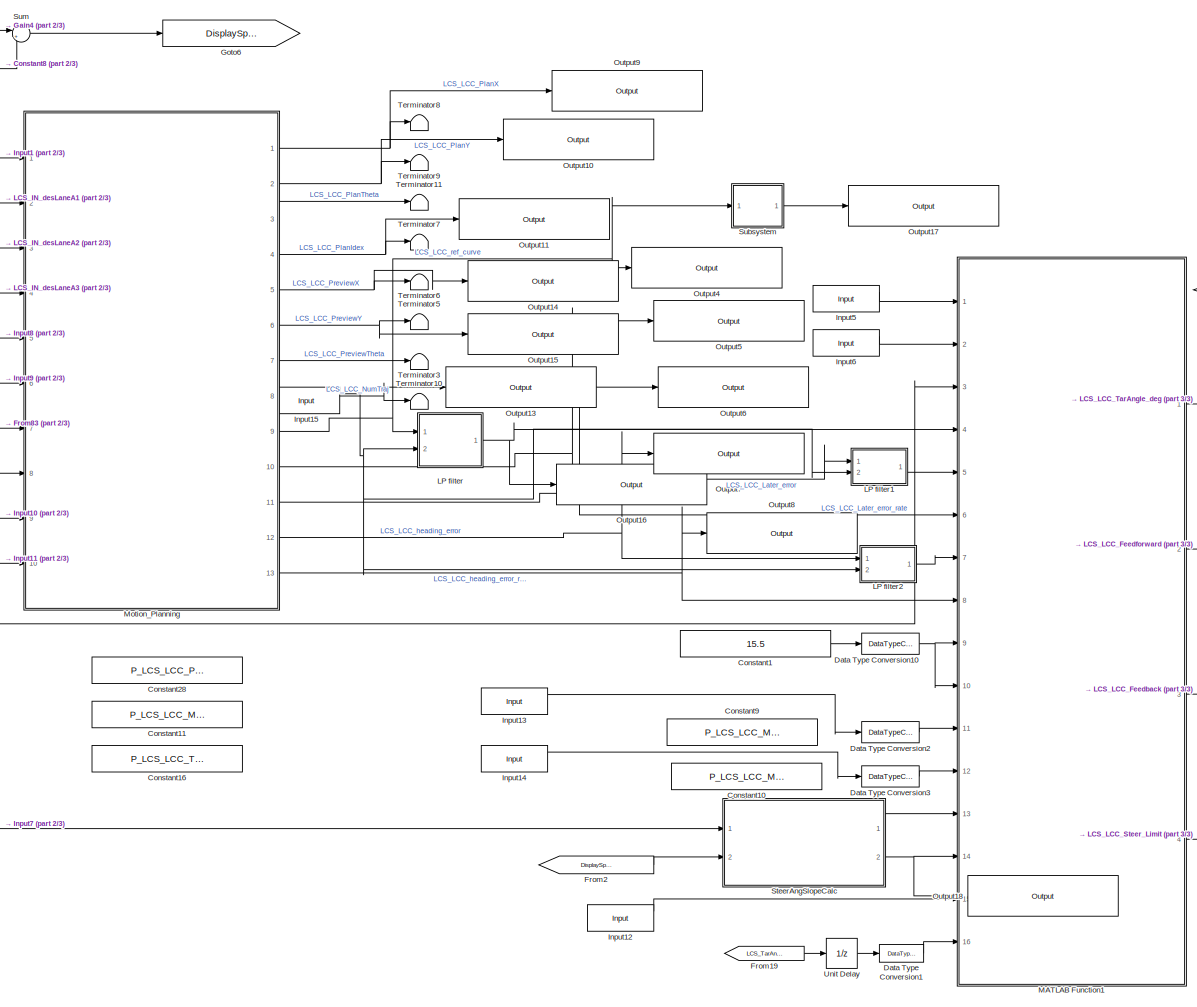
[diagram: root canvas - part 1/3, center side, full height]
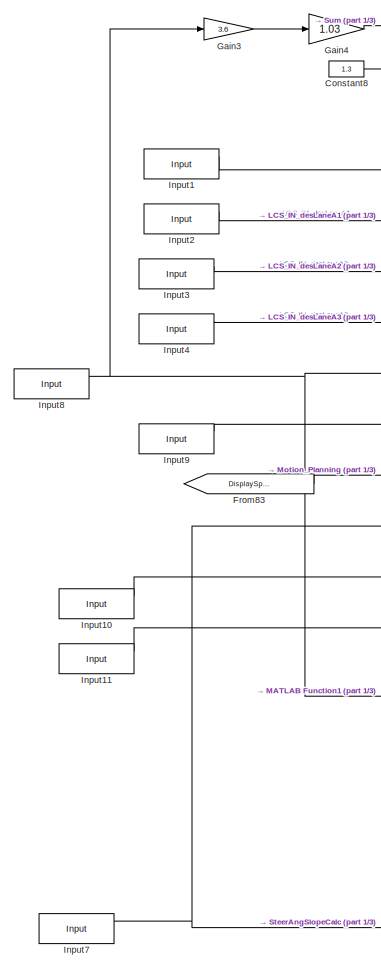
[diagram: root canvas - part 2/3, left side, full height]
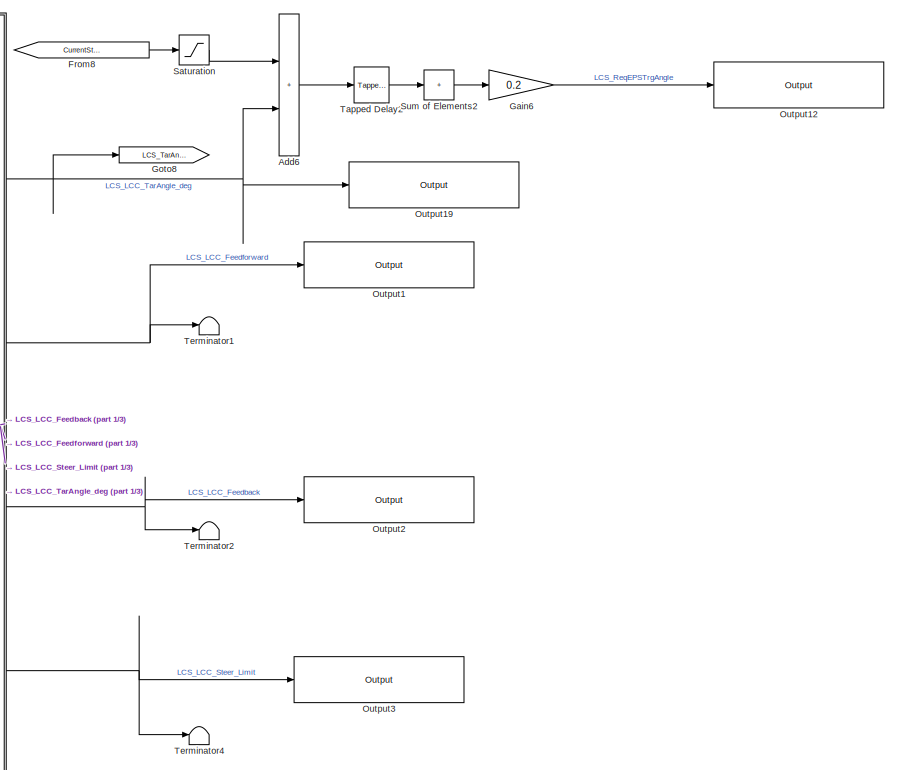
[diagram: root canvas - part 3/3, middle right region]
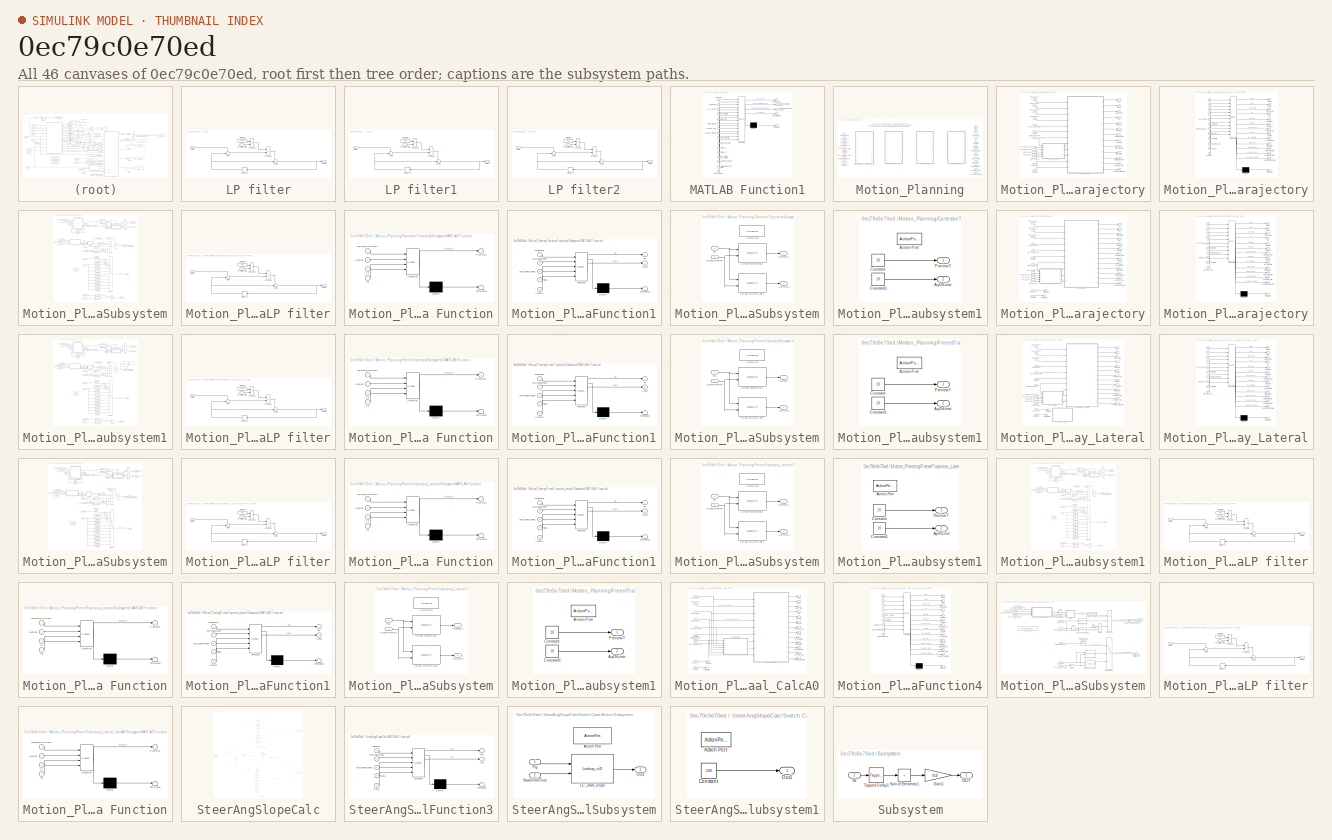
[diagram: thumbnail index - all 46 canvases of the model, root first then tree order]
MODEL slx_0ec79c0e70ed
KIND model
CONFIG AbsTol = auto
CONFIG EnableMultiTasking = off
CONFIG FixedStep = 0.01
CONFIG MaxStep = auto
CONFIG MinStep = auto
CONFIG RelTol = 1e-3
CONFIG SampleTimeConstraint = Unconstrained
CONFIG SolverName = FixedStepDiscrete
CONFIG StartTime = 0.0
CONFIG StopTime = inf
BLOCK [Sum] Add6
  AccumDataTypeStr = single
  IconShape = rectangular
  Ports = [2, 1]
BLOCK [Constant] Constant1
  OutDataTypeStr = single
  Value = 15.5
BLOCK [Constant] Constant10
  Commented = on
  OutDataTypeStr = single
  Value = P_LCS_LCC_Matrix_q2_st
BLOCK [Constant] Constant11
  Commented = on
  OutDataTypeStr = single
  Value = P_LCS_LCC_Max_Lateral_Acc_ms2
BLOCK [Constant] Constant16
  Commented = on
  OutDataTypeStr = single
  Value = P_LCS_LCC_TarSteerAngleSlope
BLOCK [Constant] Constant28
  Commented = on
  OutDataTypeStr = single
  Value = P_LCS_LCC_PreView_s
BLOCK [Constant] Constant8
  OutDataTypeStr = single
  Value = 1.3
BLOCK [Constant] Constant9
  Commented = on
  OutDataTypeStr = single
  Value = P_LCS_LCC_Matrix_q1_st
BLOCK [DataTypeConversion] Data Type Conversion1
  RndMeth = Floor
  SaturateOnIntegerOverflow = off
BLOCK [DataTypeConversion] Data Type Conversion10
  OutDataTypeStr = single
  RndMeth = Floor
  SaturateOnIntegerOverflow = off
BLOCK [DataTypeConversion] Data Type Conversion2
  OutDataTypeStr = single
  RndMeth = Floor
  SaturateOnIntegerOverflow = off
BLOCK [DataTypeConversion] Data Type Conversion3
  OutDataTypeStr = single
  RndMeth = Floor
  SaturateOnIntegerOverflow = off
BLOCK [From] From19
  GotoTag = LCS_TarAngle
BLOCK [From] From2
  GotoTag = DisplaySpd_kph
BLOCK [From] From8
  GotoTag = CurrentSteerAngleOffset
BLOCK [From] From83
  GotoTag = DisplaySpd_kph
BLOCK [Gain] Gain3
  Gain = 3.6
BLOCK [Gain] Gain4
  Gain = 1.03
BLOCK [Gain] Gain6
  Gain = 0.2
BLOCK [Goto] Goto6
  GotoTag = DisplaySpd_kph
BLOCK [Goto] Goto8
  GotoTag = LCS_TarAngle
BLOCK [Reference] Input1  REF=canapelib/CANape I//O/Input
  AttributesFormatString = %<envName>
  Ports = [0, 3]
  SourceBlock = canapelib/CANape I//O/Input
  SourceProductName = Vector CANape/vSignalyzer Target
  SourceType = Input Module
BLOCK [Reference] Input10  REF=canapelib/CANape I//O/Input
  AttributesFormatString = %<envName>
  Ports = [0, 3]
  SourceBlock = canapelib/CANape I//O/Input
  SourceProductName = Vector CANape/vSignalyzer Target
  SourceType = Input Module
BLOCK [Reference] Input11  REF=canapelib/CANape I//O/Input
  AttributesFormatString = %<envName>
  Ports = [0, 3]
  SourceBlock = canapelib/CANape I//O/Input
  SourceProductName = Vector CANape/vSignalyzer Target
  SourceType = Input Module
BLOCK [Reference] Input12  REF=canapelib/CANape I//O/Input
  AttributesFormatString = %<envName>
  Ports = [0, 3]
  SourceBlock = canapelib/CANape I//O/Input
  SourceProductName = Vector CANape/vSignalyzer Target
  SourceType = Input Module
BLOCK [Reference] Input13  REF=canapelib/CANape I//O/Input
  AttributesFormatString = %<envName>
  Ports = [0, 3]
  SourceBlock = canapelib/CANape I//O/Input
  SourceProductName = Vector CANape/vSignalyzer Target
  SourceType = Input Module
BLOCK [Reference] Input14  REF=canapelib/CANape I//O/Input
  AttributesFormatString = %<envName>
  Ports = [0, 3]
  SourceBlock = canapelib/CANape I//O/Input
  SourceProductName = Vector CANape/vSignalyzer Target
  SourceType = Input Module
BLOCK [Reference] Input15  REF=canapelib/CANape I//O/Input
  AttributesFormatString = %<envName>
  Ports = [0, 3]
  SourceBlock = canapelib/CANape I//O/Input
  SourceProductName = Vector CANape/vSignalyzer Target
  SourceType = Input Module
BLOCK [Reference] Input2  REF=canapelib/CANape I//O/Input
  AttributesFormatString = %<envName>
  Ports = [0, 3]
  SourceBlock = canapelib/CANape I//O/Input
  SourceProductName = Vector CANape/vSignalyzer Target
  SourceType = Input Module
BLOCK [Reference] Input3  REF=canapelib/CANape I//O/Input
  AttributesFormatString = %<envName>
  Ports = [0, 3]
  SourceBlock = canapelib/CANape I//O/Input
  SourceProductName = Vector CANape/vSignalyzer Target
  SourceType = Input Module
BLOCK [Reference] Input4  REF=canapelib/CANape I//O/Input
  AttributesFormatString = %<envName>
  Ports = [0, 3]
  SourceBlock = canapelib/CANape I//O/Input
  SourceProductName = Vector CANape/vSignalyzer Target
  SourceType = Input Module
BLOCK [Reference] Input5  REF=canapelib/CANape I//O/Input
  AttributesFormatString = %<envName>
  Ports = [0, 3]
  SourceBlock = canapelib/CANape I//O/Input
  SourceProductName = Vector CANape/vSignalyzer Target
  SourceType = Input Module
BLOCK [Reference] Input6  REF=canapelib/CANape I//O/Input
  AttributesFormatString = %<envName>
  Ports = [0, 3]
  SourceBlock = canapelib/CANape I//O/Input
  SourceProductName = Vector CANape/vSignalyzer Target
  SourceType = Input Module
BLOCK [Reference] Input7  REF=canapelib/CANape I//O/Input
  AttributesFormatString = %<envName>
  Ports = [0, 3]
  SourceBlock = canapelib/CANape I//O/Input
  SourceProductName = Vector CANape/vSignalyzer Target
  SourceType = Input Module
BLOCK [Reference] Input8  REF=canapelib/CANape I//O/Input
  AttributesFormatString = %<envName>
  Ports = [0, 3]
  SourceBlock = canapelib/CANape I//O/Input
  SourceProductName = Vector CANape/vSignalyzer Target
  SourceType = Input Module
BLOCK [Reference] Input9  REF=canapelib/CANape I//O/Input
  AttributesFormatString = %<envName>
  Ports = [0, 3]
  SourceBlock = canapelib/CANape I//O/Input
  SourceProductName = Vector CANape/vSignalyzer Target
  SourceType = Input Module
BLOCK [SubSystem] LP filter
  Ports = [2, 1]
  RequestExecContextInheritance = off
BLOCK [Memory] LP filter/Memory2
  InheritSampleTime = on
  NameLocation = top
BLOCK [Product] LP filter/Product1
  Ports = [2, 1]
  RndMeth = Zero
BLOCK [Product] LP filter/Product4
  Inputs = */
  Ports = [2, 1]
  RndMeth = Zero
BLOCK [Inport] LP filter/Raw
BLOCK [Sum] LP filter/Sum4
  Inputs = +-|
  Ports = [2, 1]
BLOCK [Sum] LP filter/Sum5
  Inputs = ++|
  Ports = [2, 1]
BLOCK [Inport] LP filter/TorqFilterTime
  Port = 2
BLOCK [Constant] LP filter/Weight//N3
  OutDataTypeStr = single
  Value = 0.02
BLOCK [Outport] LP filter/output
BLOCK [SubSystem] LP filter1
  Ports = [2, 1]
  RequestExecContextInheritance = off
BLOCK [Memory] LP filter1/Memory2
  InheritSampleTime = on
  NameLocation = top
BLOCK [Product] LP filter1/Product1
  Ports = [2, 1]
  RndMeth = Zero
BLOCK [Product] LP filter1/Product4
  Inputs = */
  Ports = [2, 1]
  RndMeth = Zero
BLOCK [Inport] LP filter1/Raw
BLOCK [Sum] LP filter1/Sum4
  Inputs = +-|
  Ports = [2, 1]
BLOCK [Sum] LP filter1/Sum5
  Inputs = ++|
  Ports = [2, 1]
BLOCK [Inport] LP filter1/TorqFilterTime
  Port = 2
BLOCK [Constant] LP filter1/Weight//N3
  OutDataTypeStr = single
  Value = 0.02
BLOCK [Outport] LP filter1/output
BLOCK [SubSystem] LP filter2
  Ports = [2, 1]
  RequestExecContextInheritance = off
BLOCK [Memory] LP filter2/Memory2
  InheritSampleTime = on
  NameLocation = top
BLOCK [Product] LP filter2/Product1
  Ports = [2, 1]
  RndMeth = Zero
BLOCK [Product] LP filter2/Product4
  Inputs = */
  Ports = [2, 1]
  RndMeth = Zero
BLOCK [Inport] LP filter2/Raw
BLOCK [Sum] LP filter2/Sum4
  Inputs = +-|
  Ports = [2, 1]
BLOCK [Sum] LP filter2/Sum5
  Inputs = ++|
  Ports = [2, 1]
BLOCK [Inport] LP filter2/TorqFilterTime
  Port = 2
BLOCK [Constant] LP filter2/Weight//N3
  OutDataTypeStr = single
  Value = 0.02
BLOCK [Outport] LP filter2/output
BLOCK [SubSystem] MATLAB Function1
  ErrorFcn = Stateflow.Translate.translate
  PermitHierarchicalResolution = ExplicitOnly
  Ports = [16, 4]
  RequestExecContextInheritance = off
  SFBlockType = MATLAB Function
  TreatAsAtomicUnit = on
BLOCK [Demux] MATLAB Function1/ Demux 
  Outputs = 1
  Ports = [1, 1]
BLOCK [S-Function] MATLAB Function1/ SFunction 
  EnableBusSupport = on
  FunctionName = sf_sfun
  PortCounts = [16 5]
  Ports = [16, 5]
  SFcnIsStateOwnerBlock = off
  SFunctionDeploymentMode = off
  Tag = Stateflow S-Function 10
BLOCK [Terminator] MATLAB Function1/ Terminator 
BLOCK [Inport] MATLAB Function1/CurrentSteerAngleOffset
  Port = 15
BLOCK [Inport] MATLAB Function1/Left_steer_ratio
  Port = 9
BLOCK [Inport] MATLAB Function1/LineValid
BLOCK [Inport] MATLAB Function1/Matrix_q1
  Port = 11
BLOCK [Inport] MATLAB Function1/Matrix_q3
  Port = 12
BLOCK [Inport] MATLAB Function1/Max_lateral_acceleration
  Port = 13
BLOCK [Inport] MATLAB Function1/Right_steer_ratio
  Port = 10
BLOCK [Inport] MATLAB Function1/SteerAngle
  Port = 2
BLOCK [Inport] MATLAB Function1/TarSteerAngleSlope
  Port = 14
BLOCK [Inport] MATLAB Function1/Veh_Speed
  Port = 3
BLOCK [Inport] MATLAB Function1/heading_error
  Port = 7
BLOCK [Inport] MATLAB Function1/heading_error_rate
  Port = 8
BLOCK [Inport] MATLAB Function1/lateral_error
  Port = 5
BLOCK [Inport] MATLAB Function1/lateral_error_rate
  Port = 6
BLOCK [Inport] MATLAB Function1/ref_curvature
  Port = 4
BLOCK [Outport] MATLAB Function1/steer_angle
BLOCK [Inport] MATLAB Function1/steer_angleK1
  Port = 16
BLOCK [Outport] MATLAB Function1/steer_feedbackward_temp
  Port = 3
BLOCK [Outport] MATLAB Function1/steer_feedforward_temp
  Port = 2
BLOCK [Outport] MATLAB Function1/steer_limit_temp
  Port = 4
BLOCK [SubSystem] Motion_Planning
  LabelModeActiveChoice = Choice_3
  Ports = [10, 13]
  RequestExecContextInheritance = off
  Variant = on
  VariantControlMode = label
BLOCK [SubSystem] Motion_Planning/CartesianTrajectory
  Ports = [10, 13]
  RequestExecContextInheritance = off
  VariantControl = Choice_4
BLOCK [SubSystem] Motion_Planning/CartesianTrajectory/FrenetTrajectory
  ErrorFcn = Stateflow.Translate.translate
  PermitHierarchicalResolution = ExplicitOnly
  Ports = [12, 13]
  RequestExecContextInheritance = off
  SFBlockType = MATLAB Function
  TreatAsAtomicUnit = on
BLOCK [Demux] Motion_Planning/CartesianTrajectory/FrenetTrajectory/ Demux 
  Outputs = 1
  Ports = [1, 1]
BLOCK [S-Function] Motion_Planning/CartesianTrajectory/FrenetTrajectory/ SFunction 
  EnableBusSupport = on
  FunctionName = sf_sfun
  PortCounts = [12 14]
  Ports = [12, 14]
  SFcnIsStateOwnerBlock = off
  SFunctionDeploymentMode = off
  Tag = Stateflow S-Function 13
BLOCK [Terminator] Motion_Planning/CartesianTrajectory/FrenetTrajectory/ Terminator 
BLOCK [Inport] Motion_Planning/CartesianTrajectory/FrenetTrajectory/A0
BLOCK [Inport] Motion_Planning/CartesianTrajectory/FrenetTrajectory/A1
  Port = 2
BLOCK [Inport] Motion_Planning/CartesianTrajectory/FrenetTrajectory/A2
  Port = 3
BLOCK [Inport] Motion_Planning/CartesianTrajectory/FrenetTrajectory/A3
  Port = 4
BLOCK [Inport] Motion_Planning/CartesianTrajectory/FrenetTrajectory/AyDtLimit
  Port = 9
BLOCK [Inport] Motion_Planning/CartesianTrajectory/FrenetTrajectory/Min_Plan_Dis
  Port = 10
BLOCK [Outport] Motion_Planning/CartesianTrajectory/FrenetTrajectory/PlanTheta
  Port = 3
BLOCK [Outport] Motion_Planning/CartesianTrajectory/FrenetTrajectory/PlanX
BLOCK [Outport] Motion_Planning/CartesianTrajectory/FrenetTrajectory/PlanY
  Port = 2
BLOCK [Inport] Motion_Planning/CartesianTrajectory/FrenetTrajectory/PreView_T
  Port = 8
BLOCK [Outport] Motion_Planning/CartesianTrajectory/FrenetTrajectory/PreviewTheta
  Port = 7
BLOCK [Outport] Motion_Planning/CartesianTrajectory/FrenetTrajectory/PreviewX
  Port = 5
BLOCK [Outport] Motion_Planning/CartesianTrajectory/FrenetTrajectory/PreviewY
  Port = 6
BLOCK [Inport] Motion_Planning/CartesianTrajectory/FrenetTrajectory/TarDangerlLevel
  Port = 7
BLOCK [Inport] Motion_Planning/CartesianTrajectory/FrenetTrajectory/Veh_Speed
  Port = 5
BLOCK [Inport] Motion_Planning/CartesianTrajectory/FrenetTrajectory/YawRate
  Port = 6
BLOCK [Inport] Motion_Planning/CartesianTrajectory/FrenetTrajectory/axEgo
  Port = 11
BLOCK [Outport] Motion_Planning/CartesianTrajectory/FrenetTrajectory/heading_error
  Port = 12
BLOCK [Outport] Motion_Planning/CartesianTrajectory/FrenetTrajectory/heading_error_rate
  Port = 13
BLOCK [Outport] Motion_Planning/CartesianTrajectory/FrenetTrajectory/idx
  Port = 4
BLOCK [Inport] Motion_Planning/CartesianTrajectory/FrenetTrajectory/kapEgo
  Port = 12
BLOCK [Outport] Motion_Planning/CartesianTrajectory/FrenetTrajectory/lateral_error
  Port = 10
BLOCK [Outport] Motion_Planning/CartesianTrajectory/FrenetTrajectory/lateral_error_rate
  Port = 11
BLOCK [Outport] Motion_Planning/CartesianTrajectory/FrenetTrajectory/numTraj
  Port = 8
BLOCK [Outport] Motion_Planning/CartesianTrajectory/FrenetTrajectory/ref_curvature
  Port = 9
BLOCK [Inport] Motion_Planning/CartesianTrajectory/Long_Acc
  Port = 9
BLOCK [Outport] Motion_Planning/CartesianTrajectory/PlanTheta
  Port = 3
BLOCK [Outport] Motion_Planning/CartesianTrajectory/PlanX
BLOCK [Outport] Motion_Planning/CartesianTrajectory/PlanY
  Port = 2
BLOCK [Outport] Motion_Planning/CartesianTrajectory/PreviewTheta
  Port = 7
BLOCK [Outport] Motion_Planning/CartesianTrajectory/PreviewX
  Port = 5
BLOCK [Outport] Motion_Planning/CartesianTrajectory/PreviewY
  Port = 6
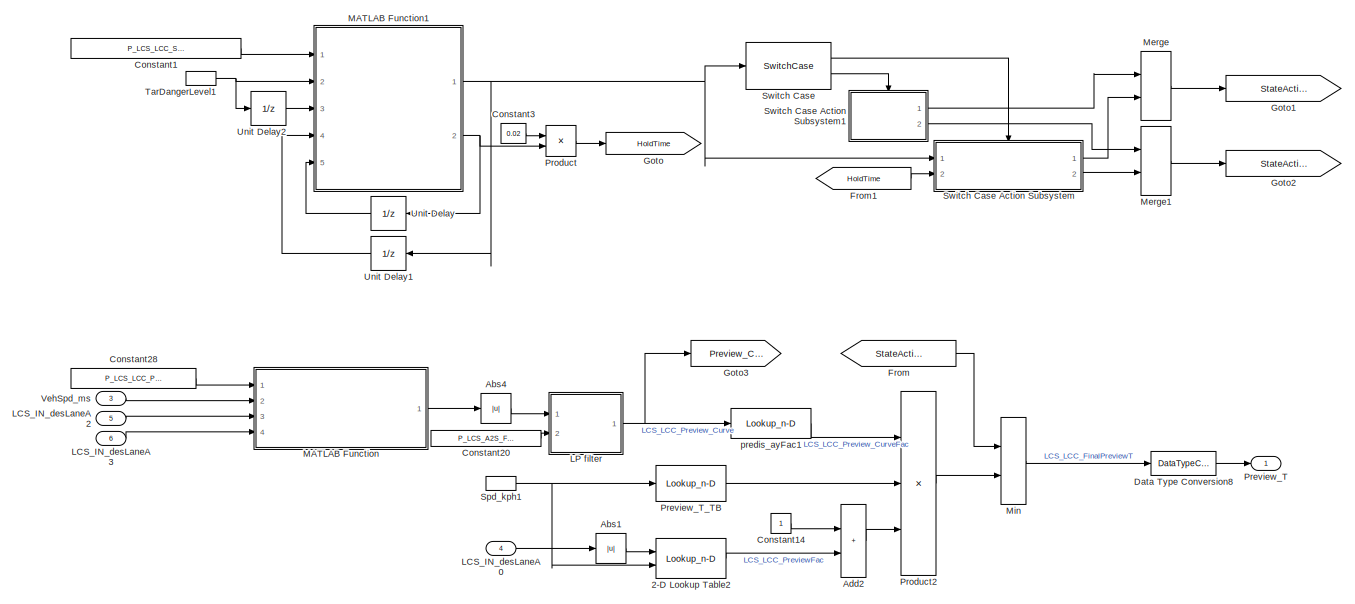
[diagram: Motion_Planning/CartesianTrajectory/Subsystem - part 1/2, full width, top band]
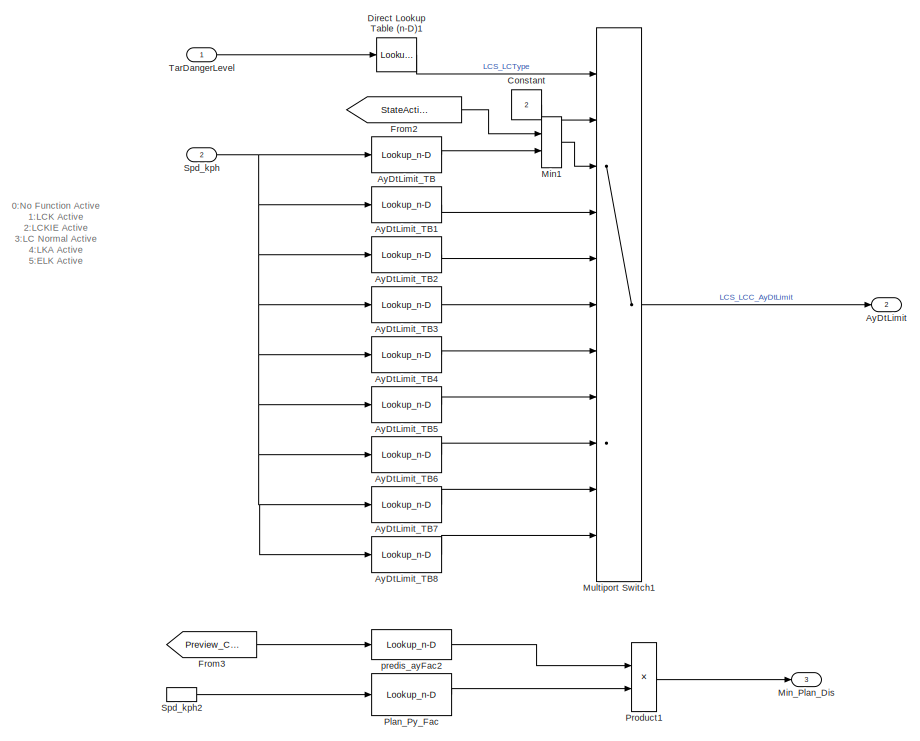
[diagram: Motion_Planning/CartesianTrajectory/Subsystem - part 2/2, bottom center region]
BLOCK [SubSystem] Motion_Planning/CartesianTrajectory/Subsystem
  Ports = [6, 3]
  RequestExecContextInheritance = off
BLOCK [Lookup_n-D] Motion_Planning/CartesianTrajectory/Subsystem/2-D Lookup Table2
  BreakpointsForDimension1 = P_LCS_A0_Dis_BP
  BreakpointsForDimension2 = P_LCS_preDis_spd
  ExtrapMethod = Clip
  InputPortMap = u0,u1
  InternalRulePriority = Speed
  Ports = [2, 1]
  RndMeth = Simplest
  Table = P_LCS_LCC_PreView_Fac
  UseLastTableValue = on
BLOCK [Abs] Motion_Planning/CartesianTrajectory/Subsystem/Abs1
  SaturateOnIntegerOverflow = off
BLOCK [Abs] Motion_Planning/CartesianTrajectory/Subsystem/Abs4
  SaturateOnIntegerOverflow = off
BLOCK [Sum] Motion_Planning/CartesianTrajectory/Subsystem/Add2
  IconShape = rectangular
  Ports = [2, 1]
BLOCK [Outport] Motion_Planning/CartesianTrajectory/Subsystem/AyDtLimit
  OutDataTypeStr = single
  Port = 2
BLOCK [Lookup_n-D] Motion_Planning/CartesianTrajectory/Subsystem/AyDtLimit_TB
  BreakpointsForDimension1 = P_LCS_preDis_spd
  ExtrapMethod = Clip
  InputPortMap = u0
  InternalRulePriority = Speed
  NumberOfTableDimensions = 1
  Ports = [1, 1]
  RndMeth = Simplest
  Table = P_LCS_LCC_LCK_AyDtLimit_TBL
  UseLastTableValue = on
BLOCK [Lookup_n-D] Motion_Planning/CartesianTrajectory/Subsystem/AyDtLimit_TB1
  BreakpointsForDimension1 = P_LCS_preDis_spd
  ExtrapMethod = Clip
  InputPortMap = u0
  InternalRulePriority = Speed
  NumberOfTableDimensions = 1
  Ports = [1, 1]
  RndMeth = Simplest
  Table = P_LCS_LCC_LCK_AyDtLimit_TBL
  UseLastTableValue = on
BLOCK [Lookup_n-D] Motion_Planning/CartesianTrajectory/Subsystem/AyDtLimit_TB2
  BreakpointsForDimension1 = P_LCS_preDis_spd
  ExtrapMethod = Clip
  InputPortMap = u0
  InternalRulePriority = Speed
  NumberOfTableDimensions = 1
  Ports = [1, 1]
  RndMeth = Simplest
  Table = P_LCS_LCC_LC_Normal_AyDtLimit_TBL
  UseLastTableValue = on
BLOCK [Lookup_n-D] Motion_Planning/CartesianTrajectory/Subsystem/AyDtLimit_TB3
  BreakpointsForDimension1 = P_LCS_preDis_spd
  ExtrapMethod = Clip
  InputPortMap = u0
  InternalRulePriority = Speed
  NumberOfTableDimensions = 1
  Ports = [1, 1]
  RndMeth = Simplest
  Table = P_LCS_LCC_LKA_AyDtLimit_TBL
  UseLastTableValue = on
BLOCK [Lookup_n-D] Motion_Planning/CartesianTrajectory/Subsystem/AyDtLimit_TB4
  BreakpointsForDimension1 = P_LCS_preDis_spd
  ExtrapMethod = Clip
  InputPortMap = u0
  InternalRulePriority = Speed
  NumberOfTableDimensions = 1
  Ports = [1, 1]
  RndMeth = Simplest
  Table = P_LCS_LCC_ELK_AyDtLimit_TBL
  UseLastTableValue = on
BLOCK [Lookup_n-D] Motion_Planning/CartesianTrajectory/Subsystem/AyDtLimit_TB5
  BreakpointsForDimension1 = P_LCS_preDis_spd
  ExtrapMethod = Clip
  InputPortMap = u0
  InternalRulePriority = Speed
  NumberOfTableDimensions = 1
  Ports = [1, 1]
  RndMeth = Simplest
  Table = P_LCS_LCC_ESS_AyDtLimit_TBL
  UseLastTableValue = on
BLOCK [Lookup_n-D] Motion_Planning/CartesianTrajectory/Subsystem/AyDtLimit_TB6
  BreakpointsForDimension1 = P_LCS_preDis_spd
  ExtrapMethod = Clip
  InputPortMap = u0
  InternalRulePriority = Speed
  NumberOfTableDimensions = 1
  Ports = [1, 1]
  RndMeth = Simplest
  Table = P_LCS_LCC_Eco_AyDtLimit_TBL
  UseLastTableValue = on
BLOCK [Lookup_n-D] Motion_Planning/CartesianTrajectory/Subsystem/AyDtLimit_TB7
  BreakpointsForDimension1 = P_LCS_preDis_spd
  ExtrapMethod = Clip
  InputPortMap = u0
  InternalRulePriority = Speed
  NumberOfTableDimensions = 1
  Ports = [1, 1]
  RndMeth = Simplest
  Table = P_LCS_LCC_Sport_AyDtLimit_TBL
  UseLastTableValue = on
BLOCK [Lookup_n-D] Motion_Planning/CartesianTrajectory/Subsystem/AyDtLimit_TB8
  BreakpointsForDimension1 = P_LCS_preDis_spd
  ExtrapMethod = Clip
  InputPortMap = u0
  InternalRulePriority = Speed
  NumberOfTableDimensions = 1
  Ports = [1, 1]
  RndMeth = Simplest
  Table = P_LCS_LCC_LC_AyDtLimit_TBL
  UseLastTableValue = on
BLOCK [Constant] Motion_Planning/CartesianTrajectory/Subsystem/Constant
  OutDataTypeStr = single
  Value = 2
BLOCK [Constant] Motion_Planning/CartesianTrajectory/Subsystem/Constant1
  OutDataTypeStr = uint16
  Value = P_LCS_LCC_StateActiveDelaytime
BLOCK [Constant] Motion_Planning/CartesianTrajectory/Subsystem/Constant14
  OutDataTypeStr = single
BLOCK [Constant] Motion_Planning/CartesianTrajectory/Subsystem/Constant20
  Value = P_LCS_A2S_FliterTime
BLOCK [Constant] Motion_Planning/CartesianTrajectory/Subsystem/Constant28
  OutDataTypeStr = single
  Value = P_LCS_LCC_PreView_s
BLOCK [Constant] Motion_Planning/CartesianTrajectory/Subsystem/Constant3
  Value = 0.02
BLOCK [DataTypeConversion] Motion_Planning/CartesianTrajectory/Subsystem/Data Type Conversion8
  OutDataTypeStr = single
  RndMeth = Floor
  SaturateOnIntegerOverflow = off
BLOCK [LookupNDDirect] Motion_Planning/CartesianTrajectory/Subsystem/Direct Lookup Table (n-D)1
  NumberOfTableDimensions = 1
  Ports = [1, 1]
  Table = [0 1 2 3 4 5 6 7 8 9]
  TableDataTypeStr = uint8
BLOCK [From] Motion_Planning/CartesianTrajectory/Subsystem/From
  GotoTag = StateActive_PreviewT
BLOCK [From] Motion_Planning/CartesianTrajectory/Subsystem/From1
  GotoTag = HoldTime
BLOCK [From] Motion_Planning/CartesianTrajectory/Subsystem/From2
  GotoTag = StateActive_AyDtLimit
BLOCK [From] Motion_Planning/CartesianTrajectory/Subsystem/From3
  GotoTag = Preview_Curve
BLOCK [Goto] Motion_Planning/CartesianTrajectory/Subsystem/Goto
  GotoTag = HoldTime
BLOCK [Goto] Motion_Planning/CartesianTrajectory/Subsystem/Goto1
  GotoTag = StateActive_PreviewT
BLOCK [Goto] Motion_Planning/CartesianTrajectory/Subsystem/Goto2
  GotoTag = StateActive_AyDtLimit
BLOCK [Goto] Motion_Planning/CartesianTrajectory/Subsystem/Goto3
  GotoTag = Preview_Curve
BLOCK [Inport] Motion_Planning/CartesianTrajectory/Subsystem/LCS_IN_desLaneA0
  Port = 4
BLOCK [Inport] Motion_Planning/CartesianTrajectory/Subsystem/LCS_IN_desLaneA2
  Port = 5
BLOCK [Inport] Motion_Planning/CartesianTrajectory/Subsystem/LCS_IN_desLaneA3
  Port = 6
BLOCK [SubSystem] Motion_Planning/CartesianTrajectory/Subsystem/LP filter
  Ports = [2, 1]
  RequestExecContextInheritance = off
BLOCK [Memory] Motion_Planning/CartesianTrajectory/Subsystem/LP filter/Memory2
  InheritSampleTime = on
  NameLocation = top
BLOCK [Product] Motion_Planning/CartesianTrajectory/Subsystem/LP filter/Product1
  Ports = [2, 1]
  RndMeth = Zero
BLOCK [Product] Motion_Planning/CartesianTrajectory/Subsystem/LP filter/Product4
  Inputs = */
  Ports = [2, 1]
  RndMeth = Zero
BLOCK [Inport] Motion_Planning/CartesianTrajectory/Subsystem/LP filter/Raw
BLOCK [Sum] Motion_Planning/CartesianTrajectory/Subsystem/LP filter/Sum4
  Inputs = +-|
  Ports = [2, 1]
BLOCK [Sum] Motion_Planning/CartesianTrajectory/Subsystem/LP filter/Sum5
  Inputs = ++|
  Ports = [2, 1]
BLOCK [Inport] Motion_Planning/CartesianTrajectory/Subsystem/LP filter/TorqFilterTime
  Port = 2
BLOCK [Constant] Motion_Planning/CartesianTrajectory/Subsystem/LP filter/Weight//N3
  OutDataTypeStr = single
  Value = 0.02
BLOCK [Outport] Motion_Planning/CartesianTrajectory/Subsystem/LP filter/output
BLOCK [SubSystem] Motion_Planning/CartesianTrajectory/Subsystem/MATLAB Function
  ErrorFcn = Stateflow.Translate.translate
  PermitHierarchicalResolution = ExplicitOnly
  Ports = [4, 1]
  RequestExecContextInheritance = off
  SFBlockType = MATLAB Function
  TreatAsAtomicUnit = on
BLOCK [Demux] Motion_Planning/CartesianTrajectory/Subsystem/MATLAB Function/ Demux 
  Outputs = 1
  Ports = [1, 1]
BLOCK [S-Function] Motion_Planning/CartesianTrajectory/Subsystem/MATLAB Function/ SFunction 
  EnableBusSupport = on
  FunctionName = sf_sfun
  PortCounts = [4 2]
  Ports = [4, 2]
  SFcnIsStateOwnerBlock = off
  SFunctionDeploymentMode = off
  Tag = Stateflow S-Function 15
BLOCK [Terminator] Motion_Planning/CartesianTrajectory/Subsystem/MATLAB Function/ Terminator 
BLOCK [Inport] Motion_Planning/CartesianTrajectory/Subsystem/MATLAB Function/C2
  Port = 3
BLOCK [Inport] Motion_Planning/CartesianTrajectory/Subsystem/MATLAB Function/C3
  Port = 4
BLOCK [Inport] Motion_Planning/CartesianTrajectory/Subsystem/MATLAB Function/Forward_PreViewT
BLOCK [Outport] Motion_Planning/CartesianTrajectory/Subsystem/MATLAB Function/PreCurve
BLOCK [Inport] Motion_Planning/CartesianTrajectory/Subsystem/MATLAB Function/VehSpd
  Port = 2
BLOCK [SubSystem] Motion_Planning/CartesianTrajectory/Subsystem/MATLAB Function1
  ErrorFcn = Stateflow.Translate.translate
  PermitHierarchicalResolution = ExplicitOnly
  Ports = [5, 2]
  RequestExecContextInheritance = off
  SFBlockType = MATLAB Function
  TreatAsAtomicUnit = on
BLOCK [Demux] Motion_Planning/CartesianTrajectory/Subsystem/MATLAB Function1/ Demux 
  Outputs = 1
  Ports = [1, 1]
BLOCK [S-Function] Motion_Planning/CartesianTrajectory/Subsystem/MATLAB Function1/ SFunction 
  EnableBusSupport = on
  FunctionName = sf_sfun
  PortCounts = [5 3]
  Ports = [5, 3]
  SFcnIsStateOwnerBlock = off
  SFunctionDeploymentMode = off
  Tag = Stateflow S-Function 16
BLOCK [Terminator] Motion_Planning/CartesianTrajectory/Subsystem/MATLAB Function1/ Terminator 
BLOCK [Outport] Motion_Planning/CartesianTrajectory/Subsystem/MATLAB Function1/Count
  Port = 2
BLOCK [Inport] Motion_Planning/CartesianTrajectory/Subsystem/MATLAB Function1/CountK1
  Port = 5
BLOCK [Inport] Motion_Planning/CartesianTrajectory/Subsystem/MATLAB Function1/Delaytime
BLOCK [Outport] Motion_Planning/CartesianTrajectory/Subsystem/MATLAB Function1/Flg
BLOCK [Inport] Motion_Planning/CartesianTrajectory/Subsystem/MATLAB Function1/FlgK1
  Port = 4
BLOCK [Inport] Motion_Planning/CartesianTrajectory/Subsystem/MATLAB Function1/TarDangerLevel
  Port = 2
BLOCK [Inport] Motion_Planning/CartesianTrajectory/Subsystem/MATLAB Function1/TarDangerLevelK1
  Port = 3
BLOCK [Merge] Motion_Planning/CartesianTrajectory/Subsystem/Merge
  Ports = [2, 1]
BLOCK [Merge] Motion_Planning/CartesianTrajectory/Subsystem/Merge1
  Ports = [2, 1]
BLOCK [MinMax] Motion_Planning/CartesianTrajectory/Subsystem/Min
  Inputs = 2
  Ports = [2, 1]
BLOCK [MinMax] Motion_Planning/CartesianTrajectory/Subsystem/Min1
  Inputs = 2
  Ports = [2, 1]
BLOCK [Outport] Motion_Planning/CartesianTrajectory/Subsystem/Min_Plan_Dis
  OutDataTypeStr = single
  Port = 3
BLOCK [MultiPortSwitch] Motion_Planning/CartesianTrajectory/Subsystem/Multiport Switch1
  DataPortOrder = Zero-based contiguous
  InputSameDT = off
  Inputs = 10
  Ports = [11, 1]
  SaturateOnIntegerOverflow = off
  zeroidx = on
BLOCK [Lookup_n-D] Motion_Planning/CartesianTrajectory/Subsystem/Plan_Py_Fac
  BreakpointsForDimension1 = P_LCS_DeltaEps_SpdBp
  ExtrapMethod = Clip
  InputPortMap = u0
  InternalRulePriority = Speed
  NumberOfTableDimensions = 1
  Ports = [1, 1]
  RndMeth = Simplest
  Table = P_LCS_LCC_Min_Plan_Dis
  UseLastTableValue = on
BLOCK [Outport] Motion_Planning/CartesianTrajectory/Subsystem/Preview_T
  OutDataTypeStr = single
BLOCK [Lookup_n-D] Motion_Planning/CartesianTrajectory/Subsystem/Preview_T_TB
  BreakpointsForDimension1 = P_LCS_preDis_spd
  ExtrapMethod = Clip
  InputPortMap = u0
  InternalRulePriority = Speed
  NumberOfTableDimensions = 1
  Ports = [1, 1]
  RndMeth = Simplest
  Table = P_LCS_LCC_PreViewT
  UseLastTableValue = on
BLOCK [Product] Motion_Planning/CartesianTrajectory/Subsystem/Product
  Ports = [2, 1]
BLOCK [Product] Motion_Planning/CartesianTrajectory/Subsystem/Product1
  Ports = [2, 1]
BLOCK [Product] Motion_Planning/CartesianTrajectory/Subsystem/Product2
  Inputs = 3
  Ports = [3, 1]
BLOCK [Inport] Motion_Planning/CartesianTrajectory/Subsystem/Spd_kph
  Port = 2
BLOCK [InportShadow] Motion_Planning/CartesianTrajectory/Subsystem/Spd_kph1
  Port = 2
BLOCK [InportShadow] Motion_Planning/CartesianTrajectory/Subsystem/Spd_kph2
  Port = 2
BLOCK [SwitchCase] Motion_Planning/CartesianTrajectory/Subsystem/Switch Case
  CaseConditions = {[1]}
  Ports = [1, 2]
BLOCK [SubSystem] Motion_Planning/CartesianTrajectory/Subsystem/Switch Case Action Subsystem
  Ports = [2, 2, 0, 0, 0, 0, 0, 1]
  RequestExecContextInheritance = off
  TreatAsAtomicUnit = on
BLOCK [ActionPort] Motion_Planning/CartesianTrajectory/Subsystem/Switch Case Action Subsystem/Action Port
  ActionPortLabel = case [ 1 ]:
BLOCK [Lookup_n-D] Motion_Planning/CartesianTrajectory/Subsystem/Switch Case Action Subsystem/ActiveAyDtLimit_TBL
  BreakpointsForDimension1 = P_LCS_StateActiveFlg_BP
  BreakpointsForDimension2 = P_LCS_StateActive_HoldTime_BP
  ExtrapMethod = Clip
  InputPortMap = u0,u1
  InputSameDT = off
  InternalRulePriority = Speed
  OutDataTypeStr = single
  Ports = [2, 1]
  RndMeth = Simplest
  Table = P_LCS_LCC_StateActiv_AyDtLimit
  UseLastTableValue = on
BLOCK [Lookup_n-D] Motion_Planning/CartesianTrajectory/Subsystem/Switch Case Action Subsystem/ActivePreviewT_TBL
  BreakpointsForDimension1 = P_LCS_StateActiveFlg_BP
  BreakpointsForDimension2 = P_LCS_StateActive_HoldTime_BP
  ExtrapMethod = Clip
  InputPortMap = u0,u1
  InputSameDT = off
  InternalRulePriority = Speed
  OutDataTypeStr = single
  Ports = [2, 1]
  RndMeth = Simplest
  Table = P_LCS_LCC_StateActiv_PreviewT
  UseLastTableValue = on
BLOCK [Outport] Motion_Planning/CartesianTrajectory/Subsystem/Switch Case Action Subsystem/AyDtLimit
  Port = 2
BLOCK [Inport] Motion_Planning/CartesianTrajectory/Subsystem/Switch Case Action Subsystem/Flg
BLOCK [Outport] Motion_Planning/CartesianTrajectory/Subsystem/Switch Case Action Subsystem/PreviewT
BLOCK [Inport] Motion_Planning/CartesianTrajectory/Subsystem/Switch Case Action Subsystem/StateHoldTime
  Port = 2
BLOCK [SubSystem] Motion_Planning/CartesianTrajectory/Subsystem/Switch Case Action Subsystem1
  Ports = [0, 2, 0, 0, 0, 0, 0, 1]
  RequestExecContextInheritance = off
  TreatAsAtomicUnit = on
BLOCK [ActionPort] Motion_Planning/CartesianTrajectory/Subsystem/Switch Case Action Subsystem1/Action Port
  ActionPortLabel = default:
BLOCK [Outport] Motion_Planning/CartesianTrajectory/Subsystem/Switch Case Action Subsystem1/AyDtLimit
  Port = 2
BLOCK [Constant] Motion_Planning/CartesianTrajectory/Subsystem/Switch Case Action Subsystem1/Constant
  OutDataTypeStr = single
  Value = 10
BLOCK [Constant] Motion_Planning/CartesianTrajectory/Subsystem/Switch Case Action Subsystem1/Constant1
  OutDataTypeStr = single
  Value = 10
BLOCK [Outport] Motion_Planning/CartesianTrajectory/Subsystem/Switch Case Action Subsystem1/PreviewT
BLOCK [Inport] Motion_Planning/CartesianTrajectory/Subsystem/TarDangerLevel
BLOCK [InportShadow] Motion_Planning/CartesianTrajectory/Subsystem/TarDangerLevel1
BLOCK [UnitDelay] Motion_Planning/CartesianTrajectory/Subsystem/Unit Delay
  HasFrameUpgradeWarning = on
  NameLocation = top
  SampleTime = -1
BLOCK [UnitDelay] Motion_Planning/CartesianTrajectory/Subsystem/Unit Delay1
  HasFrameUpgradeWarning = on
  NameLocation = top
  SampleTime = -1
BLOCK [UnitDelay] Motion_Planning/CartesianTrajectory/Subsystem/Unit Delay2
  HasFrameUpgradeWarning = on
  SampleTime = -1
BLOCK [Inport] Motion_Planning/CartesianTrajectory/Subsystem/VehSpd_ms
  Port = 3
BLOCK [Lookup_n-D] Motion_Planning/CartesianTrajectory/Subsystem/predis_ayFac1
  BreakpointsForDimension1 = P_LCS_A2_Curve_BP
  ExtrapMethod = Clip
  InputPortMap = u0
  InternalRulePriority = Speed
  NumberOfTableDimensions = 1
  Ports = [1, 1]
  RndMeth = Simplest
  Table = P_LCS_LCC_PreViewCurve_Fac
  UseLastTableValue = on
BLOCK [Lookup_n-D] Motion_Planning/CartesianTrajectory/Subsystem/predis_ayFac2
  BreakpointsForDimension1 = P_LCS_A2_Curve_BP
  ExtrapMethod = Clip
  InputPortMap = u0
  InternalRulePriority = Speed
  NumberOfTableDimensions = 1
  Ports = [1, 1]
  RndMeth = Simplest
  Table = P_LCS_LCC_PreCur_Min_Plan_Dis_Fac
  UseLastTableValue = on
BLOCK [Inport] Motion_Planning/CartesianTrajectory/TarDangerLevel
  Port = 8
BLOCK [Inport] Motion_Planning/CartesianTrajectory/Veh_Speed_kph
  Port = 7
BLOCK [Inport] Motion_Planning/CartesianTrajectory/Veh_Speed_ms
  Port = 5
BLOCK [InportShadow] Motion_Planning/CartesianTrajectory/Veh_Speed_ms1
  Port = 5
BLOCK [Inport] Motion_Planning/CartesianTrajectory/YawRate
  Port = 6
BLOCK [Inport] Motion_Planning/CartesianTrajectory/desLaneA0
BLOCK [Inport] Motion_Planning/CartesianTrajectory/desLaneA1
  Port = 2
BLOCK [Inport] Motion_Planning/CartesianTrajectory/desLaneA2
  Port = 3
BLOCK [Inport] Motion_Planning/CartesianTrajectory/desLaneA3
  Port = 4
BLOCK [InportShadow] Motion_Planning/CartesianTrajectory/desLaneA4
BLOCK [InportShadow] Motion_Planning/CartesianTrajectory/desLaneA5
  Port = 3
BLOCK [InportShadow] Motion_Planning/CartesianTrajectory/desLaneA6
  Port = 4
BLOCK [Outport] Motion_Planning/CartesianTrajectory/heading_error
  Port = 12
BLOCK [Outport] Motion_Planning/CartesianTrajectory/heading_error_rate
  Port = 13
BLOCK [Outport] Motion_Planning/CartesianTrajectory/idx
  Port = 4
BLOCK [Inport] Motion_Planning/CartesianTrajectory/kapEgo
  Port = 10
BLOCK [Outport] Motion_Planning/CartesianTrajectory/lateral_error
  Port = 10
BLOCK [Outport] Motion_Planning/CartesianTrajectory/lateral_error_rate
  Port = 11
BLOCK [Outport] Motion_Planning/CartesianTrajectory/numTraj
  Port = 8
BLOCK [Outport] Motion_Planning/CartesianTrajectory/ref_curvature
  Port = 9
BLOCK [SubSystem] Motion_Planning/FrenetTrajectory
  Ports = [10, 13]
  RequestExecContextInheritance = off
  VariantControl = Choice_3
BLOCK [SubSystem] Motion_Planning/FrenetTrajectory/FrenetTrajectory
  ErrorFcn = Stateflow.Translate.translate
  PermitHierarchicalResolution = ExplicitOnly
  Ports = [10, 13]
  RequestExecContextInheritance = off
  SFBlockType = MATLAB Function
  TreatAsAtomicUnit = on
BLOCK [Demux] Motion_Planning/FrenetTrajectory/FrenetTrajectory/ Demux 
  Outputs = 1
  Ports = [1, 1]
BLOCK [S-Function] Motion_Planning/FrenetTrajectory/FrenetTrajectory/ SFunction 
  EnableBusSupport = on
  FunctionName = sf_sfun
  PortCounts = [10 14]
  Ports = [10, 14]
  SFcnIsStateOwnerBlock = off
  SFunctionDeploymentMode = off
  Tag = Stateflow S-Function 3
BLOCK [Terminator] Motion_Planning/FrenetTrajectory/FrenetTrajectory/ Terminator 
BLOCK [Inport] Motion_Planning/FrenetTrajectory/FrenetTrajectory/A0
BLOCK [Inport] Motion_Planning/FrenetTrajectory/FrenetTrajectory/A1
  Port = 2
BLOCK [Inport] Motion_Planning/FrenetTrajectory/FrenetTrajectory/A2
  Port = 3
BLOCK [Inport] Motion_Planning/FrenetTrajectory/FrenetTrajectory/A3
  Port = 4
BLOCK [Inport] Motion_Planning/FrenetTrajectory/FrenetTrajectory/AyDtLimit
  Port = 9
BLOCK [Inport] Motion_Planning/FrenetTrajectory/FrenetTrajectory/Min_Plan_Dis
  Port = 10
BLOCK [Outport] Motion_Planning/FrenetTrajectory/FrenetTrajectory/PlanTheta
  Port = 3
BLOCK [Outport] Motion_Planning/FrenetTrajectory/FrenetTrajectory/PlanX
BLOCK [Outport] Motion_Planning/FrenetTrajectory/FrenetTrajectory/PlanY
  Port = 2
BLOCK [Inport] Motion_Planning/FrenetTrajectory/FrenetTrajectory/PreView_T
  Port = 8
BLOCK [Outport] Motion_Planning/FrenetTrajectory/FrenetTrajectory/PreviewTheta
  Port = 7
BLOCK [Outport] Motion_Planning/FrenetTrajectory/FrenetTrajectory/PreviewX
  Port = 5
BLOCK [Outport] Motion_Planning/FrenetTrajectory/FrenetTrajectory/PreviewY
  Port = 6
BLOCK [Inport] Motion_Planning/FrenetTrajectory/FrenetTrajectory/TarDangerlLevel
  Port = 7
BLOCK [Inport] Motion_Planning/FrenetTrajectory/FrenetTrajectory/Veh_Speed
  Port = 5
BLOCK [Inport] Motion_Planning/FrenetTrajectory/FrenetTrajectory/YawRate
  Port = 6
BLOCK [Outport] Motion_Planning/FrenetTrajectory/FrenetTrajectory/heading_error
  Port = 12
BLOCK [Outport] Motion_Planning/FrenetTrajectory/FrenetTrajectory/heading_error_rate
  Port = 13
BLOCK [Outport] Motion_Planning/FrenetTrajectory/FrenetTrajectory/idx
  Port = 4
BLOCK [Outport] Motion_Planning/FrenetTrajectory/FrenetTrajectory/lateral_error
  Port = 10
BLOCK [Outport] Motion_Planning/FrenetTrajectory/FrenetTrajectory/lateral_error_rate
  Port = 11
BLOCK [Outport] Motion_Planning/FrenetTrajectory/FrenetTrajectory/numTraj
  Port = 8
BLOCK [Outport] Motion_Planning/FrenetTrajectory/FrenetTrajectory/ref_curvature
  Port = 9
BLOCK [Inport] Motion_Planning/FrenetTrajectory/Long_Acc
  Port = 9
BLOCK [Outport] Motion_Planning/FrenetTrajectory/PlanTheta
  Port = 3
BLOCK [Outport] Motion_Planning/FrenetTrajectory/PlanX
BLOCK [Outport] Motion_Planning/FrenetTrajectory/PlanY
  Port = 2
BLOCK [Outport] Motion_Planning/FrenetTrajectory/PreviewTheta
  Port = 7
BLOCK [Outport] Motion_Planning/FrenetTrajectory/PreviewX
  Port = 5
BLOCK [Outport] Motion_Planning/FrenetTrajectory/PreviewY
  Port = 6
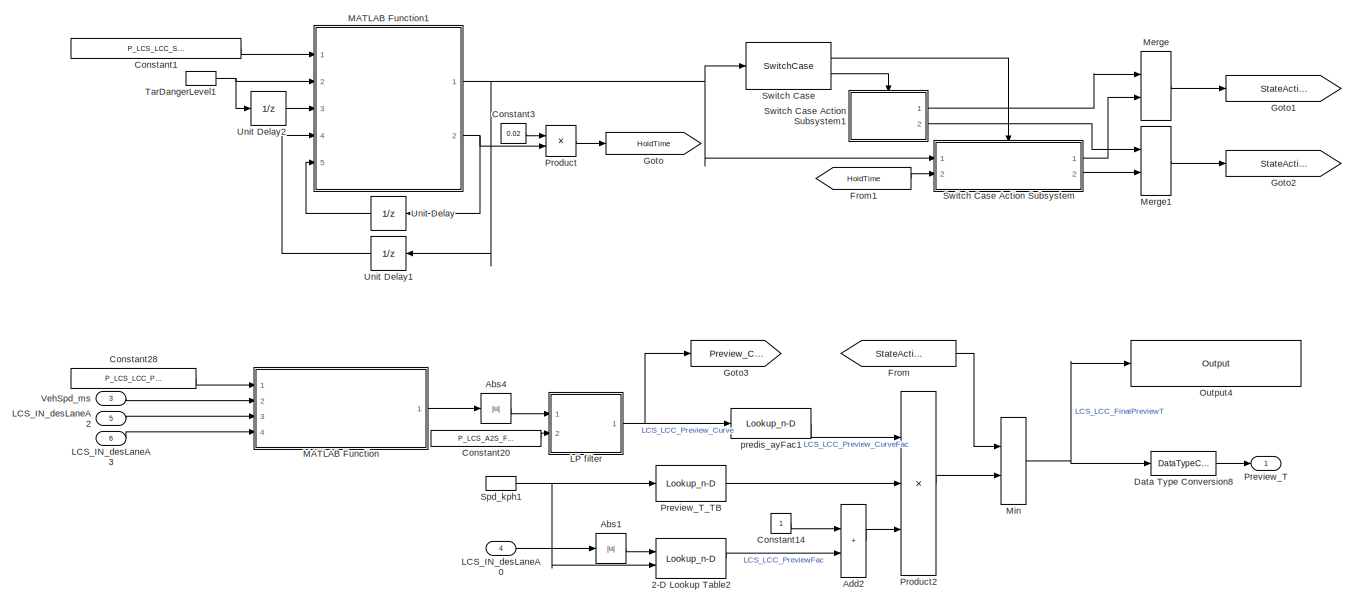
[diagram: Motion_Planning/FrenetTrajectory/Subsystem1 - part 1/2, full width, top band]
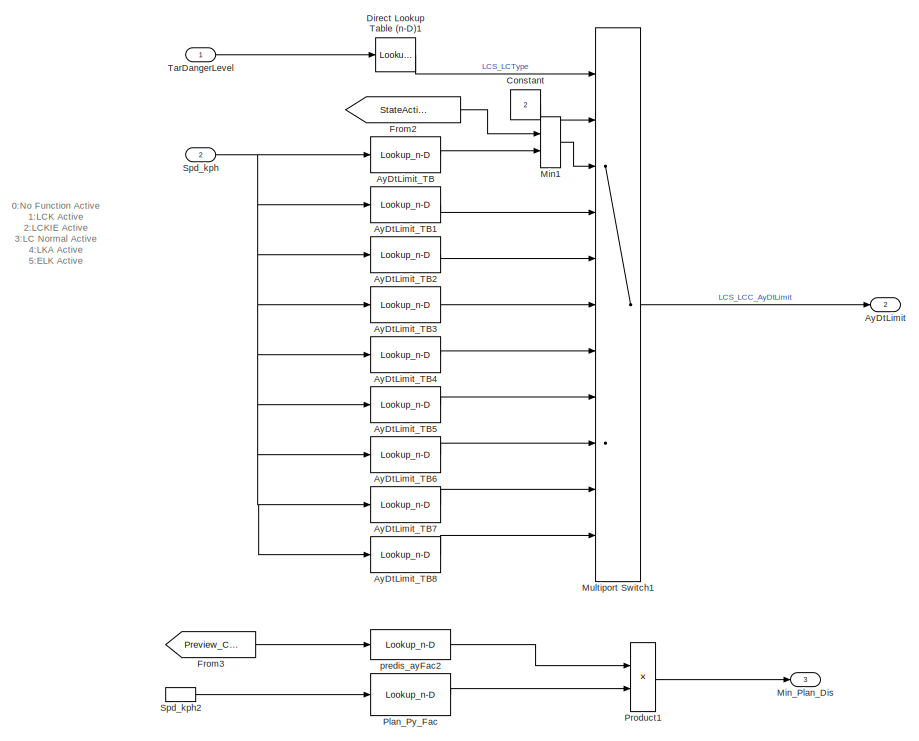
[diagram: Motion_Planning/FrenetTrajectory/Subsystem1 - part 2/2, bottom center region]
BLOCK [SubSystem] Motion_Planning/FrenetTrajectory/Subsystem1
  Ports = [6, 3]
  RequestExecContextInheritance = off
BLOCK [Lookup_n-D] Motion_Planning/FrenetTrajectory/Subsystem1/2-D Lookup Table2
  BreakpointsForDimension1 = P_LCS_A0_Dis_BP
  BreakpointsForDimension2 = P_LCS_preDis_spd
  ExtrapMethod = Clip
  InputPortMap = u0,u1
  InternalRulePriority = Speed
  Ports = [2, 1]
  RndMeth = Simplest
  Table = P_LCS_LCC_PreView_Fac
  UseLastTableValue = on
BLOCK [Abs] Motion_Planning/FrenetTrajectory/Subsystem1/Abs1
  SaturateOnIntegerOverflow = off
BLOCK [Abs] Motion_Planning/FrenetTrajectory/Subsystem1/Abs4
  SaturateOnIntegerOverflow = off
BLOCK [Sum] Motion_Planning/FrenetTrajectory/Subsystem1/Add2
  IconShape = rectangular
  Ports = [2, 1]
BLOCK [Outport] Motion_Planning/FrenetTrajectory/Subsystem1/AyDtLimit
  OutDataTypeStr = single
  Port = 2
BLOCK [Lookup_n-D] Motion_Planning/FrenetTrajectory/Subsystem1/AyDtLimit_TB
  BreakpointsForDimension1 = P_LCS_preDis_spd
  ExtrapMethod = Clip
  InputPortMap = u0
  InternalRulePriority = Speed
  NumberOfTableDimensions = 1
  Ports = [1, 1]
  RndMeth = Simplest
  Table = P_LCS_LCC_LCK_AyDtLimit_TBL
  UseLastTableValue = on
BLOCK [Lookup_n-D] Motion_Planning/FrenetTrajectory/Subsystem1/AyDtLimit_TB1
  BreakpointsForDimension1 = P_LCS_preDis_spd
  ExtrapMethod = Clip
  InputPortMap = u0
  InternalRulePriority = Speed
  NumberOfTableDimensions = 1
  Ports = [1, 1]
  RndMeth = Simplest
  Table = P_LCS_LCC_LCK_AyDtLimit_TBL
  UseLastTableValue = on
BLOCK [Lookup_n-D] Motion_Planning/FrenetTrajectory/Subsystem1/AyDtLimit_TB2
  BreakpointsForDimension1 = P_LCS_preDis_spd
  ExtrapMethod = Clip
  InputPortMap = u0
  InternalRulePriority = Speed
  NumberOfTableDimensions = 1
  Ports = [1, 1]
  RndMeth = Simplest
  Table = P_LCS_LCC_LC_Normal_AyDtLimit_TBL
  UseLastTableValue = on
BLOCK [Lookup_n-D] Motion_Planning/FrenetTrajectory/Subsystem1/AyDtLimit_TB3
  BreakpointsForDimension1 = P_LCS_preDis_spd
  ExtrapMethod = Clip
  InputPortMap = u0
  InternalRulePriority = Speed
  NumberOfTableDimensions = 1
  Ports = [1, 1]
  RndMeth = Simplest
  Table = P_LCS_LCC_LKA_AyDtLimit_TBL
  UseLastTableValue = on
BLOCK [Lookup_n-D] Motion_Planning/FrenetTrajectory/Subsystem1/AyDtLimit_TB4
  BreakpointsForDimension1 = P_LCS_preDis_spd
  ExtrapMethod = Clip
  InputPortMap = u0
  InternalRulePriority = Speed
  NumberOfTableDimensions = 1
  Ports = [1, 1]
  RndMeth = Simplest
  Table = P_LCS_LCC_ELK_AyDtLimit_TBL
  UseLastTableValue = on
BLOCK [Lookup_n-D] Motion_Planning/FrenetTrajectory/Subsystem1/AyDtLimit_TB5
  BreakpointsForDimension1 = P_LCS_preDis_spd
  ExtrapMethod = Clip
  InputPortMap = u0
  InternalRulePriority = Speed
  NumberOfTableDimensions = 1
  Ports = [1, 1]
  RndMeth = Simplest
  Table = P_LCS_LCC_ESS_AyDtLimit_TBL
  UseLastTableValue = on
BLOCK [Lookup_n-D] Motion_Planning/FrenetTrajectory/Subsystem1/AyDtLimit_TB6
  BreakpointsForDimension1 = P_LCS_preDis_spd
  ExtrapMethod = Clip
  InputPortMap = u0
  InternalRulePriority = Speed
  NumberOfTableDimensions = 1
  Ports = [1, 1]
  RndMeth = Simplest
  Table = P_LCS_LCC_Eco_AyDtLimit_TBL
  UseLastTableValue = on
BLOCK [Lookup_n-D] Motion_Planning/FrenetTrajectory/Subsystem1/AyDtLimit_TB7
  BreakpointsForDimension1 = P_LCS_preDis_spd
  ExtrapMethod = Clip
  InputPortMap = u0
  InternalRulePriority = Speed
  NumberOfTableDimensions = 1
  Ports = [1, 1]
  RndMeth = Simplest
  Table = P_LCS_LCC_Sport_AyDtLimit_TBL
  UseLastTableValue = on
BLOCK [Lookup_n-D] Motion_Planning/FrenetTrajectory/Subsystem1/AyDtLimit_TB8
  BreakpointsForDimension1 = P_LCS_preDis_spd
  ExtrapMethod = Clip
  InputPortMap = u0
  InternalRulePriority = Speed
  NumberOfTableDimensions = 1
  Ports = [1, 1]
  RndMeth = Simplest
  Table = P_LCS_LCC_LC_AyDtLimit_TBL
  UseLastTableValue = on
BLOCK [Constant] Motion_Planning/FrenetTrajectory/Subsystem1/Constant
  OutDataTypeStr = single
  Value = 2
BLOCK [Constant] Motion_Planning/FrenetTrajectory/Subsystem1/Constant1
  OutDataTypeStr = uint16
  Value = P_LCS_LCC_StateActiveDelaytime
BLOCK [Constant] Motion_Planning/FrenetTrajectory/Subsystem1/Constant14
  OutDataTypeStr = single
BLOCK [Constant] Motion_Planning/FrenetTrajectory/Subsystem1/Constant20
  Value = P_LCS_A2S_FliterTime
BLOCK [Constant] Motion_Planning/FrenetTrajectory/Subsystem1/Constant28
  OutDataTypeStr = single
  Value = P_LCS_LCC_PreView_s
BLOCK [Constant] Motion_Planning/FrenetTrajectory/Subsystem1/Constant3
  Value = 0.02
BLOCK [DataTypeConversion] Motion_Planning/FrenetTrajectory/Subsystem1/Data Type Conversion8
  OutDataTypeStr = single
  RndMeth = Floor
  SaturateOnIntegerOverflow = off
BLOCK [LookupNDDirect] Motion_Planning/FrenetTrajectory/Subsystem1/Direct Lookup Table (n-D)1
  NumberOfTableDimensions = 1
  Ports = [1, 1]
  Table = [0 1 2 3 4 5 6 7 8 9]
  TableDataTypeStr = uint8
BLOCK [From] Motion_Planning/FrenetTrajectory/Subsystem1/From
  GotoTag = StateActive_PreviewT
BLOCK [From] Motion_Planning/FrenetTrajectory/Subsystem1/From1
  GotoTag = HoldTime
BLOCK [From] Motion_Planning/FrenetTrajectory/Subsystem1/From2
  GotoTag = StateActive_AyDtLimit
BLOCK [From] Motion_Planning/FrenetTrajectory/Subsystem1/From3
  GotoTag = Preview_Curve
BLOCK [Goto] Motion_Planning/FrenetTrajectory/Subsystem1/Goto
  GotoTag = HoldTime
BLOCK [Goto] Motion_Planning/FrenetTrajectory/Subsystem1/Goto1
  GotoTag = StateActive_PreviewT
BLOCK [Goto] Motion_Planning/FrenetTrajectory/Subsystem1/Goto2
  GotoTag = StateActive_AyDtLimit
BLOCK [Goto] Motion_Planning/FrenetTrajectory/Subsystem1/Goto3
  GotoTag = Preview_Curve
BLOCK [Inport] Motion_Planning/FrenetTrajectory/Subsystem1/LCS_IN_desLaneA0
  Port = 4
BLOCK [Inport] Motion_Planning/FrenetTrajectory/Subsystem1/LCS_IN_desLaneA2
  Port = 5
BLOCK [Inport] Motion_Planning/FrenetTrajectory/Subsystem1/LCS_IN_desLaneA3
  Port = 6
BLOCK [SubSystem] Motion_Planning/FrenetTrajectory/Subsystem1/LP filter
  Ports = [2, 1]
  RequestExecContextInheritance = off
BLOCK [Memory] Motion_Planning/FrenetTrajectory/Subsystem1/LP filter/Memory2
  InheritSampleTime = on
  NameLocation = top
BLOCK [Product] Motion_Planning/FrenetTrajectory/Subsystem1/LP filter/Product1
  Ports = [2, 1]
  RndMeth = Zero
BLOCK [Product] Motion_Planning/FrenetTrajectory/Subsystem1/LP filter/Product4
  Inputs = */
  Ports = [2, 1]
  RndMeth = Zero
BLOCK [Inport] Motion_Planning/FrenetTrajectory/Subsystem1/LP filter/Raw
BLOCK [Sum] Motion_Planning/FrenetTrajectory/Subsystem1/LP filter/Sum4
  Inputs = +-|
  Ports = [2, 1]
BLOCK [Sum] Motion_Planning/FrenetTrajectory/Subsystem1/LP filter/Sum5
  Inputs = ++|
  Ports = [2, 1]
BLOCK [Inport] Motion_Planning/FrenetTrajectory/Subsystem1/LP filter/TorqFilterTime
  Port = 2
BLOCK [Constant] Motion_Planning/FrenetTrajectory/Subsystem1/LP filter/Weight//N3
  OutDataTypeStr = single
  Value = 0.02
BLOCK [Outport] Motion_Planning/FrenetTrajectory/Subsystem1/LP filter/output
BLOCK [SubSystem] Motion_Planning/FrenetTrajectory/Subsystem1/MATLAB Function
  ErrorFcn = Stateflow.Translate.translate
  PermitHierarchicalResolution = ExplicitOnly
  Ports = [4, 1]
  RequestExecContextInheritance = off
  SFBlockType = MATLAB Function
  TreatAsAtomicUnit = on
BLOCK [Demux] Motion_Planning/FrenetTrajectory/Subsystem1/MATLAB Function/ Demux 
  Outputs = 1
  Ports = [1, 1]
BLOCK [S-Function] Motion_Planning/FrenetTrajectory/Subsystem1/MATLAB Function/ SFunction 
  EnableBusSupport = on
  FunctionName = sf_sfun
  PortCounts = [4 2]
  Ports = [4, 2]
  SFcnIsStateOwnerBlock = off
  SFunctionDeploymentMode = off
  Tag = Stateflow S-Function 5
BLOCK [Terminator] Motion_Planning/FrenetTrajectory/Subsystem1/MATLAB Function/ Terminator 
BLOCK [Inport] Motion_Planning/FrenetTrajectory/Subsystem1/MATLAB Function/C2
  Port = 3
BLOCK [Inport] Motion_Planning/FrenetTrajectory/Subsystem1/MATLAB Function/C3
  Port = 4
BLOCK [Inport] Motion_Planning/FrenetTrajectory/Subsystem1/MATLAB Function/Forward_PreViewT
BLOCK [Outport] Motion_Planning/FrenetTrajectory/Subsystem1/MATLAB Function/PreCurve
BLOCK [Inport] Motion_Planning/FrenetTrajectory/Subsystem1/MATLAB Function/VehSpd
  Port = 2
BLOCK [SubSystem] Motion_Planning/FrenetTrajectory/Subsystem1/MATLAB Function1
  ErrorFcn = Stateflow.Translate.translate
  PermitHierarchicalResolution = ExplicitOnly
  Ports = [5, 2]
  RequestExecContextInheritance = off
  SFBlockType = MATLAB Function
  TreatAsAtomicUnit = on
BLOCK [Demux] Motion_Planning/FrenetTrajectory/Subsystem1/MATLAB Function1/ Demux 
  Outputs = 1
  Ports = [1, 1]
BLOCK [S-Function] Motion_Planning/FrenetTrajectory/Subsystem1/MATLAB Function1/ SFunction 
  EnableBusSupport = on
  FunctionName = sf_sfun
  PortCounts = [5 3]
  Ports = [5, 3]
  SFcnIsStateOwnerBlock = off
  SFunctionDeploymentMode = off
  Tag = Stateflow S-Function 8
BLOCK [Terminator] Motion_Planning/FrenetTrajectory/Subsystem1/MATLAB Function1/ Terminator 
BLOCK [Outport] Motion_Planning/FrenetTrajectory/Subsystem1/MATLAB Function1/Count
  Port = 2
BLOCK [Inport] Motion_Planning/FrenetTrajectory/Subsystem1/MATLAB Function1/CountK1
  Port = 5
BLOCK [Inport] Motion_Planning/FrenetTrajectory/Subsystem1/MATLAB Function1/Delaytime
BLOCK [Outport] Motion_Planning/FrenetTrajectory/Subsystem1/MATLAB Function1/Flg
BLOCK [Inport] Motion_Planning/FrenetTrajectory/Subsystem1/MATLAB Function1/FlgK1
  Port = 4
BLOCK [Inport] Motion_Planning/FrenetTrajectory/Subsystem1/MATLAB Function1/TarDangerLevel
  Port = 2
BLOCK [Inport] Motion_Planning/FrenetTrajectory/Subsystem1/MATLAB Function1/TarDangerLevelK1
  Port = 3
BLOCK [Merge] Motion_Planning/FrenetTrajectory/Subsystem1/Merge
  Ports = [2, 1]
BLOCK [Merge] Motion_Planning/FrenetTrajectory/Subsystem1/Merge1
  Ports = [2, 1]
BLOCK [MinMax] Motion_Planning/FrenetTrajectory/Subsystem1/Min
  Inputs = 2
  Ports = [2, 1]
BLOCK [MinMax] Motion_Planning/FrenetTrajectory/Subsystem1/Min1
  Inputs = 2
  Ports = [2, 1]
BLOCK [Outport] Motion_Planning/FrenetTrajectory/Subsystem1/Min_Plan_Dis
  OutDataTypeStr = single
  Port = 3
BLOCK [MultiPortSwitch] Motion_Planning/FrenetTrajectory/Subsystem1/Multiport Switch1
  DataPortOrder = Zero-based contiguous
  InputSameDT = off
  Inputs = 10
  Ports = [11, 1]
  SaturateOnIntegerOverflow = off
  zeroidx = on
BLOCK [Reference] Motion_Planning/FrenetTrajectory/Subsystem1/Output4  REF=canapelib/CANape I//O/Output
  AttributesFormatString = %<envName>
  Ports = [1]
  SourceBlock = canapelib/CANape I//O/Output
  SourceProductName = Vector CANape/vSignalyzer Target
  SourceType = Output Module
BLOCK [Lookup_n-D] Motion_Planning/FrenetTrajectory/Subsystem1/Plan_Py_Fac
  BreakpointsForDimension1 = P_LCS_DeltaEps_SpdBp
  ExtrapMethod = Clip
  InputPortMap = u0
  InternalRulePriority = Speed
  NumberOfTableDimensions = 1
  Ports = [1, 1]
  RndMeth = Simplest
  Table = P_LCS_LCC_Min_Plan_Dis
  UseLastTableValue = on
BLOCK [Outport] Motion_Planning/FrenetTrajectory/Subsystem1/Preview_T
  OutDataTypeStr = single
BLOCK [Lookup_n-D] Motion_Planning/FrenetTrajectory/Subsystem1/Preview_T_TB
  BreakpointsForDimension1 = P_LCS_preDis_spd
  ExtrapMethod = Clip
  InputPortMap = u0
  InternalRulePriority = Speed
  NumberOfTableDimensions = 1
  Ports = [1, 1]
  RndMeth = Simplest
  Table = P_LCS_LCC_PreViewT
  UseLastTableValue = on
BLOCK [Product] Motion_Planning/FrenetTrajectory/Subsystem1/Product
  Ports = [2, 1]
BLOCK [Product] Motion_Planning/FrenetTrajectory/Subsystem1/Product1
  Ports = [2, 1]
BLOCK [Product] Motion_Planning/FrenetTrajectory/Subsystem1/Product2
  Inputs = 3
  Ports = [3, 1]
BLOCK [Inport] Motion_Planning/FrenetTrajectory/Subsystem1/Spd_kph
  Port = 2
BLOCK [InportShadow] Motion_Planning/FrenetTrajectory/Subsystem1/Spd_kph1
  Port = 2
BLOCK [InportShadow] Motion_Planning/FrenetTrajectory/Subsystem1/Spd_kph2
  Port = 2
BLOCK [SwitchCase] Motion_Planning/FrenetTrajectory/Subsystem1/Switch Case
  CaseConditions = {[1]}
  Ports = [1, 2]
BLOCK [SubSystem] Motion_Planning/FrenetTrajectory/Subsystem1/Switch Case Action Subsystem
  Ports = [2, 2, 0, 0, 0, 0, 0, 1]
  RequestExecContextInheritance = off
  TreatAsAtomicUnit = on
BLOCK [ActionPort] Motion_Planning/FrenetTrajectory/Subsystem1/Switch Case Action Subsystem/Action Port
  ActionPortLabel = case [ 1 ]:
BLOCK [Lookup_n-D] Motion_Planning/FrenetTrajectory/Subsystem1/Switch Case Action Subsystem/ActiveAyDtLimit_TBL
  BreakpointsForDimension1 = P_LCS_StateActiveFlg_BP
  BreakpointsForDimension2 = P_LCS_StateActive_HoldTime_BP
  ExtrapMethod = Clip
  InputPortMap = u0,u1
  InputSameDT = off
  InternalRulePriority = Speed
  OutDataTypeStr = single
  Ports = [2, 1]
  RndMeth = Simplest
  Table = P_LCS_LCC_StateActiv_AyDtLimit
  UseLastTableValue = on
BLOCK [Lookup_n-D] Motion_Planning/FrenetTrajectory/Subsystem1/Switch Case Action Subsystem/ActivePreviewT_TBL
  BreakpointsForDimension1 = P_LCS_StateActiveFlg_BP
  BreakpointsForDimension2 = P_LCS_StateActive_HoldTime_BP
  ExtrapMethod = Clip
  InputPortMap = u0,u1
  InputSameDT = off
  InternalRulePriority = Speed
  OutDataTypeStr = single
  Ports = [2, 1]
  RndMeth = Simplest
  Table = P_LCS_LCC_StateActiv_PreviewT
  UseLastTableValue = on
BLOCK [Outport] Motion_Planning/FrenetTrajectory/Subsystem1/Switch Case Action Subsystem/AyDtLimit
  Port = 2
BLOCK [Inport] Motion_Planning/FrenetTrajectory/Subsystem1/Switch Case Action Subsystem/Flg
BLOCK [Outport] Motion_Planning/FrenetTrajectory/Subsystem1/Switch Case Action Subsystem/PreviewT
BLOCK [Inport] Motion_Planning/FrenetTrajectory/Subsystem1/Switch Case Action Subsystem/StateHoldTime
  Port = 2
BLOCK [SubSystem] Motion_Planning/FrenetTrajectory/Subsystem1/Switch Case Action Subsystem1
  Ports = [0, 2, 0, 0, 0, 0, 0, 1]
  RequestExecContextInheritance = off
  TreatAsAtomicUnit = on
BLOCK [ActionPort] Motion_Planning/FrenetTrajectory/Subsystem1/Switch Case Action Subsystem1/Action Port
  ActionPortLabel = default:
BLOCK [Outport] Motion_Planning/FrenetTrajectory/Subsystem1/Switch Case Action Subsystem1/AyDtLimit
  Port = 2
BLOCK [Constant] Motion_Planning/FrenetTrajectory/Subsystem1/Switch Case Action Subsystem1/Constant
  OutDataTypeStr = single
  Value = 10
BLOCK [Constant] Motion_Planning/FrenetTrajectory/Subsystem1/Switch Case Action Subsystem1/Constant1
  OutDataTypeStr = single
  Value = 10
BLOCK [Outport] Motion_Planning/FrenetTrajectory/Subsystem1/Switch Case Action Subsystem1/PreviewT
BLOCK [Inport] Motion_Planning/FrenetTrajectory/Subsystem1/TarDangerLevel
BLOCK [InportShadow] Motion_Planning/FrenetTrajectory/Subsystem1/TarDangerLevel1
BLOCK [UnitDelay] Motion_Planning/FrenetTrajectory/Subsystem1/Unit Delay
  HasFrameUpgradeWarning = on
  NameLocation = top
  SampleTime = -1
BLOCK [UnitDelay] Motion_Planning/FrenetTrajectory/Subsystem1/Unit Delay1
  HasFrameUpgradeWarning = on
  NameLocation = top
  SampleTime = -1
BLOCK [UnitDelay] Motion_Planning/FrenetTrajectory/Subsystem1/Unit Delay2
  HasFrameUpgradeWarning = on
  SampleTime = -1
BLOCK [Inport] Motion_Planning/FrenetTrajectory/Subsystem1/VehSpd_ms
  Port = 3
BLOCK [Lookup_n-D] Motion_Planning/FrenetTrajectory/Subsystem1/predis_ayFac1
  BreakpointsForDimension1 = P_LCS_A2_Curve_BP
  ExtrapMethod = Clip
  InputPortMap = u0
  InternalRulePriority = Speed
  NumberOfTableDimensions = 1
  Ports = [1, 1]
  RndMeth = Simplest
  Table = P_LCS_LCC_PreViewCurve_Fac
  UseLastTableValue = on
BLOCK [Lookup_n-D] Motion_Planning/FrenetTrajectory/Subsystem1/predis_ayFac2
  BreakpointsForDimension1 = P_LCS_A2_Curve_BP
  ExtrapMethod = Clip
  InputPortMap = u0
  InternalRulePriority = Speed
  NumberOfTableDimensions = 1
  Ports = [1, 1]
  RndMeth = Simplest
  Table = P_LCS_LCC_PreCur_Min_Plan_Dis_Fac
  UseLastTableValue = on
BLOCK [Inport] Motion_Planning/FrenetTrajectory/TarDangerLevel
  Port = 8
BLOCK [Terminator] Motion_Planning/FrenetTrajectory/Terminator
BLOCK [Terminator] Motion_Planning/FrenetTrajectory/Terminator1
BLOCK [Inport] Motion_Planning/FrenetTrajectory/Veh_Speed_kph
  Port = 7
BLOCK [Inport] Motion_Planning/FrenetTrajectory/Veh_Speed_ms
  Port = 5
BLOCK [InportShadow] Motion_Planning/FrenetTrajectory/Veh_Speed_ms1
  Port = 5
BLOCK [Inport] Motion_Planning/FrenetTrajectory/YawRate
  Port = 6
BLOCK [Inport] Motion_Planning/FrenetTrajectory/desLaneA0
BLOCK [Inport] Motion_Planning/FrenetTrajectory/desLaneA1
  Port = 2
BLOCK [Inport] Motion_Planning/FrenetTrajectory/desLaneA2
  Port = 3
BLOCK [Inport] Motion_Planning/FrenetTrajectory/desLaneA3
  Port = 4
BLOCK [InportShadow] Motion_Planning/FrenetTrajectory/desLaneA4
BLOCK [InportShadow] Motion_Planning/FrenetTrajectory/desLaneA5
  Port = 3
BLOCK [InportShadow] Motion_Planning/FrenetTrajectory/desLaneA6
  Port = 4
BLOCK [Outport] Motion_Planning/FrenetTrajectory/heading_error
  Port = 12
BLOCK [Outport] Motion_Planning/FrenetTrajectory/heading_error_rate
  Port = 13
BLOCK [Outport] Motion_Planning/FrenetTrajectory/idx
  Port = 4
BLOCK [Inport] Motion_Planning/FrenetTrajectory/kapEgo
  Port = 10
BLOCK [Outport] Motion_Planning/FrenetTrajectory/lateral_error
  Port = 10
BLOCK [Outport] Motion_Planning/FrenetTrajectory/lateral_error_rate
  Port = 11
BLOCK [Outport] Motion_Planning/FrenetTrajectory/numTraj
  Port = 8
BLOCK [Outport] Motion_Planning/FrenetTrajectory/ref_curvature
  Port = 9
BLOCK [SubSystem] Motion_Planning/FrenetTrajectory_Lateral
  Ports = [10, 13]
  RequestExecContextInheritance = off
  VariantControl = Choice_2
BLOCK [SubSystem] Motion_Planning/FrenetTrajectory_Lateral/FrenetTrajectory_Lateral
  ErrorFcn = Stateflow.Translate.translate
  PermitHierarchicalResolution = ExplicitOnly
  Ports = [10, 13]
  RequestExecContextInheritance = off
  SFBlockType = MATLAB Function
  TreatAsAtomicUnit = on
BLOCK [Demux] Motion_Planning/FrenetTrajectory_Lateral/FrenetTrajectory_Lateral/ Demux 
  Outputs = 1
  Ports = [1, 1]
BLOCK [S-Function] Motion_Planning/FrenetTrajectory_Lateral/FrenetTrajectory_Lateral/ SFunction 
  EnableBusSupport = on
  FunctionName = sf_sfun
  PortCounts = [10 14]
  Ports = [10, 14]
  SFcnIsStateOwnerBlock = off
  SFunctionDeploymentMode = off
  Tag = Stateflow S-Function 1
BLOCK [Terminator] Motion_Planning/FrenetTrajectory_Lateral/FrenetTrajectory_Lateral/ Terminator 
BLOCK [Inport] Motion_Planning/FrenetTrajectory_Lateral/FrenetTrajectory_Lateral/A0
BLOCK [Inport] Motion_Planning/FrenetTrajectory_Lateral/FrenetTrajectory_Lateral/A1
  Port = 2
BLOCK [Inport] Motion_Planning/FrenetTrajectory_Lateral/FrenetTrajectory_Lateral/A2
  Port = 3
BLOCK [Inport] Motion_Planning/FrenetTrajectory_Lateral/FrenetTrajectory_Lateral/A3
  Port = 4
BLOCK [Inport] Motion_Planning/FrenetTrajectory_Lateral/FrenetTrajectory_Lateral/AyDtLimit
  Port = 9
BLOCK [Inport] Motion_Planning/FrenetTrajectory_Lateral/FrenetTrajectory_Lateral/Min_Plan_Dis
  Port = 10
BLOCK [Outport] Motion_Planning/FrenetTrajectory_Lateral/FrenetTrajectory_Lateral/PlanTheta
  Port = 3
BLOCK [Outport] Motion_Planning/FrenetTrajectory_Lateral/FrenetTrajectory_Lateral/PlanX
BLOCK [Outport] Motion_Planning/FrenetTrajectory_Lateral/FrenetTrajectory_Lateral/PlanY
  Port = 2
BLOCK [Inport] Motion_Planning/FrenetTrajectory_Lateral/FrenetTrajectory_Lateral/PreView_T
  Port = 8
BLOCK [Outport] Motion_Planning/FrenetTrajectory_Lateral/FrenetTrajectory_Lateral/PreviewTheta
  Port = 7
BLOCK [Outport] Motion_Planning/FrenetTrajectory_Lateral/FrenetTrajectory_Lateral/PreviewX
  Port = 5
BLOCK [Outport] Motion_Planning/FrenetTrajectory_Lateral/FrenetTrajectory_Lateral/PreviewY
  Port = 6
BLOCK [Inport] Motion_Planning/FrenetTrajectory_Lateral/FrenetTrajectory_Lateral/TarDangerlLevel
  Port = 7
BLOCK [Inport] Motion_Planning/FrenetTrajectory_Lateral/FrenetTrajectory_Lateral/Veh_Speed
  Port = 5
BLOCK [Inport] Motion_Planning/FrenetTrajectory_Lateral/FrenetTrajectory_Lateral/YawRate
  Port = 6
BLOCK [Outport] Motion_Planning/FrenetTrajectory_Lateral/FrenetTrajectory_Lateral/heading_error
  Port = 12
BLOCK [Outport] Motion_Planning/FrenetTrajectory_Lateral/FrenetTrajectory_Lateral/heading_error_rate
  Port = 13
BLOCK [Outport] Motion_Planning/FrenetTrajectory_Lateral/FrenetTrajectory_Lateral/idx
  Port = 4
BLOCK [Outport] Motion_Planning/FrenetTrajectory_Lateral/FrenetTrajectory_Lateral/lateral_error
  Port = 10
BLOCK [Outport] Motion_Planning/FrenetTrajectory_Lateral/FrenetTrajectory_Lateral/lateral_error_rate
  Port = 11
BLOCK [Outport] Motion_Planning/FrenetTrajectory_Lateral/FrenetTrajectory_Lateral/numTraj
  Port = 8
BLOCK [Outport] Motion_Planning/FrenetTrajectory_Lateral/FrenetTrajectory_Lateral/ref_curvature
  Port = 9
BLOCK [Inport] Motion_Planning/FrenetTrajectory_Lateral/Long_Acc
  Port = 9
BLOCK [Outport] Motion_Planning/FrenetTrajectory_Lateral/PlanTheta
  Port = 3
BLOCK [Outport] Motion_Planning/FrenetTrajectory_Lateral/PlanX
BLOCK [Outport] Motion_Planning/FrenetTrajectory_Lateral/PlanY
  Port = 2
BLOCK [Outport] Motion_Planning/FrenetTrajectory_Lateral/PreviewTheta
  Port = 7
BLOCK [Outport] Motion_Planning/FrenetTrajectory_Lateral/PreviewX
  Port = 5
BLOCK [Outport] Motion_Planning/FrenetTrajectory_Lateral/PreviewY
  Port = 6
BLOCK [SubSystem] Motion_Planning/FrenetTrajectory_Lateral/Subsystem
  Commented = on
  Ports = [6, 2]
  RequestExecContextInheritance = off
BLOCK [Lookup_n-D] Motion_Planning/FrenetTrajectory_Lateral/Subsystem/2-D Lookup Table2
  BreakpointsForDimension1 = P_LCS_A0_Dis_BP
  BreakpointsForDimension2 = P_LCS_preDis_spd
  ExtrapMethod = Clip
  InputPortMap = u0,u1
  InternalRulePriority = Speed
  Ports = [2, 1]
  RndMeth = Simplest
  Table = P_LCS_LCC_PreView_Fac
  UseLastTableValue = on
BLOCK [Abs] Motion_Planning/FrenetTrajectory_Lateral/Subsystem/Abs1
  SaturateOnIntegerOverflow = off
BLOCK [Abs] Motion_Planning/FrenetTrajectory_Lateral/Subsystem/Abs4
  SaturateOnIntegerOverflow = off
BLOCK [Sum] Motion_Planning/FrenetTrajectory_Lateral/Subsystem/Add2
  IconShape = rectangular
  Ports = [2, 1]
BLOCK [Outport] Motion_Planning/FrenetTrajectory_Lateral/Subsystem/AyDtLimit
  OutDataTypeStr = single
  Port = 2
BLOCK [Lookup_n-D] Motion_Planning/FrenetTrajectory_Lateral/Subsystem/AyDtLimit_TB
  BreakpointsForDimension1 = P_LCS_preDis_spd
  ExtrapMethod = Clip
  InputPortMap = u0
  InternalRulePriority = Speed
  NumberOfTableDimensions = 1
  Ports = [1, 1]
  RndMeth = Simplest
  Table = P_LCS_LCC_LCK_AyDtLimit_TBL
  UseLastTableValue = on
BLOCK [Lookup_n-D] Motion_Planning/FrenetTrajectory_Lateral/Subsystem/AyDtLimit_TB1
  BreakpointsForDimension1 = P_LCS_preDis_spd
  ExtrapMethod = Clip
  InputPortMap = u0
  InternalRulePriority = Speed
  NumberOfTableDimensions = 1
  Ports = [1, 1]
  RndMeth = Simplest
  Table = P_LCS_LCC_LCK_AyDtLimit_TBL
  UseLastTableValue = on
BLOCK [Lookup_n-D] Motion_Planning/FrenetTrajectory_Lateral/Subsystem/AyDtLimit_TB2
  BreakpointsForDimension1 = P_LCS_preDis_spd
  ExtrapMethod = Clip
  InputPortMap = u0
  InternalRulePriority = Speed
  NumberOfTableDimensions = 1
  Ports = [1, 1]
  RndMeth = Simplest
  Table = P_LCS_LCC_LC_Normal_AyDtLimit_TBL
  UseLastTableValue = on
BLOCK [Lookup_n-D] Motion_Planning/FrenetTrajectory_Lateral/Subsystem/AyDtLimit_TB3
  BreakpointsForDimension1 = P_LCS_preDis_spd
  ExtrapMethod = Clip
  InputPortMap = u0
  InternalRulePriority = Speed
  NumberOfTableDimensions = 1
  Ports = [1, 1]
  RndMeth = Simplest
  Table = P_LCS_LCC_LKA_AyDtLimit_TBL
  UseLastTableValue = on
BLOCK [Lookup_n-D] Motion_Planning/FrenetTrajectory_Lateral/Subsystem/AyDtLimit_TB4
  BreakpointsForDimension1 = P_LCS_preDis_spd
  ExtrapMethod = Clip
  InputPortMap = u0
  InternalRulePriority = Speed
  NumberOfTableDimensions = 1
  Ports = [1, 1]
  RndMeth = Simplest
  Table = P_LCS_LCC_ELK_AyDtLimit_TBL
  UseLastTableValue = on
BLOCK [Lookup_n-D] Motion_Planning/FrenetTrajectory_Lateral/Subsystem/AyDtLimit_TB5
  BreakpointsForDimension1 = P_LCS_preDis_spd
  ExtrapMethod = Clip
  InputPortMap = u0
  InternalRulePriority = Speed
  NumberOfTableDimensions = 1
  Ports = [1, 1]
  RndMeth = Simplest
  Table = P_LCS_LCC_ESS_AyDtLimit_TBL
  UseLastTableValue = on
BLOCK [Lookup_n-D] Motion_Planning/FrenetTrajectory_Lateral/Subsystem/AyDtLimit_TB6
  BreakpointsForDimension1 = P_LCS_preDis_spd
  ExtrapMethod = Clip
  InputPortMap = u0
  InternalRulePriority = Speed
  NumberOfTableDimensions = 1
  Ports = [1, 1]
  RndMeth = Simplest
  Table = P_LCS_LCC_Eco_AyDtLimit_TBL
  UseLastTableValue = on
BLOCK [Lookup_n-D] Motion_Planning/FrenetTrajectory_Lateral/Subsystem/AyDtLimit_TB7
  BreakpointsForDimension1 = P_LCS_preDis_spd
  ExtrapMethod = Clip
  InputPortMap = u0
  InternalRulePriority = Speed
  NumberOfTableDimensions = 1
  Ports = [1, 1]
  RndMeth = Simplest
  Table = P_LCS_LCC_Sport_AyDtLimit_TBL
  UseLastTableValue = on
BLOCK [Lookup_n-D] Motion_Planning/FrenetTrajectory_Lateral/Subsystem/AyDtLimit_TB8
  BreakpointsForDimension1 = P_LCS_preDis_spd
  ExtrapMethod = Clip
  InputPortMap = u0
  InternalRulePriority = Speed
  NumberOfTableDimensions = 1
  Ports = [1, 1]
  RndMeth = Simplest
  Table = P_LCS_LCC_LC_AyDtLimit_TBL
  UseLastTableValue = on
BLOCK [Constant] Motion_Planning/FrenetTrajectory_Lateral/Subsystem/Constant
  OutDataTypeStr = single
  Value = 2
BLOCK [Constant] Motion_Planning/FrenetTrajectory_Lateral/Subsystem/Constant1
  OutDataTypeStr = uint16
  Value = P_LCS_LCC_StateActiveDelaytime
BLOCK [Constant] Motion_Planning/FrenetTrajectory_Lateral/Subsystem/Constant14
  OutDataTypeStr = single
BLOCK [Constant] Motion_Planning/FrenetTrajectory_Lateral/Subsystem/Constant20
  Value = P_LCS_A2S_FliterTime
BLOCK [Constant] Motion_Planning/FrenetTrajectory_Lateral/Subsystem/Constant28
  OutDataTypeStr = single
  Value = P_LCS_LCC_PreView_s
BLOCK [Constant] Motion_Planning/FrenetTrajectory_Lateral/Subsystem/Constant3
  Value = 0.02
BLOCK [DataTypeConversion] Motion_Planning/FrenetTrajectory_Lateral/Subsystem/Data Type Conversion8
  OutDataTypeStr = single
  RndMeth = Floor
  SaturateOnIntegerOverflow = off
BLOCK [LookupNDDirect] Motion_Planning/FrenetTrajectory_Lateral/Subsystem/Direct Lookup Table (n-D)1
  NumberOfTableDimensions = 1
  Ports = [1, 1]
  Table = [0 1 2 3 4 5 6 7 8 9]
  TableDataTypeStr = uint8
BLOCK [From] Motion_Planning/FrenetTrajectory_Lateral/Subsystem/From
  GotoTag = StateActive_PreviewT
BLOCK [From] Motion_Planning/FrenetTrajectory_Lateral/Subsystem/From1
  GotoTag = HoldTime
BLOCK [From] Motion_Planning/FrenetTrajectory_Lateral/Subsystem/From2
  GotoTag = StateActive_AyDtLimit
BLOCK [Goto] Motion_Planning/FrenetTrajectory_Lateral/Subsystem/Goto
  GotoTag = HoldTime
BLOCK [Goto] Motion_Planning/FrenetTrajectory_Lateral/Subsystem/Goto1
  GotoTag = StateActive_PreviewT
BLOCK [Goto] Motion_Planning/FrenetTrajectory_Lateral/Subsystem/Goto2
  GotoTag = StateActive_AyDtLimit
BLOCK [Inport] Motion_Planning/FrenetTrajectory_Lateral/Subsystem/LCS_IN_desLaneA0
  Port = 4
BLOCK [Inport] Motion_Planning/FrenetTrajectory_Lateral/Subsystem/LCS_IN_desLaneA2
  Port = 5
BLOCK [Inport] Motion_Planning/FrenetTrajectory_Lateral/Subsystem/LCS_IN_desLaneA3
  Port = 6
BLOCK [SubSystem] Motion_Planning/FrenetTrajectory_Lateral/Subsystem/LP filter
  Ports = [2, 1]
  RequestExecContextInheritance = off
BLOCK [Memory] Motion_Planning/FrenetTrajectory_Lateral/Subsystem/LP filter/Memory2
  InheritSampleTime = on
  NameLocation = top
BLOCK [Product] Motion_Planning/FrenetTrajectory_Lateral/Subsystem/LP filter/Product1
  Ports = [2, 1]
  RndMeth = Zero
BLOCK [Product] Motion_Planning/FrenetTrajectory_Lateral/Subsystem/LP filter/Product4
  Inputs = */
  Ports = [2, 1]
  RndMeth = Zero
BLOCK [Inport] Motion_Planning/FrenetTrajectory_Lateral/Subsystem/LP filter/Raw
BLOCK [Sum] Motion_Planning/FrenetTrajectory_Lateral/Subsystem/LP filter/Sum4
  Inputs = +-|
  Ports = [2, 1]
BLOCK [Sum] Motion_Planning/FrenetTrajectory_Lateral/Subsystem/LP filter/Sum5
  Inputs = ++|
  Ports = [2, 1]
BLOCK [Inport] Motion_Planning/FrenetTrajectory_Lateral/Subsystem/LP filter/TorqFilterTime
  Port = 2
BLOCK [Constant] Motion_Planning/FrenetTrajectory_Lateral/Subsystem/LP filter/Weight//N3
  OutDataTypeStr = single
  Value = 0.02
BLOCK [Outport] Motion_Planning/FrenetTrajectory_Lateral/Subsystem/LP filter/output
BLOCK [SubSystem] Motion_Planning/FrenetTrajectory_Lateral/Subsystem/MATLAB Function
  ErrorFcn = Stateflow.Translate.translate
  PermitHierarchicalResolution = ExplicitOnly
  Ports = [4, 1]
  RequestExecContextInheritance = off
  SFBlockType = MATLAB Function
  TreatAsAtomicUnit = on
BLOCK [Demux] Motion_Planning/FrenetTrajectory_Lateral/Subsystem/MATLAB Function/ Demux 
  Outputs = 1
  Ports = [1, 1]
BLOCK [S-Function] Motion_Planning/FrenetTrajectory_Lateral/Subsystem/MATLAB Function/ SFunction 
  EnableBusSupport = on
  FunctionName = sf_sfun
  PortCounts = [4 2]
  Ports = [4, 2]
  SFcnIsStateOwnerBlock = off
  SFunctionDeploymentMode = off
  Tag = Stateflow S-Function 11
BLOCK [Terminator] Motion_Planning/FrenetTrajectory_Lateral/Subsystem/MATLAB Function/ Terminator 
BLOCK [Inport] Motion_Planning/FrenetTrajectory_Lateral/Subsystem/MATLAB Function/C2
  Port = 3
BLOCK [Inport] Motion_Planning/FrenetTrajectory_Lateral/Subsystem/MATLAB Function/C3
  Port = 4
BLOCK [Inport] Motion_Planning/FrenetTrajectory_Lateral/Subsystem/MATLAB Function/Forward_PreViewT
BLOCK [Outport] Motion_Planning/FrenetTrajectory_Lateral/Subsystem/MATLAB Function/PreCurve
BLOCK [Inport] Motion_Planning/FrenetTrajectory_Lateral/Subsystem/MATLAB Function/VehSpd
  Port = 2
BLOCK [SubSystem] Motion_Planning/FrenetTrajectory_Lateral/Subsystem/MATLAB Function1
  ErrorFcn = Stateflow.Translate.translate
  PermitHierarchicalResolution = ExplicitOnly
  Ports = [5, 2]
  RequestExecContextInheritance = off
  SFBlockType = MATLAB Function
  TreatAsAtomicUnit = on
BLOCK [Demux] Motion_Planning/FrenetTrajectory_Lateral/Subsystem/MATLAB Function1/ Demux 
  Outputs = 1
  Ports = [1, 1]
BLOCK [S-Function] Motion_Planning/FrenetTrajectory_Lateral/Subsystem/MATLAB Function1/ SFunction 
  EnableBusSupport = on
  FunctionName = sf_sfun
  PortCounts = [5 3]
  Ports = [5, 3]
  SFcnIsStateOwnerBlock = off
  SFunctionDeploymentMode = off
  Tag = Stateflow S-Function 12
BLOCK [Terminator] Motion_Planning/FrenetTrajectory_Lateral/Subsystem/MATLAB Function1/ Terminator 
BLOCK [Outport] Motion_Planning/FrenetTrajectory_Lateral/Subsystem/MATLAB Function1/Count
  Port = 2
BLOCK [Inport] Motion_Planning/FrenetTrajectory_Lateral/Subsystem/MATLAB Function1/CountK1
  Port = 5
BLOCK [Inport] Motion_Planning/FrenetTrajectory_Lateral/Subsystem/MATLAB Function1/Delaytime
BLOCK [Outport] Motion_Planning/FrenetTrajectory_Lateral/Subsystem/MATLAB Function1/Flg
BLOCK [Inport] Motion_Planning/FrenetTrajectory_Lateral/Subsystem/MATLAB Function1/FlgK1
  Port = 4
BLOCK [Inport] Motion_Planning/FrenetTrajectory_Lateral/Subsystem/MATLAB Function1/TarDangerLevel
  Port = 2
BLOCK [Inport] Motion_Planning/FrenetTrajectory_Lateral/Subsystem/MATLAB Function1/TarDangerLevelK1
  Port = 3
BLOCK [Merge] Motion_Planning/FrenetTrajectory_Lateral/Subsystem/Merge
  Ports = [2, 1]
BLOCK [Merge] Motion_Planning/FrenetTrajectory_Lateral/Subsystem/Merge1
  Ports = [2, 1]
BLOCK [MinMax] Motion_Planning/FrenetTrajectory_Lateral/Subsystem/Min
  Inputs = 2
  Ports = [2, 1]
BLOCK [MinMax] Motion_Planning/FrenetTrajectory_Lateral/Subsystem/Min1
  Inputs = 2
  Ports = [2, 1]
BLOCK [MultiPortSwitch] Motion_Planning/FrenetTrajectory_Lateral/Subsystem/Multiport Switch1
  DataPortOrder = Zero-based contiguous
  InputSameDT = off
  Inputs = 10
  Ports = [11, 1]
  SaturateOnIntegerOverflow = off
  zeroidx = on
BLOCK [Outport] Motion_Planning/FrenetTrajectory_Lateral/Subsystem/Preview_T
  OutDataTypeStr = single
BLOCK [Lookup_n-D] Motion_Planning/FrenetTrajectory_Lateral/Subsystem/Preview_T_TB
  BreakpointsForDimension1 = P_LCS_preDis_spd
  ExtrapMethod = Clip
  InputPortMap = u0
  InternalRulePriority = Speed
  NumberOfTableDimensions = 1
  Ports = [1, 1]
  RndMeth = Simplest
  Table = P_LCS_LCC_PreViewT
  UseLastTableValue = on
BLOCK [Product] Motion_Planning/FrenetTrajectory_Lateral/Subsystem/Product
  Ports = [2, 1]
BLOCK [Product] Motion_Planning/FrenetTrajectory_Lateral/Subsystem/Product2
  Inputs = 3
  Ports = [3, 1]
BLOCK [Inport] Motion_Planning/FrenetTrajectory_Lateral/Subsystem/Spd_kph
  Port = 2
BLOCK [InportShadow] Motion_Planning/FrenetTrajectory_Lateral/Subsystem/Spd_kph1
  Port = 2
BLOCK [SwitchCase] Motion_Planning/FrenetTrajectory_Lateral/Subsystem/Switch Case
  CaseConditions = {[1]}
  Ports = [1, 2]
BLOCK [SubSystem] Motion_Planning/FrenetTrajectory_Lateral/Subsystem/Switch Case Action Subsystem
  Ports = [2, 2, 0, 0, 0, 0, 0, 1]
  RequestExecContextInheritance = off
  TreatAsAtomicUnit = on
BLOCK [ActionPort] Motion_Planning/FrenetTrajectory_Lateral/Subsystem/Switch Case Action Subsystem/Action Port
BLOCK [Lookup_n-D] Motion_Planning/FrenetTrajectory_Lateral/Subsystem/Switch Case Action Subsystem/ActiveAyDtLimit_TBL
  BreakpointsForDimension1 = P_LCS_StateActiveFlg_BP
  BreakpointsForDimension2 = P_LCS_StateActive_HoldTime_BP
  ExtrapMethod = Clip
  InputPortMap = u0,u1
  InputSameDT = off
  InternalRulePriority = Speed
  OutDataTypeStr = single
  Ports = [2, 1]
  RndMeth = Simplest
  Table = P_LCS_LCC_StateActiv_AyDtLimit
  UseLastTableValue = on
BLOCK [Lookup_n-D] Motion_Planning/FrenetTrajectory_Lateral/Subsystem/Switch Case Action Subsystem/ActivePreviewT_TBL
  BreakpointsForDimension1 = P_LCS_StateActiveFlg_BP
  BreakpointsForDimension2 = P_LCS_StateActive_HoldTime_BP
  ExtrapMethod = Clip
  InputPortMap = u0,u1
  InputSameDT = off
  InternalRulePriority = Speed
  OutDataTypeStr = single
  Ports = [2, 1]
  RndMeth = Simplest
  Table = P_LCS_LCC_StateActiv_PreviewT
  UseLastTableValue = on
BLOCK [Outport] Motion_Planning/FrenetTrajectory_Lateral/Subsystem/Switch Case Action Subsystem/AyDtLimit
  Port = 2
BLOCK [Inport] Motion_Planning/FrenetTrajectory_Lateral/Subsystem/Switch Case Action Subsystem/Flg
BLOCK [Outport] Motion_Planning/FrenetTrajectory_Lateral/Subsystem/Switch Case Action Subsystem/PreviewT
BLOCK [Inport] Motion_Planning/FrenetTrajectory_Lateral/Subsystem/Switch Case Action Subsystem/StateHoldTime
  Port = 2
BLOCK [SubSystem] Motion_Planning/FrenetTrajectory_Lateral/Subsystem/Switch Case Action Subsystem1
  Ports = [0, 2, 0, 0, 0, 0, 0, 1]
  RequestExecContextInheritance = off
  TreatAsAtomicUnit = on
BLOCK [ActionPort] Motion_Planning/FrenetTrajectory_Lateral/Subsystem/Switch Case Action Subsystem1/Action Port
BLOCK [Outport] Motion_Planning/FrenetTrajectory_Lateral/Subsystem/Switch Case Action Subsystem1/AyDtLimit
  Port = 2
BLOCK [Constant] Motion_Planning/FrenetTrajectory_Lateral/Subsystem/Switch Case Action Subsystem1/Constant
  OutDataTypeStr = single
  Value = 10
BLOCK [Constant] Motion_Planning/FrenetTrajectory_Lateral/Subsystem/Switch Case Action Subsystem1/Constant1
  OutDataTypeStr = single
  Value = 10
BLOCK [Outport] Motion_Planning/FrenetTrajectory_Lateral/Subsystem/Switch Case Action Subsystem1/PreviewT
BLOCK [Inport] Motion_Planning/FrenetTrajectory_Lateral/Subsystem/TarDangerLevel
BLOCK [InportShadow] Motion_Planning/FrenetTrajectory_Lateral/Subsystem/TarDangerLevel1
BLOCK [UnitDelay] Motion_Planning/FrenetTrajectory_Lateral/Subsystem/Unit Delay
  HasFrameUpgradeWarning = on
  NameLocation = top
  SampleTime = -1
BLOCK [UnitDelay] Motion_Planning/FrenetTrajectory_Lateral/Subsystem/Unit Delay1
  HasFrameUpgradeWarning = on
  NameLocation = top
  SampleTime = -1
BLOCK [UnitDelay] Motion_Planning/FrenetTrajectory_Lateral/Subsystem/Unit Delay2
  HasFrameUpgradeWarning = on
  SampleTime = -1
BLOCK [Inport] Motion_Planning/FrenetTrajectory_Lateral/Subsystem/VehSpd_ms
  Port = 3
BLOCK [Lookup_n-D] Motion_Planning/FrenetTrajectory_Lateral/Subsystem/predis_ayFac1
  BreakpointsForDimension1 = P_LCS_A2_Curve_BP
  ExtrapMethod = Clip
  InputPortMap = u0
  InternalRulePriority = Speed
  NumberOfTableDimensions = 1
  Ports = [1, 1]
  RndMeth = Simplest
  Table = P_LCS_LCC_PreViewCurve_Fac
  UseLastTableValue = on
BLOCK [SubSystem] Motion_Planning/FrenetTrajectory_Lateral/Subsystem1
  Ports = [6, 3]
  RequestExecContextInheritance = off
BLOCK [Lookup_n-D] Motion_Planning/FrenetTrajectory_Lateral/Subsystem1/2-D Lookup Table2
  BreakpointsForDimension1 = P_LCS_A0_Dis_BP
  BreakpointsForDimension2 = P_LCS_preDis_spd
  ExtrapMethod = Clip
  InputPortMap = u0,u1
  InternalRulePriority = Speed
  Ports = [2, 1]
  RndMeth = Simplest
  Table = P_LCS_LCC_PreView_Fac
  UseLastTableValue = on
BLOCK [Abs] Motion_Planning/FrenetTrajectory_Lateral/Subsystem1/Abs1
  SaturateOnIntegerOverflow = off
BLOCK [Abs] Motion_Planning/FrenetTrajectory_Lateral/Subsystem1/Abs4
  SaturateOnIntegerOverflow = off
BLOCK [Sum] Motion_Planning/FrenetTrajectory_Lateral/Subsystem1/Add2
  IconShape = rectangular
  Ports = [2, 1]
BLOCK [Outport] Motion_Planning/FrenetTrajectory_Lateral/Subsystem1/AyDtLimit
  OutDataTypeStr = single
  Port = 2
BLOCK [Lookup_n-D] Motion_Planning/FrenetTrajectory_Lateral/Subsystem1/AyDtLimit_TB
  BreakpointsForDimension1 = P_LCS_preDis_spd
  ExtrapMethod = Clip
  InputPortMap = u0
  InternalRulePriority = Speed
  NumberOfTableDimensions = 1
  Ports = [1, 1]
  RndMeth = Simplest
  Table = P_LCS_LCC_LCK_AyDtLimit_TBL
  UseLastTableValue = on
BLOCK [Lookup_n-D] Motion_Planning/FrenetTrajectory_Lateral/Subsystem1/AyDtLimit_TB1
  BreakpointsForDimension1 = P_LCS_preDis_spd
  ExtrapMethod = Clip
  InputPortMap = u0
  InternalRulePriority = Speed
  NumberOfTableDimensions = 1
  Ports = [1, 1]
  RndMeth = Simplest
  Table = P_LCS_LCC_LCK_AyDtLimit_TBL
  UseLastTableValue = on
BLOCK [Lookup_n-D] Motion_Planning/FrenetTrajectory_Lateral/Subsystem1/AyDtLimit_TB2
  BreakpointsForDimension1 = P_LCS_preDis_spd
  ExtrapMethod = Clip
  InputPortMap = u0
  InternalRulePriority = Speed
  NumberOfTableDimensions = 1
  Ports = [1, 1]
  RndMeth = Simplest
  Table = P_LCS_LCC_LC_Normal_AyDtLimit_TBL
  UseLastTableValue = on
BLOCK [Lookup_n-D] Motion_Planning/FrenetTrajectory_Lateral/Subsystem1/AyDtLimit_TB3
  BreakpointsForDimension1 = P_LCS_preDis_spd
  ExtrapMethod = Clip
  InputPortMap = u0
  InternalRulePriority = Speed
  NumberOfTableDimensions = 1
  Ports = [1, 1]
  RndMeth = Simplest
  Table = P_LCS_LCC_LKA_AyDtLimit_TBL
  UseLastTableValue = on
BLOCK [Lookup_n-D] Motion_Planning/FrenetTrajectory_Lateral/Subsystem1/AyDtLimit_TB4
  BreakpointsForDimension1 = P_LCS_preDis_spd
  ExtrapMethod = Clip
  InputPortMap = u0
  InternalRulePriority = Speed
  NumberOfTableDimensions = 1
  Ports = [1, 1]
  RndMeth = Simplest
  Table = P_LCS_LCC_ELK_AyDtLimit_TBL
  UseLastTableValue = on
BLOCK [Lookup_n-D] Motion_Planning/FrenetTrajectory_Lateral/Subsystem1/AyDtLimit_TB5
  BreakpointsForDimension1 = P_LCS_preDis_spd
  ExtrapMethod = Clip
  InputPortMap = u0
  InternalRulePriority = Speed
  NumberOfTableDimensions = 1
  Ports = [1, 1]
  RndMeth = Simplest
  Table = P_LCS_LCC_ESS_AyDtLimit_TBL
  UseLastTableValue = on
BLOCK [Lookup_n-D] Motion_Planning/FrenetTrajectory_Lateral/Subsystem1/AyDtLimit_TB6
  BreakpointsForDimension1 = P_LCS_preDis_spd
  ExtrapMethod = Clip
  InputPortMap = u0
  InternalRulePriority = Speed
  NumberOfTableDimensions = 1
  Ports = [1, 1]
  RndMeth = Simplest
  Table = P_LCS_LCC_Eco_AyDtLimit_TBL
  UseLastTableValue = on
BLOCK [Lookup_n-D] Motion_Planning/FrenetTrajectory_Lateral/Subsystem1/AyDtLimit_TB7
  BreakpointsForDimension1 = P_LCS_preDis_spd
  ExtrapMethod = Clip
  InputPortMap = u0
  InternalRulePriority = Speed
  NumberOfTableDimensions = 1
  Ports = [1, 1]
  RndMeth = Simplest
  Table = P_LCS_LCC_Sport_AyDtLimit_TBL
  UseLastTableValue = on
BLOCK [Lookup_n-D] Motion_Planning/FrenetTrajectory_Lateral/Subsystem1/AyDtLimit_TB8
  BreakpointsForDimension1 = P_LCS_preDis_spd
  ExtrapMethod = Clip
  InputPortMap = u0
  InternalRulePriority = Speed
  NumberOfTableDimensions = 1
  Ports = [1, 1]
  RndMeth = Simplest
  Table = P_LCS_LCC_LC_AyDtLimit_TBL
  UseLastTableValue = on
BLOCK [Constant] Motion_Planning/FrenetTrajectory_Lateral/Subsystem1/Constant
  OutDataTypeStr = single
  Value = 2
BLOCK [Constant] Motion_Planning/FrenetTrajectory_Lateral/Subsystem1/Constant1
  OutDataTypeStr = uint16
  Value = P_LCS_LCC_StateActiveDelaytime
BLOCK [Constant] Motion_Planning/FrenetTrajectory_Lateral/Subsystem1/Constant14
  OutDataTypeStr = single
BLOCK [Constant] Motion_Planning/FrenetTrajectory_Lateral/Subsystem1/Constant20
  Value = P_LCS_A2S_FliterTime
BLOCK [Constant] Motion_Planning/FrenetTrajectory_Lateral/Subsystem1/Constant28
  OutDataTypeStr = single
  Value = P_LCS_LCC_PreView_s
BLOCK [Constant] Motion_Planning/FrenetTrajectory_Lateral/Subsystem1/Constant3
  Value = 0.02
BLOCK [DataTypeConversion] Motion_Planning/FrenetTrajectory_Lateral/Subsystem1/Data Type Conversion8
  OutDataTypeStr = single
  RndMeth = Floor
  SaturateOnIntegerOverflow = off
BLOCK [LookupNDDirect] Motion_Planning/FrenetTrajectory_Lateral/Subsystem1/Direct Lookup Table (n-D)1
  NumberOfTableDimensions = 1
  Ports = [1, 1]
  Table = [0 1 2 3 4 5 6 7 8 9]
  TableDataTypeStr = uint8
BLOCK [From] Motion_Planning/FrenetTrajectory_Lateral/Subsystem1/From
  GotoTag = StateActive_PreviewT
BLOCK [From] Motion_Planning/FrenetTrajectory_Lateral/Subsystem1/From1
  GotoTag = HoldTime
BLOCK [From] Motion_Planning/FrenetTrajectory_Lateral/Subsystem1/From2
  GotoTag = StateActive_AyDtLimit
BLOCK [From] Motion_Planning/FrenetTrajectory_Lateral/Subsystem1/From3
  GotoTag = Preview_Curve
BLOCK [Goto] Motion_Planning/FrenetTrajectory_Lateral/Subsystem1/Goto
  GotoTag = HoldTime
BLOCK [Goto] Motion_Planning/FrenetTrajectory_Lateral/Subsystem1/Goto1
  GotoTag = StateActive_PreviewT
BLOCK [Goto] Motion_Planning/FrenetTrajectory_Lateral/Subsystem1/Goto2
  GotoTag = StateActive_AyDtLimit
BLOCK [Goto] Motion_Planning/FrenetTrajectory_Lateral/Subsystem1/Goto3
  GotoTag = Preview_Curve
BLOCK [Inport] Motion_Planning/FrenetTrajectory_Lateral/Subsystem1/LCS_IN_desLaneA0
  Port = 4
BLOCK [Inport] Motion_Planning/FrenetTrajectory_Lateral/Subsystem1/LCS_IN_desLaneA2
  Port = 5
BLOCK [Inport] Motion_Planning/FrenetTrajectory_Lateral/Subsystem1/LCS_IN_desLaneA3
  Port = 6
BLOCK [SubSystem] Motion_Planning/FrenetTrajectory_Lateral/Subsystem1/LP filter
  Ports = [2, 1]
  RequestExecContextInheritance = off
BLOCK [Memory] Motion_Planning/FrenetTrajectory_Lateral/Subsystem1/LP filter/Memory2
  InheritSampleTime = on
  NameLocation = top
BLOCK [Product] Motion_Planning/FrenetTrajectory_Lateral/Subsystem1/LP filter/Product1
  Ports = [2, 1]
  RndMeth = Zero
BLOCK [Product] Motion_Planning/FrenetTrajectory_Lateral/Subsystem1/LP filter/Product4
  Inputs = */
  Ports = [2, 1]
  RndMeth = Zero
BLOCK [Inport] Motion_Planning/FrenetTrajectory_Lateral/Subsystem1/LP filter/Raw
BLOCK [Sum] Motion_Planning/FrenetTrajectory_Lateral/Subsystem1/LP filter/Sum4
  Inputs = +-|
  Ports = [2, 1]
BLOCK [Sum] Motion_Planning/FrenetTrajectory_Lateral/Subsystem1/LP filter/Sum5
  Inputs = ++|
  Ports = [2, 1]
BLOCK [Inport] Motion_Planning/FrenetTrajectory_Lateral/Subsystem1/LP filter/TorqFilterTime
  Port = 2
BLOCK [Constant] Motion_Planning/FrenetTrajectory_Lateral/Subsystem1/LP filter/Weight//N3
  OutDataTypeStr = single
  Value = 0.02
BLOCK [Outport] Motion_Planning/FrenetTrajectory_Lateral/Subsystem1/LP filter/output
BLOCK [SubSystem] Motion_Planning/FrenetTrajectory_Lateral/Subsystem1/MATLAB Function
  ErrorFcn = Stateflow.Translate.translate
  PermitHierarchicalResolution = ExplicitOnly
  Ports = [4, 1]
  RequestExecContextInheritance = off
  SFBlockType = MATLAB Function
  TreatAsAtomicUnit = on
BLOCK [Demux] Motion_Planning/FrenetTrajectory_Lateral/Subsystem1/MATLAB Function/ Demux 
  Outputs = 1
  Ports = [1, 1]
BLOCK [S-Function] Motion_Planning/FrenetTrajectory_Lateral/Subsystem1/MATLAB Function/ SFunction 
  EnableBusSupport = on
  FunctionName = sf_sfun
  PortCounts = [4 2]
  Ports = [4, 2]
  SFcnIsStateOwnerBlock = off
  SFunctionDeploymentMode = off
  Tag = Stateflow S-Function 17
BLOCK [Terminator] Motion_Planning/FrenetTrajectory_Lateral/Subsystem1/MATLAB Function/ Terminator 
BLOCK [Inport] Motion_Planning/FrenetTrajectory_Lateral/Subsystem1/MATLAB Function/C2
  Port = 3
BLOCK [Inport] Motion_Planning/FrenetTrajectory_Lateral/Subsystem1/MATLAB Function/C3
  Port = 4
BLOCK [Inport] Motion_Planning/FrenetTrajectory_Lateral/Subsystem1/MATLAB Function/Forward_PreViewT
BLOCK [Outport] Motion_Planning/FrenetTrajectory_Lateral/Subsystem1/MATLAB Function/PreCurve
BLOCK [Inport] Motion_Planning/FrenetTrajectory_Lateral/Subsystem1/MATLAB Function/VehSpd
  Port = 2
BLOCK [SubSystem] Motion_Planning/FrenetTrajectory_Lateral/Subsystem1/MATLAB Function1
  ErrorFcn = Stateflow.Translate.translate
  PermitHierarchicalResolution = ExplicitOnly
  Ports = [5, 2]
  RequestExecContextInheritance = off
  SFBlockType = MATLAB Function
  TreatAsAtomicUnit = on
BLOCK [Demux] Motion_Planning/FrenetTrajectory_Lateral/Subsystem1/MATLAB Function1/ Demux 
  Outputs = 1
  Ports = [1, 1]
BLOCK [S-Function] Motion_Planning/FrenetTrajectory_Lateral/Subsystem1/MATLAB Function1/ SFunction 
  EnableBusSupport = on
  FunctionName = sf_sfun
  PortCounts = [5 3]
  Ports = [5, 3]
  SFcnIsStateOwnerBlock = off
  SFunctionDeploymentMode = off
  Tag = Stateflow S-Function 18
BLOCK [Terminator] Motion_Planning/FrenetTrajectory_Lateral/Subsystem1/MATLAB Function1/ Terminator 
BLOCK [Outport] Motion_Planning/FrenetTrajectory_Lateral/Subsystem1/MATLAB Function1/Count
  Port = 2
BLOCK [Inport] Motion_Planning/FrenetTrajectory_Lateral/Subsystem1/MATLAB Function1/CountK1
  Port = 5
BLOCK [Inport] Motion_Planning/FrenetTrajectory_Lateral/Subsystem1/MATLAB Function1/Delaytime
BLOCK [Outport] Motion_Planning/FrenetTrajectory_Lateral/Subsystem1/MATLAB Function1/Flg
BLOCK [Inport] Motion_Planning/FrenetTrajectory_Lateral/Subsystem1/MATLAB Function1/FlgK1
  Port = 4
BLOCK [Inport] Motion_Planning/FrenetTrajectory_Lateral/Subsystem1/MATLAB Function1/TarDangerLevel
  Port = 2
BLOCK [Inport] Motion_Planning/FrenetTrajectory_Lateral/Subsystem1/MATLAB Function1/TarDangerLevelK1
  Port = 3
BLOCK [Merge] Motion_Planning/FrenetTrajectory_Lateral/Subsystem1/Merge
  Ports = [2, 1]
BLOCK [Merge] Motion_Planning/FrenetTrajectory_Lateral/Subsystem1/Merge1
  Ports = [2, 1]
BLOCK [MinMax] Motion_Planning/FrenetTrajectory_Lateral/Subsystem1/Min
  Inputs = 2
  Ports = [2, 1]
BLOCK [MinMax] Motion_Planning/FrenetTrajectory_Lateral/Subsystem1/Min1
  Inputs = 2
  Ports = [2, 1]
BLOCK [Outport] Motion_Planning/FrenetTrajectory_Lateral/Subsystem1/Min_Plan_Dis
  OutDataTypeStr = single
  Port = 3
BLOCK [MultiPortSwitch] Motion_Planning/FrenetTrajectory_Lateral/Subsystem1/Multiport Switch1
  DataPortOrder = Zero-based contiguous
  InputSameDT = off
  Inputs = 10
  Ports = [11, 1]
  SaturateOnIntegerOverflow = off
  zeroidx = on
BLOCK [Lookup_n-D] Motion_Planning/FrenetTrajectory_Lateral/Subsystem1/Plan_Py_Fac
  BreakpointsForDimension1 = P_LCS_DeltaEps_SpdBp
  ExtrapMethod = Clip
  InputPortMap = u0
  InternalRulePriority = Speed
  NumberOfTableDimensions = 1
  Ports = [1, 1]
  RndMeth = Simplest
  Table = P_LCS_LCC_Min_Plan_Dis
  UseLastTableValue = on
BLOCK [Outport] Motion_Planning/FrenetTrajectory_Lateral/Subsystem1/Preview_T
  OutDataTypeStr = single
BLOCK [Lookup_n-D] Motion_Planning/FrenetTrajectory_Lateral/Subsystem1/Preview_T_TB
  BreakpointsForDimension1 = P_LCS_preDis_spd
  ExtrapMethod = Clip
  InputPortMap = u0
  InternalRulePriority = Speed
  NumberOfTableDimensions = 1
  Ports = [1, 1]
  RndMeth = Simplest
  Table = P_LCS_LCC_PreViewT
  UseLastTableValue = on
BLOCK [Product] Motion_Planning/FrenetTrajectory_Lateral/Subsystem1/Product
  Ports = [2, 1]
BLOCK [Product] Motion_Planning/FrenetTrajectory_Lateral/Subsystem1/Product1
  Ports = [2, 1]
BLOCK [Product] Motion_Planning/FrenetTrajectory_Lateral/Subsystem1/Product2
  Inputs = 3
  Ports = [3, 1]
BLOCK [Inport] Motion_Planning/FrenetTrajectory_Lateral/Subsystem1/Spd_kph
  Port = 2
BLOCK [InportShadow] Motion_Planning/FrenetTrajectory_Lateral/Subsystem1/Spd_kph1
  Port = 2
BLOCK [InportShadow] Motion_Planning/FrenetTrajectory_Lateral/Subsystem1/Spd_kph2
  Port = 2
BLOCK [SwitchCase] Motion_Planning/FrenetTrajectory_Lateral/Subsystem1/Switch Case
  CaseConditions = {[1]}
  Ports = [1, 2]
BLOCK [SubSystem] Motion_Planning/FrenetTrajectory_Lateral/Subsystem1/Switch Case Action Subsystem
  Ports = [2, 2, 0, 0, 0, 0, 0, 1]
  RequestExecContextInheritance = off
  TreatAsAtomicUnit = on
BLOCK [ActionPort] Motion_Planning/FrenetTrajectory_Lateral/Subsystem1/Switch Case Action Subsystem/Action Port
  ActionPortLabel = case [ 1 ]:
BLOCK [Lookup_n-D] Motion_Planning/FrenetTrajectory_Lateral/Subsystem1/Switch Case Action Subsystem/ActiveAyDtLimit_TBL
  BreakpointsForDimension1 = P_LCS_StateActiveFlg_BP
  BreakpointsForDimension2 = P_LCS_StateActive_HoldTime_BP
  ExtrapMethod = Clip
  InputPortMap = u0,u1
  InputSameDT = off
  InternalRulePriority = Speed
  OutDataTypeStr = single
  Ports = [2, 1]
  RndMeth = Simplest
  Table = P_LCS_LCC_StateActiv_AyDtLimit
  UseLastTableValue = on
BLOCK [Lookup_n-D] Motion_Planning/FrenetTrajectory_Lateral/Subsystem1/Switch Case Action Subsystem/ActivePreviewT_TBL
  BreakpointsForDimension1 = P_LCS_StateActiveFlg_BP
  BreakpointsForDimension2 = P_LCS_StateActive_HoldTime_BP
  ExtrapMethod = Clip
  InputPortMap = u0,u1
  InputSameDT = off
  InternalRulePriority = Speed
  OutDataTypeStr = single
  Ports = [2, 1]
  RndMeth = Simplest
  Table = P_LCS_LCC_StateActiv_PreviewT
  UseLastTableValue = on
BLOCK [Outport] Motion_Planning/FrenetTrajectory_Lateral/Subsystem1/Switch Case Action Subsystem/AyDtLimit
  Port = 2
BLOCK [Inport] Motion_Planning/FrenetTrajectory_Lateral/Subsystem1/Switch Case Action Subsystem/Flg
BLOCK [Outport] Motion_Planning/FrenetTrajectory_Lateral/Subsystem1/Switch Case Action Subsystem/PreviewT
BLOCK [Inport] Motion_Planning/FrenetTrajectory_Lateral/Subsystem1/Switch Case Action Subsystem/StateHoldTime
  Port = 2
BLOCK [SubSystem] Motion_Planning/FrenetTrajectory_Lateral/Subsystem1/Switch Case Action Subsystem1
  Ports = [0, 2, 0, 0, 0, 0, 0, 1]
  RequestExecContextInheritance = off
  TreatAsAtomicUnit = on
BLOCK [ActionPort] Motion_Planning/FrenetTrajectory_Lateral/Subsystem1/Switch Case Action Subsystem1/Action Port
  ActionPortLabel = default:
BLOCK [Outport] Motion_Planning/FrenetTrajectory_Lateral/Subsystem1/Switch Case Action Subsystem1/AyDtLimit
  Port = 2
BLOCK [Constant] Motion_Planning/FrenetTrajectory_Lateral/Subsystem1/Switch Case Action Subsystem1/Constant
  OutDataTypeStr = single
  Value = 10
BLOCK [Constant] Motion_Planning/FrenetTrajectory_Lateral/Subsystem1/Switch Case Action Subsystem1/Constant1
  OutDataTypeStr = single
  Value = 10
BLOCK [Outport] Motion_Planning/FrenetTrajectory_Lateral/Subsystem1/Switch Case Action Subsystem1/PreviewT
BLOCK [Inport] Motion_Planning/FrenetTrajectory_Lateral/Subsystem1/TarDangerLevel
BLOCK [InportShadow] Motion_Planning/FrenetTrajectory_Lateral/Subsystem1/TarDangerLevel1
BLOCK [UnitDelay] Motion_Planning/FrenetTrajectory_Lateral/Subsystem1/Unit Delay
  HasFrameUpgradeWarning = on
  NameLocation = top
  SampleTime = -1
BLOCK [UnitDelay] Motion_Planning/FrenetTrajectory_Lateral/Subsystem1/Unit Delay1
  HasFrameUpgradeWarning = on
  NameLocation = top
  SampleTime = -1
BLOCK [UnitDelay] Motion_Planning/FrenetTrajectory_Lateral/Subsystem1/Unit Delay2
  HasFrameUpgradeWarning = on
  SampleTime = -1
BLOCK [Inport] Motion_Planning/FrenetTrajectory_Lateral/Subsystem1/VehSpd_ms
  Port = 3
BLOCK [Lookup_n-D] Motion_Planning/FrenetTrajectory_Lateral/Subsystem1/predis_ayFac1
  BreakpointsForDimension1 = P_LCS_A2_Curve_BP
  ExtrapMethod = Clip
  InputPortMap = u0
  InternalRulePriority = Speed
  NumberOfTableDimensions = 1
  Ports = [1, 1]
  RndMeth = Simplest
  Table = P_LCS_LCC_PreViewCurve_Fac
  UseLastTableValue = on
BLOCK [Lookup_n-D] Motion_Planning/FrenetTrajectory_Lateral/Subsystem1/predis_ayFac2
  BreakpointsForDimension1 = P_LCS_A2_Curve_BP
  ExtrapMethod = Clip
  InputPortMap = u0
  InternalRulePriority = Speed
  NumberOfTableDimensions = 1
  Ports = [1, 1]
  RndMeth = Simplest
  Table = P_LCS_LCC_PreCur_Min_Plan_Dis_Fac
  UseLastTableValue = on
BLOCK [Inport] Motion_Planning/FrenetTrajectory_Lateral/TarDangerLevel
  Port = 8
BLOCK [Terminator] Motion_Planning/FrenetTrajectory_Lateral/Terminator
BLOCK [Terminator] Motion_Planning/FrenetTrajectory_Lateral/Terminator1
BLOCK [Inport] Motion_Planning/FrenetTrajectory_Lateral/Veh_Speed_kph
  Port = 7
BLOCK [Inport] Motion_Planning/FrenetTrajectory_Lateral/Veh_Speed_ms
  Port = 5
BLOCK [InportShadow] Motion_Planning/FrenetTrajectory_Lateral/Veh_Speed_ms1
  Port = 5
BLOCK [Inport] Motion_Planning/FrenetTrajectory_Lateral/YawRate
  Port = 6
BLOCK [Inport] Motion_Planning/FrenetTrajectory_Lateral/desLaneA0
BLOCK [Inport] Motion_Planning/FrenetTrajectory_Lateral/desLaneA1
  Port = 2
BLOCK [Inport] Motion_Planning/FrenetTrajectory_Lateral/desLaneA2
  Port = 3
BLOCK [Inport] Motion_Planning/FrenetTrajectory_Lateral/desLaneA3
  Port = 4
BLOCK [InportShadow] Motion_Planning/FrenetTrajectory_Lateral/desLaneA4
BLOCK [InportShadow] Motion_Planning/FrenetTrajectory_Lateral/desLaneA5
  Port = 3
BLOCK [InportShadow] Motion_Planning/FrenetTrajectory_Lateral/desLaneA6
  Port = 4
BLOCK [Outport] Motion_Planning/FrenetTrajectory_Lateral/heading_error
  Port = 12
BLOCK [Outport] Motion_Planning/FrenetTrajectory_Lateral/heading_error_rate
  Port = 13
BLOCK [Outport] Motion_Planning/FrenetTrajectory_Lateral/idx
  Port = 4
BLOCK [Inport] Motion_Planning/FrenetTrajectory_Lateral/kapEgo
  Port = 10
BLOCK [Outport] Motion_Planning/FrenetTrajectory_Lateral/lateral_error
  Port = 10
BLOCK [Outport] Motion_Planning/FrenetTrajectory_Lateral/lateral_error_rate
  Port = 11
BLOCK [Outport] Motion_Planning/FrenetTrajectory_Lateral/numTraj
  Port = 8
BLOCK [Outport] Motion_Planning/FrenetTrajectory_Lateral/ref_curvature
  Port = 9
BLOCK [SubSystem] Motion_Planning/FrenetTrajectory_Lateral_CalcA0
  Ports = [10, 13]
  RequestExecContextInheritance = off
  VariantControl = Choice_1
BLOCK [Inport] Motion_Planning/FrenetTrajectory_Lateral_CalcA0/Long_Acc
  Port = 9
BLOCK [SubSystem] Motion_Planning/FrenetTrajectory_Lateral_CalcA0/MATLAB Function4
  ErrorFcn = Stateflow.Translate.translate
  PermitHierarchicalResolution = ExplicitOnly
  Ports = [9, 13]
  RequestExecContextInheritance = off
  SFBlockType = MATLAB Function
  TreatAsAtomicUnit = on
BLOCK [Demux] Motion_Planning/FrenetTrajectory_Lateral_CalcA0/MATLAB Function4/ Demux 
  Outputs = 1
  Ports = [1, 1]
BLOCK [S-Function] Motion_Planning/FrenetTrajectory_Lateral_CalcA0/MATLAB Function4/ SFunction 
  EnableBusSupport = on
  FunctionName = sf_sfun
  PortCounts = [9 14]
  Ports = [9, 14]
  SFcnIsStateOwnerBlock = off
  SFunctionDeploymentMode = off
  Tag = Stateflow S-Function 7
BLOCK [Terminator] Motion_Planning/FrenetTrajectory_Lateral_CalcA0/MATLAB Function4/ Terminator 
BLOCK [Inport] Motion_Planning/FrenetTrajectory_Lateral_CalcA0/MATLAB Function4/A0
BLOCK [Inport] Motion_Planning/FrenetTrajectory_Lateral_CalcA0/MATLAB Function4/A1
  Port = 2
BLOCK [Inport] Motion_Planning/FrenetTrajectory_Lateral_CalcA0/MATLAB Function4/A2
  Port = 3
BLOCK [Inport] Motion_Planning/FrenetTrajectory_Lateral_CalcA0/MATLAB Function4/A3
  Port = 4
BLOCK [Outport] Motion_Planning/FrenetTrajectory_Lateral_CalcA0/MATLAB Function4/PlanTheta
  Port = 3
BLOCK [Outport] Motion_Planning/FrenetTrajectory_Lateral_CalcA0/MATLAB Function4/PlanX
BLOCK [Outport] Motion_Planning/FrenetTrajectory_Lateral_CalcA0/MATLAB Function4/PlanY
  Port = 2
BLOCK [Inport] Motion_Planning/FrenetTrajectory_Lateral_CalcA0/MATLAB Function4/PreView_T
  Port = 7
BLOCK [Outport] Motion_Planning/FrenetTrajectory_Lateral_CalcA0/MATLAB Function4/PreviewTheta
  Port = 7
BLOCK [Outport] Motion_Planning/FrenetTrajectory_Lateral_CalcA0/MATLAB Function4/PreviewX
  Port = 5
BLOCK [Outport] Motion_Planning/FrenetTrajectory_Lateral_CalcA0/MATLAB Function4/PreviewY
  Port = 6
BLOCK [Inport] Motion_Planning/FrenetTrajectory_Lateral_CalcA0/MATLAB Function4/TarDangerlLevel
  Port = 9
BLOCK [Inport] Motion_Planning/FrenetTrajectory_Lateral_CalcA0/MATLAB Function4/Veh_Speed
  Port = 5
BLOCK [Inport] Motion_Planning/FrenetTrajectory_Lateral_CalcA0/MATLAB Function4/YawRate
  Port = 6
BLOCK [Inport] Motion_Planning/FrenetTrajectory_Lateral_CalcA0/MATLAB Function4/arcLenOffsets
  Port = 8
BLOCK [Outport] Motion_Planning/FrenetTrajectory_Lateral_CalcA0/MATLAB Function4/heading_error
  Port = 12
BLOCK [Outport] Motion_Planning/FrenetTrajectory_Lateral_CalcA0/MATLAB Function4/heading_error_rate
  Port = 13
BLOCK [Outport] Motion_Planning/FrenetTrajectory_Lateral_CalcA0/MATLAB Function4/idx
  Port = 4
BLOCK [Outport] Motion_Planning/FrenetTrajectory_Lateral_CalcA0/MATLAB Function4/lateral_error
  Port = 10
BLOCK [Outport] Motion_Planning/FrenetTrajectory_Lateral_CalcA0/MATLAB Function4/lateral_error_rate
  Port = 11
BLOCK [Outport] Motion_Planning/FrenetTrajectory_Lateral_CalcA0/MATLAB Function4/numTraj
  Port = 8
BLOCK [Outport] Motion_Planning/FrenetTrajectory_Lateral_CalcA0/MATLAB Function4/ref_curvature
  Port = 9
BLOCK [Outport] Motion_Planning/FrenetTrajectory_Lateral_CalcA0/PlanTheta
  Port = 3
BLOCK [Outport] Motion_Planning/FrenetTrajectory_Lateral_CalcA0/PlanX
BLOCK [Outport] Motion_Planning/FrenetTrajectory_Lateral_CalcA0/PlanY
  Port = 2
BLOCK [Outport] Motion_Planning/FrenetTrajectory_Lateral_CalcA0/PreviewTheta
  Port = 7
BLOCK [Outport] Motion_Planning/FrenetTrajectory_Lateral_CalcA0/PreviewX
  Port = 5
BLOCK [Outport] Motion_Planning/FrenetTrajectory_Lateral_CalcA0/PreviewY
  Port = 6
BLOCK [SubSystem] Motion_Planning/FrenetTrajectory_Lateral_CalcA0/Subsystem
  Ports = [6, 2]
  RequestExecContextInheritance = off
BLOCK [Lookup_n-D] Motion_Planning/FrenetTrajectory_Lateral_CalcA0/Subsystem/2-D Lookup Table1
  BreakpointsForDimension1 = P_LCS_LCC_Spd_BP2
  BreakpointsForDimension2 = P_LCS_LCC_A0_Dis_BP
  ExtrapMethod = Clip
  InputPortMap = u0,u1
  InternalRulePriority = Speed
  Ports = [2, 1]
  RndMeth = Simplest
  Table = P_LCS_LCC_LCK_Planning_Dist_TBL
  UseLastTableValue = on
BLOCK [Lookup_n-D] Motion_Planning/FrenetTrajectory_Lateral_CalcA0/Subsystem/2-D Lookup Table2
  BreakpointsForDimension1 = P_LCS_A0_Dis_BP
  BreakpointsForDimension2 = P_LCS_preDis_spd
  ExtrapMethod = Clip
  InputPortMap = u0,u1
  InternalRulePriority = Speed
  Ports = [2, 1]
  RndMeth = Simplest
  Table = P_LCS_LCC_PreView_Fac
  UseLastTableValue = on
BLOCK [Lookup_n-D] Motion_Planning/FrenetTrajectory_Lateral_CalcA0/Subsystem/2-D Lookup Table3
  BreakpointsForDimension1 = P_LCS_LCC_Spd_BP
  BreakpointsForDimension2 = P_LCS_LCC_A0_Dis_BP
  ExtrapMethod = Clip
  InputPortMap = u0,u1
  InternalRulePriority = Speed
  Ports = [2, 1]
  RndMeth = Simplest
  Table = P_LCS_LCC_LC_Planning_Dist_TBL
  UseLastTableValue = on
BLOCK [Abs] Motion_Planning/FrenetTrajectory_Lateral_CalcA0/Subsystem/Abs
  SaturateOnIntegerOverflow = off
BLOCK [Abs] Motion_Planning/FrenetTrajectory_Lateral_CalcA0/Subsystem/Abs1
  SaturateOnIntegerOverflow = off
BLOCK [Abs] Motion_Planning/FrenetTrajectory_Lateral_CalcA0/Subsystem/Abs4
  SaturateOnIntegerOverflow = off
BLOCK [Sum] Motion_Planning/FrenetTrajectory_Lateral_CalcA0/Subsystem/Add2
  IconShape = rectangular
  Ports = [2, 1]
BLOCK [Constant] Motion_Planning/FrenetTrajectory_Lateral_CalcA0/Subsystem/Constant14
  OutDataTypeStr = single
BLOCK [Constant] Motion_Planning/FrenetTrajectory_Lateral_CalcA0/Subsystem/Constant20
  Value = P_LCS_A2S_FliterTime
BLOCK [Constant] Motion_Planning/FrenetTrajectory_Lateral_CalcA0/Subsystem/Constant28
  OutDataTypeStr = single
  Value = P_LCS_LCC_PreView_s
BLOCK [Constant] Motion_Planning/FrenetTrajectory_Lateral_CalcA0/Subsystem/Constant5
  Commented = on
  OutDataTypeStr = single
  Value = P_LCS_LCC_PlaningLength_m
BLOCK [DataTypeConversion] Motion_Planning/FrenetTrajectory_Lateral_CalcA0/Subsystem/Data Type Conversion8
  OutDataTypeStr = single
  RndMeth = Floor
  SaturateOnIntegerOverflow = off
BLOCK [LookupNDDirect] Motion_Planning/FrenetTrajectory_Lateral_CalcA0/Subsystem/Direct Lookup Table (n-D)1
  NumberOfTableDimensions = 1
  Ports = [1, 1]
  Table = [1 1 1 2 1 1 1 2 2 1 1]
  TableDataTypeStr = uint8
BLOCK [Inport] Motion_Planning/FrenetTrajectory_Lateral_CalcA0/Subsystem/LCS_IN_desLaneA0
  Port = 4
BLOCK [InportShadow] Motion_Planning/FrenetTrajectory_Lateral_CalcA0/Subsystem/LCS_IN_desLaneA1
  Port = 4
BLOCK [Inport] Motion_Planning/FrenetTrajectory_Lateral_CalcA0/Subsystem/LCS_IN_desLaneA2
  Port = 5
BLOCK [Inport] Motion_Planning/FrenetTrajectory_Lateral_CalcA0/Subsystem/LCS_IN_desLaneA3
  Port = 6
BLOCK [SubSystem] Motion_Planning/FrenetTrajectory_Lateral_CalcA0/Subsystem/LP filter
  Ports = [2, 1]
  RequestExecContextInheritance = off
BLOCK [Memory] Motion_Planning/FrenetTrajectory_Lateral_CalcA0/Subsystem/LP filter/Memory2
  InheritSampleTime = on
  NameLocation = top
BLOCK [Product] Motion_Planning/FrenetTrajectory_Lateral_CalcA0/Subsystem/LP filter/Product1
  Ports = [2, 1]
  RndMeth = Zero
BLOCK [Product] Motion_Planning/FrenetTrajectory_Lateral_CalcA0/Subsystem/LP filter/Product4
  Inputs = */
  Ports = [2, 1]
  RndMeth = Zero
BLOCK [Inport] Motion_Planning/FrenetTrajectory_Lateral_CalcA0/Subsystem/LP filter/Raw
BLOCK [Sum] Motion_Planning/FrenetTrajectory_Lateral_CalcA0/Subsystem/LP filter/Sum4
  Inputs = +-|
  Ports = [2, 1]
BLOCK [Sum] Motion_Planning/FrenetTrajectory_Lateral_CalcA0/Subsystem/LP filter/Sum5
  Inputs = ++|
  Ports = [2, 1]
BLOCK [Inport] Motion_Planning/FrenetTrajectory_Lateral_CalcA0/Subsystem/LP filter/TorqFilterTime
  Port = 2
BLOCK [Constant] Motion_Planning/FrenetTrajectory_Lateral_CalcA0/Subsystem/LP filter/Weight//N3
  OutDataTypeStr = single
  Value = 0.02
BLOCK [Outport] Motion_Planning/FrenetTrajectory_Lateral_CalcA0/Subsystem/LP filter/output
BLOCK [Outport] Motion_Planning/FrenetTrajectory_Lateral_CalcA0/Subsystem/Long_Plan_Distance
  OutDataTypeStr = single
  Port = 2
BLOCK [SubSystem] Motion_Planning/FrenetTrajectory_Lateral_CalcA0/Subsystem/MATLAB Function
  ErrorFcn = Stateflow.Translate.translate
  PermitHierarchicalResolution = ExplicitOnly
  Ports = [4, 1]
  RequestExecContextInheritance = off
  SFBlockType = MATLAB Function
  TreatAsAtomicUnit = on
BLOCK [Demux] Motion_Planning/FrenetTrajectory_Lateral_CalcA0/Subsystem/MATLAB Function/ Demux 
  Outputs = 1
  Ports = [1, 1]
BLOCK [S-Function] Motion_Planning/FrenetTrajectory_Lateral_CalcA0/Subsystem/MATLAB Function/ SFunction 
  EnableBusSupport = on
  FunctionName = sf_sfun
  PortCounts = [4 2]
  Ports = [4, 2]
  SFcnIsStateOwnerBlock = off
  SFunctionDeploymentMode = off
  Tag = Stateflow S-Function 2
BLOCK [Terminator] Motion_Planning/FrenetTrajectory_Lateral_CalcA0/Subsystem/MATLAB Function/ Terminator 
BLOCK [Inport] Motion_Planning/FrenetTrajectory_Lateral_CalcA0/Subsystem/MATLAB Function/C2
  Port = 3
BLOCK [Inport] Motion_Planning/FrenetTrajectory_Lateral_CalcA0/Subsystem/MATLAB Function/C3
  Port = 4
BLOCK [Inport] Motion_Planning/FrenetTrajectory_Lateral_CalcA0/Subsystem/MATLAB Function/Forward_PreViewT
BLOCK [Outport] Motion_Planning/FrenetTrajectory_Lateral_CalcA0/Subsystem/MATLAB Function/PreCurve
BLOCK [Inport] Motion_Planning/FrenetTrajectory_Lateral_CalcA0/Subsystem/MATLAB Function/VehSpd
  Port = 2
BLOCK [MultiPortSwitch] Motion_Planning/FrenetTrajectory_Lateral_CalcA0/Subsystem/Multiport Switch1
  InputSameDT = off
  Inputs = 2
  Ports = [3, 1]
  SaturateOnIntegerOverflow = off
BLOCK [Outport] Motion_Planning/FrenetTrajectory_Lateral_CalcA0/Subsystem/Preview_T
  OutDataTypeStr = single
BLOCK [Lookup_n-D] Motion_Planning/FrenetTrajectory_Lateral_CalcA0/Subsystem/Preview_T_TB
  BreakpointsForDimension1 = P_LCS_preDis_spd
  ExtrapMethod = Clip
  InputPortMap = u0
  InternalRulePriority = Speed
  NumberOfTableDimensions = 1
  Ports = [1, 1]
  RndMeth = Simplest
  Table = P_LCS_LCC_PreViewT
  UseLastTableValue = on
BLOCK [Product] Motion_Planning/FrenetTrajectory_Lateral_CalcA0/Subsystem/Product2
  Inputs = 3
  Ports = [3, 1]
BLOCK [Inport] Motion_Planning/FrenetTrajectory_Lateral_CalcA0/Subsystem/Spd_kph
  Port = 2
BLOCK [InportShadow] Motion_Planning/FrenetTrajectory_Lateral_CalcA0/Subsystem/Spd_kph1
  Port = 2
BLOCK [Inport] Motion_Planning/FrenetTrajectory_Lateral_CalcA0/Subsystem/TarDangerLevel
BLOCK [Inport] Motion_Planning/FrenetTrajectory_Lateral_CalcA0/Subsystem/VehSpd_ms
  Port = 3
BLOCK [Lookup_n-D] Motion_Planning/FrenetTrajectory_Lateral_CalcA0/Subsystem/predis_ayFac1
  BreakpointsForDimension1 = P_LCS_A2_Curve_BP
  ExtrapMethod = Clip
  InputPortMap = u0
  InternalRulePriority = Speed
  NumberOfTableDimensions = 1
  Ports = [1, 1]
  RndMeth = Simplest
  Table = P_LCS_LCC_PreViewCurve_Fac
  UseLastTableValue = on
BLOCK [Inport] Motion_Planning/FrenetTrajectory_Lateral_CalcA0/TarDangerLevel
  Port = 8
BLOCK [Terminator] Motion_Planning/FrenetTrajectory_Lateral_CalcA0/Terminator
BLOCK [Terminator] Motion_Planning/FrenetTrajectory_Lateral_CalcA0/Terminator1
BLOCK [Inport] Motion_Planning/FrenetTrajectory_Lateral_CalcA0/Veh_Speed_kph
  Port = 7
BLOCK [Inport] Motion_Planning/FrenetTrajectory_Lateral_CalcA0/Veh_Speed_ms
  Port = 5
BLOCK [Inport] Motion_Planning/FrenetTrajectory_Lateral_CalcA0/YawRate
  Port = 6
BLOCK [Inport] Motion_Planning/FrenetTrajectory_Lateral_CalcA0/desLaneA0
BLOCK [Inport] Motion_Planning/FrenetTrajectory_Lateral_CalcA0/desLaneA1
  Port = 2
BLOCK [Inport] Motion_Planning/FrenetTrajectory_Lateral_CalcA0/desLaneA2
  Port = 3
BLOCK [Inport] Motion_Planning/FrenetTrajectory_Lateral_CalcA0/desLaneA3
  Port = 4
BLOCK [Outport] Motion_Planning/FrenetTrajectory_Lateral_CalcA0/heading_error
  Port = 12
BLOCK [Outport] Motion_Planning/FrenetTrajectory_Lateral_CalcA0/heading_error_rate
  Port = 13
BLOCK [Outport] Motion_Planning/FrenetTrajectory_Lateral_CalcA0/idx
  Port = 4
BLOCK [Inport] Motion_Planning/FrenetTrajectory_Lateral_CalcA0/kapEgo
  Port = 10
BLOCK [Outport] Motion_Planning/FrenetTrajectory_Lateral_CalcA0/lateral_error
  Port = 10
BLOCK [Outport] Motion_Planning/FrenetTrajectory_Lateral_CalcA0/lateral_error_rate
  Port = 11
BLOCK [Outport] Motion_Planning/FrenetTrajectory_Lateral_CalcA0/numTraj
  Port = 8
BLOCK [Outport] Motion_Planning/FrenetTrajectory_Lateral_CalcA0/ref_curvature
  Port = 9
BLOCK [Inport] Motion_Planning/Long_Acc
  Port = 9
BLOCK [Outport] Motion_Planning/PlanTheta
  Port = 3
BLOCK [Outport] Motion_Planning/PlanX
BLOCK [Outport] Motion_Planning/PlanY
  Port = 2
BLOCK [Outport] Motion_Planning/PreviewTheta
  Port = 7
BLOCK [Outport] Motion_Planning/PreviewX
  Port = 5
BLOCK [Outport] Motion_Planning/PreviewY
  Port = 6
BLOCK [Inport] Motion_Planning/TarDangerLevel
  Port = 8
BLOCK [Inport] Motion_Planning/Veh_Speed_kph
  Port = 7
BLOCK [Inport] Motion_Planning/Veh_Speed_ms
  Port = 5
BLOCK [Inport] Motion_Planning/YawRate
  Port = 6
BLOCK [Inport] Motion_Planning/desLaneA0
BLOCK [Inport] Motion_Planning/desLaneA1
  Port = 2
BLOCK [Inport] Motion_Planning/desLaneA2
  Port = 3
BLOCK [Inport] Motion_Planning/desLaneA3
  Port = 4
BLOCK [Outport] Motion_Planning/heading_error
  Port = 12
BLOCK [Outport] Motion_Planning/heading_error_rate
  Port = 13
BLOCK [Outport] Motion_Planning/idx
  Port = 4
BLOCK [Inport] Motion_Planning/kapEgo
  Port = 10
BLOCK [Outport] Motion_Planning/lateral_error
  Port = 10
BLOCK [Outport] Motion_Planning/lateral_error_rate
  Port = 11
BLOCK [Outport] Motion_Planning/numTraj
  Port = 8
BLOCK [Outport] Motion_Planning/ref_curvature
  Port = 9
BLOCK [Reference] Output1  REF=canapelib/CANape I//O/Output
  AttributesFormatString = %<envName>
  Ports = [1]
  SourceBlock = canapelib/CANape I//O/Output
  SourceProductName = Vector CANape/vSignalyzer Target
  SourceType = Output Module
BLOCK [Reference] Output10  REF=canapelib/CANape I//O/Output
  AttributesFormatString = %<envName>
  Ports = [1]
  SourceBlock = canapelib/CANape I//O/Output
  SourceProductName = Vector CANape/vSignalyzer Target
  SourceType = Output Module
BLOCK [Reference] Output11  REF=canapelib/CANape I//O/Output
  AttributesFormatString = %<envName>
  Ports = [1]
  SourceBlock = canapelib/CANape I//O/Output
  SourceProductName = Vector CANape/vSignalyzer Target
  SourceType = Output Module
BLOCK [Reference] Output12  REF=canapelib/CANape I//O/Output
  AttributesFormatString = %<envName>
  Ports = [1]
  SourceBlock = canapelib/CANape I//O/Output
  SourceProductName = Vector CANape/vSignalyzer Target
  SourceType = Output Module
BLOCK [Reference] Output13  REF=canapelib/CANape I//O/Output
  AttributesFormatString = %<envName>
  Ports = [1]
  SourceBlock = canapelib/CANape I//O/Output
  SourceProductName = Vector CANape/vSignalyzer Target
  SourceType = Output Module
BLOCK [Reference] Output14  REF=canapelib/CANape I//O/Output
  AttributesFormatString = %<envName>
  Ports = [1]
  SourceBlock = canapelib/CANape I//O/Output
  SourceProductName = Vector CANape/vSignalyzer Target
  SourceType = Output Module
BLOCK [Reference] Output15  REF=canapelib/CANape I//O/Output
  AttributesFormatString = %<envName>
  Ports = [1]
  SourceBlock = canapelib/CANape I//O/Output
  SourceProductName = Vector CANape/vSignalyzer Target
  SourceType = Output Module
BLOCK [Reference] Output16  REF=canapelib/CANape I//O/Output
  AttributesFormatString = %<envName>
  Ports = [1]
  SourceBlock = canapelib/CANape I//O/Output
  SourceProductName = Vector CANape/vSignalyzer Target
  SourceType = Output Module
BLOCK [Reference] Output17  REF=canapelib/CANape I//O/Output
  AttributesFormatString = %<envName>
  Ports = [1]
  SourceBlock = canapelib/CANape I//O/Output
  SourceProductName = Vector CANape/vSignalyzer Target
  SourceType = Output Module
BLOCK [Reference] Output18  REF=canapelib/CANape I//O/Output
  AttributesFormatString = %<envName>
  Ports = [1]
  SourceBlock = canapelib/CANape I//O/Output
  SourceProductName = Vector CANape/vSignalyzer Target
  SourceType = Output Module
BLOCK [Reference] Output19  REF=canapelib/CANape I//O/Output
  AttributesFormatString = %<envName>
  Ports = [1]
  SourceBlock = canapelib/CANape I//O/Output
  SourceProductName = Vector CANape/vSignalyzer Target
  SourceType = Output Module
BLOCK [Reference] Output2  REF=canapelib/CANape I//O/Output
  AttributesFormatString = %<envName>
  Ports = [1]
  SourceBlock = canapelib/CANape I//O/Output
  SourceProductName = Vector CANape/vSignalyzer Target
  SourceType = Output Module
BLOCK [Reference] Output3  REF=canapelib/CANape I//O/Output
  AttributesFormatString = %<envName>
  Ports = [1]
  SourceBlock = canapelib/CANape I//O/Output
  SourceProductName = Vector CANape/vSignalyzer Target
  SourceType = Output Module
BLOCK [Reference] Output4  REF=canapelib/CANape I//O/Output
  AttributesFormatString = %<envName>
  Ports = [1]
  SourceBlock = canapelib/CANape I//O/Output
  SourceProductName = Vector CANape/vSignalyzer Target
  SourceType = Output Module
BLOCK [Reference] Output5  REF=canapelib/CANape I//O/Output
  AttributesFormatString = %<envName>
  Ports = [1]
  SourceBlock = canapelib/CANape I//O/Output
  SourceProductName = Vector CANape/vSignalyzer Target
  SourceType = Output Module
BLOCK [Reference] Output6  REF=canapelib/CANape I//O/Output
  AttributesFormatString = %<envName>
  Ports = [1]
  SourceBlock = canapelib/CANape I//O/Output
  SourceProductName = Vector CANape/vSignalyzer Target
  SourceType = Output Module
BLOCK [Reference] Output7  REF=canapelib/CANape I//O/Output
  AttributesFormatString = %<envName>
  Ports = [1]
  SourceBlock = canapelib/CANape I//O/Output
  SourceProductName = Vector CANape/vSignalyzer Target
  SourceType = Output Module
BLOCK [Reference] Output8  REF=canapelib/CANape I//O/Output
  AttributesFormatString = %<envName>
  Ports = [1]
  SourceBlock = canapelib/CANape I//O/Output
  SourceProductName = Vector CANape/vSignalyzer Target
  SourceType = Output Module
BLOCK [Reference] Output9  REF=canapelib/CANape I//O/Output
  AttributesFormatString = %<envName>
  Ports = [1]
  SourceBlock = canapelib/CANape I//O/Output
  SourceProductName = Vector CANape/vSignalyzer Target
  SourceType = Output Module
BLOCK [Saturate] Saturation
  LowerLimit = -10
  OutDataTypeStr = single
  UpperLimit = 10
BLOCK [SubSystem] SteerAngSlopeCalc
  Ports = [2, 2]
  RequestExecContextInheritance = off
BLOCK [Constant] SteerAngSlopeCalc/Constant
  OutDataTypeStr = single
  Value = 0.4
BLOCK [Constant] SteerAngSlopeCalc/Constant1
  OutDataTypeStr = single
  Value = 1.5
BLOCK [Constant] SteerAngSlopeCalc/Constant2
  OutDataTypeStr = uint16
  Value = P_LCS_StateHold_time
BLOCK [Constant] SteerAngSlopeCalc/Constant3
  Value = 0.02
BLOCK [Constant] SteerAngSlopeCalc/Constant4
  OutDataTypeStr = single
  Value = 0.4
BLOCK [Constant] SteerAngSlopeCalc/Constant5
  OutDataTypeStr = single
  Value = 1.5
BLOCK [DataTypeConversion] SteerAngSlopeCalc/Data Type Conversion
  OutDataTypeStr = single
  RndMeth = Floor
  SaturateOnIntegerOverflow = off
BLOCK [DataTypeConversion] SteerAngSlopeCalc/Data Type Conversion1
  OutDataTypeStr = single
  RndMeth = Floor
  SaturateOnIntegerOverflow = off
BLOCK [Lookup_n-D] SteerAngSlopeCalc/ELK Active
  BreakpointsForDimension1 = P_LCS_preDis_spd
  ExtrapMethod = Clip
  InputPortMap = u0
  InternalRulePriority = Speed
  NumberOfTableDimensions = 1
  Ports = [1, 1]
  RndMeth = Simplest
  Table = P_LCS_LCC_AngleSlope_ELK
BLOCK [Lookup_n-D] SteerAngSlopeCalc/ELK Active1
  BreakpointsForDimension1 = P_LCS_preDis_spd
  ExtrapMethod = Clip
  InputPortMap = u0
  InternalRulePriority = Speed
  NumberOfTableDimensions = 1
  Ports = [1, 1]
  RndMeth = Simplest
  Table = P_LCS_LCC_MaxLatAcc_ELK
BLOCK [Lookup_n-D] SteerAngSlopeCalc/ESS AES Active
  BreakpointsForDimension1 = P_LCS_preDis_spd
  ExtrapMethod = Clip
  InputPortMap = u0
  InternalRulePriority = Speed
  NumberOfTableDimensions = 1
  Ports = [1, 1]
  RndMeth = Simplest
  Table = P_LCS_LCC_AngleSlope_ESS
BLOCK [Lookup_n-D] SteerAngSlopeCalc/ESS AES Active1
  BreakpointsForDimension1 = P_LCS_preDis_spd
  ExtrapMethod = Clip
  InputPortMap = u0
  InternalRulePriority = Speed
  NumberOfTableDimensions = 1
  Ports = [1, 1]
  RndMeth = Simplest
  Table = P_LCS_LCC_MaxLatAcc_ESS
BLOCK [From] SteerAngSlopeCalc/From1
  GotoTag = HoldTime
BLOCK [Goto] SteerAngSlopeCalc/Goto
  GotoTag = HoldTime
BLOCK [Lookup_n-D] SteerAngSlopeCalc/LC Cancel
  BreakpointsForDimension1 = P_LCS_preDis_spd
  ExtrapMethod = Clip
  InputPortMap = u0
  InternalRulePriority = Speed
  NumberOfTableDimensions = 1
  Ports = [1, 1]
  RndMeth = Simplest
  Table = P_LCS_LCC_AngleSlope_LCCancle
BLOCK [Lookup_n-D] SteerAngSlopeCalc/LC Cancel1
  BreakpointsForDimension1 = P_LCS_preDis_spd
  ExtrapMethod = Clip
  InputPortMap = u0
  InternalRulePriority = Speed
  NumberOfTableDimensions = 1
  Ports = [1, 1]
  RndMeth = Simplest
  Table = P_LCS_LCC_MaxLatAcc_LCCancel
BLOCK [Lookup_n-D] SteerAngSlopeCalc/LCK//IE TO LC_Eco
  BreakpointsForDimension1 = P_LCS_preDis_spd
  ExtrapMethod = Clip
  InputPortMap = u0
  InternalRulePriority = Speed
  NumberOfTableDimensions = 1
  Ports = [1, 1]
  RndMeth = Simplest
  Table = P_LCS_LCC_AngleSlope_LCEco
BLOCK [Lookup_n-D] SteerAngSlopeCalc/LCK//IE TO LC_Eco1
  BreakpointsForDimension1 = P_LCS_preDis_spd
  ExtrapMethod = Clip
  InputPortMap = u0
  InternalRulePriority = Speed
  NumberOfTableDimensions = 1
  Ports = [1, 1]
  RndMeth = Simplest
  Table = P_LCS_LCC_MaxLatAcc_LCEco
BLOCK [Lookup_n-D] SteerAngSlopeCalc/LCK//IE TO LC_Nomal
  BreakpointsForDimension1 = P_LCS_preDis_spd
  ExtrapMethod = Clip
  InputPortMap = u0
  InternalRulePriority = Speed
  NumberOfTableDimensions = 1
  Ports = [1, 1]
  RndMeth = Simplest
  Table = P_LCS_LCC_AngleSlope_LCNomal
BLOCK [Lookup_n-D] SteerAngSlopeCalc/LCK//IE TO LC_Nomal1
  BreakpointsForDimension1 = P_LCS_preDis_spd
  ExtrapMethod = Clip
  InputPortMap = u0
  InternalRulePriority = Speed
  NumberOfTableDimensions = 1
  Ports = [1, 1]
  RndMeth = Simplest
  Table = P_LCS_LCC_MaxLatAcc_LCNomal
BLOCK [Lookup_n-D] SteerAngSlopeCalc/LCK//IE TO LC_Sport
  BreakpointsForDimension1 = P_LCS_preDis_spd
  ExtrapMethod = Clip
  InputPortMap = u0
  InternalRulePriority = Speed
  NumberOfTableDimensions = 1
  Ports = [1, 1]
  RndMeth = Simplest
  Table = P_LCS_LCC_AngleSlope_LCSport
BLOCK [Lookup_n-D] SteerAngSlopeCalc/LCK//IE TO LC_Sport1
  BreakpointsForDimension1 = P_LCS_preDis_spd
  ExtrapMethod = Clip
  InputPortMap = u0
  InternalRulePriority = Speed
  NumberOfTableDimensions = 1
  Ports = [1, 1]
  RndMeth = Simplest
  Table = P_LCS_LCC_MaxLatAcc_LCSport
BLOCK [Lookup_n-D] SteerAngSlopeCalc/LCKIE_Active
  BreakpointsForDimension1 = P_LCS_preDis_spd
  ExtrapMethod = Clip
  InputPortMap = u0
  InternalRulePriority = Speed
  NumberOfTableDimensions = 1
  Ports = [1, 1]
  RndMeth = Simplest
  Table = P_LCS_LCC_AngleSlope_LCKIE
BLOCK [Lookup_n-D] SteerAngSlopeCalc/LCKIE_Active1
  BreakpointsForDimension1 = P_LCS_preDis_spd
  ExtrapMethod = Clip
  InputPortMap = u0
  InternalRulePriority = Speed
  NumberOfTableDimensions = 1
  Ports = [1, 1]
  RndMeth = Simplest
  Table = P_LCS_LCC_MaxLatAcc_LCKIE
BLOCK [Lookup_n-D] SteerAngSlopeCalc/LKA Active
  BreakpointsForDimension1 = P_LCS_preDis_spd
  ExtrapMethod = Clip
  InputPortMap = u0
  InternalRulePriority = Speed
  NumberOfTableDimensions = 1
  Ports = [1, 1]
  RndMeth = Simplest
  Table = P_LCS_LCC_AngleSlope_LKA
BLOCK [Lookup_n-D] SteerAngSlopeCalc/LKA Active1
  BreakpointsForDimension1 = P_LCS_preDis_spd
  ExtrapMethod = Clip
  InputPortMap = u0
  InternalRulePriority = Speed
  NumberOfTableDimensions = 1
  Ports = [1, 1]
  RndMeth = Simplest
  Table = P_LCS_LCC_MaxLatAcc_LKA
BLOCK [SubSystem] SteerAngSlopeCalc/MATLAB Function3
  ErrorFcn = Stateflow.Translate.translate
  PermitHierarchicalResolution = ExplicitOnly
  Ports = [5, 2]
  RequestExecContextInheritance = off
  SFBlockType = MATLAB Function
  TreatAsAtomicUnit = on
BLOCK [Demux] SteerAngSlopeCalc/MATLAB Function3/ Demux 
  Outputs = 1
  Ports = [1, 1]
BLOCK [S-Function] SteerAngSlopeCalc/MATLAB Function3/ SFunction 
  EnableBusSupport = on
  FunctionName = sf_sfun
  PortCounts = [5 3]
  Ports = [5, 3]
  SFcnIsStateOwnerBlock = off
  SFunctionDeploymentMode = off
  Tag = Stateflow S-Function 50
BLOCK [Terminator] SteerAngSlopeCalc/MATLAB Function3/ Terminator 
BLOCK [Outport] SteerAngSlopeCalc/MATLAB Function3/Cnt
  Port = 2
BLOCK [Inport] SteerAngSlopeCalc/MATLAB Function3/CntK1
  Port = 5
BLOCK [Outport] SteerAngSlopeCalc/MATLAB Function3/FLg
BLOCK [Inport] SteerAngSlopeCalc/MATLAB Function3/FLgK1
  Port = 4
BLOCK [Inport] SteerAngSlopeCalc/MATLAB Function3/TarDangerLevel
  Port = 2
BLOCK [Inport] SteerAngSlopeCalc/MATLAB Function3/TarDangerLevelK1
  Port = 3
BLOCK [Inport] SteerAngSlopeCalc/MATLAB Function3/delytime
BLOCK [Outport] SteerAngSlopeCalc/Max_Lateral_Acc
  OutDataTypeStr = single
BLOCK [Merge] SteerAngSlopeCalc/Merge
  Ports = [2, 1]
BLOCK [MinMax] SteerAngSlopeCalc/Min
  Inputs = 2
  Ports = [2, 1]
BLOCK [MultiPortSwitch] SteerAngSlopeCalc/Multiport Switch1
  DataPortOrder = Zero-based contiguous
  InputSameDT = off
  Inputs = 11
  Ports = [12, 1]
  SaturateOnIntegerOverflow = off
  zeroidx = on
BLOCK [MultiPortSwitch] SteerAngSlopeCalc/Multiport Switch2
  DataPortOrder = Zero-based contiguous
  InputSameDT = off
  Inputs = 11
  Ports = [12, 1]
  SaturateOnIntegerOverflow = off
  zeroidx = on
BLOCK [Lookup_n-D] SteerAngSlopeCalc/No Function 2 LCK
  BreakpointsForDimension1 = P_LCS_preDis_spd
  ExtrapMethod = Clip
  InputPortMap = u0
  InternalRulePriority = Speed
  NumberOfTableDimensions = 1
  Ports = [1, 1]
  RndMeth = Simplest
  Table = P_LCS_LCC_AngleSlope_LCK
BLOCK [Lookup_n-D] SteerAngSlopeCalc/No Function 2 LCK1
  BreakpointsForDimension1 = P_LCS_preDis_spd
  ExtrapMethod = Clip
  InputPortMap = u0
  InternalRulePriority = Speed
  NumberOfTableDimensions = 1
  Ports = [1, 1]
  RndMeth = Simplest
  Table = P_LCS_LCC_MaxLatAcc_LCK
BLOCK [Product] SteerAngSlopeCalc/Product
  Ports = [2, 1]
BLOCK [Outport] SteerAngSlopeCalc/SteerAngSlope
  OutDataTypeStr = single
  Port = 2
BLOCK [SwitchCase] SteerAngSlopeCalc/Switch Case
  CaseConditions = {[1,2,3,4,5]}
  Ports = [1, 2]
BLOCK [SubSystem] SteerAngSlopeCalc/Switch Case Action Subsystem
  Ports = [2, 1, 0, 0, 0, 0, 0, 1]
  RequestExecContextInheritance = off
  TreatAsAtomicUnit = on
BLOCK [ActionPort] SteerAngSlopeCalc/Switch Case Action Subsystem/Action Port
  ActionPortLabel = case [ 1 2 3 4 5 ]:
BLOCK [Inport] SteerAngSlopeCalc/Switch Case Action Subsystem/Flg
BLOCK [Lookup_n-D] SteerAngSlopeCalc/Switch Case Action Subsystem/LC_start_slope
  BreakpointsForDimension1 = P_LCS_StateActiveFlg_BP
  BreakpointsForDimension2 = P_LCS_StateActive_HoldTime_BP
  ExtrapMethod = Clip
  InputPortMap = u0,u1
  InputSameDT = off
  InternalRulePriority = Speed
  OutDataTypeStr = single
  Ports = [2, 1]
  RndMeth = Simplest
  Table = P_LCS_StateActiv_AngleSlope
  UseLastTableValue = on
BLOCK [Outport] SteerAngSlopeCalc/Switch Case Action Subsystem/Out1
BLOCK [Inport] SteerAngSlopeCalc/Switch Case Action Subsystem/StateHoldTime
  Port = 2
BLOCK [SubSystem] SteerAngSlopeCalc/Switch Case Action Subsystem1
  Ports = [0, 1, 0, 0, 0, 0, 0, 1]
  RequestExecContextInheritance = off
  TreatAsAtomicUnit = on
BLOCK [ActionPort] SteerAngSlopeCalc/Switch Case Action Subsystem1/Action Port
  ActionPortLabel = default:
BLOCK [Constant] SteerAngSlopeCalc/Switch Case Action Subsystem1/Constant
  OutDataTypeStr = single
  Value = 100
BLOCK [Outport] SteerAngSlopeCalc/Switch Case Action Subsystem1/Out1
BLOCK [Inport] SteerAngSlopeCalc/TarDangerlLevel
BLOCK [UnitDelay] SteerAngSlopeCalc/Unit Delay3
  HasFrameUpgradeWarning = on
  NameLocation = top
  SampleTime = -1
BLOCK [UnitDelay] SteerAngSlopeCalc/Unit Delay4
  HasFrameUpgradeWarning = on
  NameLocation = top
  SampleTime = -1
BLOCK [UnitDelay] SteerAngSlopeCalc/Unit Delay5
  HasFrameUpgradeWarning = on
  SampleTime = -1
BLOCK [Inport] SteerAngSlopeCalc/VehSpd_kph
  Port = 2
BLOCK [InportShadow] SteerAngSlopeCalc/VehSpd_kph1
  Port = 2
BLOCK [SubSystem] Subsystem
  Ports = [1, 1]
  RequestExecContextInheritance = off
BLOCK [Gain] Subsystem/Gain1
  Gain = 0.2
BLOCK [Inport] Subsystem/IN
BLOCK [Outport] Subsystem/OUT
BLOCK [Sum] Subsystem/Sum of Elements1
  IconShape = rectangular
  Inputs = +
  Ports = [1, 1]
BLOCK [Reference] Subsystem/Tapped Delay1  REF=simulink/Discrete/Tapped Delay
  NameLocation = top
  Ports = [1, 1]
  SourceBlock = simulink/Discrete/Tapped Delay
  SourceProductBaseCode = SL
  SourceType = Tapped Delay Line
BLOCK [Sum] Sum
  Inputs = |++
  Ports = [2, 1]
BLOCK [Sum] Sum of Elements2
  IconShape = rectangular
  Inputs = +
  Ports = [1, 1]
BLOCK [Reference] Tapped Delay2  REF=simulink/Discrete/Tapped Delay
  NameLocation = top
  Ports = [1, 1]
  SourceBlock = simulink/Discrete/Tapped Delay
  SourceProductBaseCode = SL
  SourceType = Tapped Delay Line
BLOCK [Terminator] Terminator1
BLOCK [Terminator] Terminator10
BLOCK [Terminator] Terminator11
BLOCK [Terminator] Terminator2
BLOCK [Terminator] Terminator3
BLOCK [Terminator] Terminator4
BLOCK [Terminator] Terminator5
BLOCK [Terminator] Terminator6
BLOCK [Terminator] Terminator7
BLOCK [Terminator] Terminator8
BLOCK [Terminator] Terminator9
BLOCK [UnitDelay] Unit Delay
  HasFrameUpgradeWarning = on
  SampleTime = -1
ANNOTATION Motion_Planning: 1) Add Subsystem or Model blocks as valid variant choices. 2) You cannot connect blocks at this level. At simulation, connectivity is automatically determined, based on the active variant and port name matching.
ANNOTATION Motion_Planning/CartesianTrajectory/Subsystem: 0:No Function Active 1:LCK Active 2:LCKIE Active 3:LC Normal Active 4:LKA Active 5:ELK Active 6:ESS AES Active 7:LC Eco Active 8:LC Sport Active 9:LC cancel
ANNOTATION Motion_Planning/FrenetTrajectory/Subsystem1: 0:No Function Active 1:LCK Active 2:LCKIE Active 3:LC Normal Active 4:LKA Active 5:ELK Active 6:ESS AES Active 7:LC Eco Active 8:LC Sport Active 9:LC cancel
ANNOTATION Motion_Planning/FrenetTrajectory_Lateral/Subsystem: 0:No Function Active 1:LCK Active 2:LCKIE Active 3:LC Normal Active 4:LKA Active 5:ELK Active 6:ESS AES Active 7:LC Eco Active 8:LC Sport Active 9:LC cancel
ANNOTATION Motion_Planning/FrenetTrajectory_Lateral/Subsystem1: 0:No Function Active 1:LCK Active 2:LCKIE Active 3:LC Normal Active 4:LKA Active 5:ELK Active 6:ESS AES Active 7:LC Eco Active 8:LC Sport Active 9:LC cancel
ANNOTATION SteerAngSlopeCalc: 0:No Function Active 1:LCK Active 2:LCKIE Active 3:LC Normal Active 4:LKA Active 5:ELK Active 6:ESS AES Active 7:LC Eco Active 8:LC Sport Active 9:LC cancel
ANNOTATION SteerAngSlopeCalc: 换道状态切换检测
LINE Add6:1 -> Tapped Delay2:1
LINE Constant1:1 -> Data Type Conversion10:1
LINE Constant8:1 -> Sum:2
NET Data Type Conversion10:1 -> MATLAB Function1:10, MATLAB Function1:9
LINE Data Type Conversion1:1 -> MATLAB Function1:16
LINE Data Type Conversion2:1 -> MATLAB Function1:11
LINE Data Type Conversion3:1 -> MATLAB Function1:12
LINE From19:1 -> Unit Delay:1
LINE From2:1 -> SteerAngSlopeCalc:2
LINE From83:1 -> Motion_Planning:7
LINE From8:1 -> Saturation:1
LINE Gain3:1 -> Gain4:1
LINE Gain4:1 -> Sum:1
LINE Gain6:1 -> Output12:1
LINE Input10:1 -> Motion_Planning:9
LINE Input11:1 -> Motion_Planning:10
LINE Input12:1 -> MATLAB Function1:15
LINE Input13:1 -> Data Type Conversion2:1
LINE Input14:1 -> Data Type Conversion3:1
NET Input15:1 -> LP filter1:2, LP filter2:2, LP filter:2
LINE Input1:1 -> Motion_Planning:1
LINE Input2:1 -> Motion_Planning:2
LINE Input3:1 -> Motion_Planning:3
LINE Input4:1 -> Motion_Planning:4
LINE Input5:1 -> MATLAB Function1:1
LINE Input6:1 -> MATLAB Function1:2
NET Input7:1 -> Motion_Planning:8, SteerAngSlopeCalc:1
NET Input8:1 -> Gain3:1, MATLAB Function1:3, Motion_Planning:5
LINE Input9:1 -> Motion_Planning:6
NET LP filter/Memory2:1 -> LP filter/Sum4:2, LP filter/Sum5:2
LINE LP filter/Product1:1 -> LP filter/Sum5:1
LINE LP filter/Product4:1 -> LP filter/Product1:1
LINE LP filter/Raw:1 -> LP filter/Sum4:1
LINE LP filter/Sum4:1 -> LP filter/Product1:2
NET LP filter/Sum5:1 -> LP filter/Memory2:1, LP filter/output:1
LINE LP filter/TorqFilterTime:1 -> LP filter/Product4:2
LINE LP filter/Weight//N3:1 -> LP filter/Product4:1
NET LP filter1/Memory2:1 -> LP filter1/Sum4:2, LP filter1/Sum5:2
LINE LP filter1/Product1:1 -> LP filter1/Sum5:1
LINE LP filter1/Product4:1 -> LP filter1/Product1:1
LINE LP filter1/Raw:1 -> LP filter1/Sum4:1
LINE LP filter1/Sum4:1 -> LP filter1/Product1:2
NET LP filter1/Sum5:1 -> LP filter1/Memory2:1, LP filter1/output:1
LINE LP filter1/TorqFilterTime:1 -> LP filter1/Product4:2
LINE LP filter1/Weight//N3:1 -> LP filter1/Product4:1
LINE LP filter1:1 -> MATLAB Function1:5
NET LP filter2/Memory2:1 -> LP filter2/Sum4:2, LP filter2/Sum5:2
LINE LP filter2/Product1:1 -> LP filter2/Sum5:1
LINE LP filter2/Product4:1 -> LP filter2/Product1:1
LINE LP filter2/Raw:1 -> LP filter2/Sum4:1
LINE LP filter2/Sum4:1 -> LP filter2/Product1:2
NET LP filter2/Sum5:1 -> LP filter2/Memory2:1, LP filter2/output:1
LINE LP filter2/TorqFilterTime:1 -> LP filter2/Product4:2
LINE LP filter2/Weight//N3:1 -> LP filter2/Product4:1
LINE LP filter2:1 -> MATLAB Function1:7
NET LP filter:1 -> MATLAB Function1:4, Output16:1
NET MATLAB Function1:1 -> Add6:2, Goto8:1, Output19:1
NET MATLAB Function1:2 -> Output1:1, Terminator1:1
NET MATLAB Function1:3 -> Output2:1, Terminator2:1
NET MATLAB Function1:4 -> Output3:1, Terminator4:1
LINE Motion_Planning/CartesianTrajectory/FrenetTrajectory:1 -> Motion_Planning/CartesianTrajectory/PlanX:1
LINE Motion_Planning/CartesianTrajectory/FrenetTrajectory:10 -> Motion_Planning/CartesianTrajectory/lateral_error:1
LINE Motion_Planning/CartesianTrajectory/FrenetTrajectory:11 -> Motion_Planning/CartesianTrajectory/lateral_error_rate:1
LINE Motion_Planning/CartesianTrajectory/FrenetTrajectory:12 -> Motion_Planning/CartesianTrajectory/heading_error:1
LINE Motion_Planning/CartesianTrajectory/FrenetTrajectory:13 -> Motion_Planning/CartesianTrajectory/heading_error_rate:1
LINE Motion_Planning/CartesianTrajectory/FrenetTrajectory:2 -> Motion_Planning/CartesianTrajectory/PlanY:1
LINE Motion_Planning/CartesianTrajectory/FrenetTrajectory:3 -> Motion_Planning/CartesianTrajectory/PlanTheta:1
LINE Motion_Planning/CartesianTrajectory/FrenetTrajectory:4 -> Motion_Planning/CartesianTrajectory/idx:1
LINE Motion_Planning/CartesianTrajectory/FrenetTrajectory:5 -> Motion_Planning/CartesianTrajectory/PreviewX:1
LINE Motion_Planning/CartesianTrajectory/FrenetTrajectory:6 -> Motion_Planning/CartesianTrajectory/PreviewY:1
LINE Motion_Planning/CartesianTrajectory/FrenetTrajectory:7 -> Motion_Planning/CartesianTrajectory/PreviewTheta:1
LINE Motion_Planning/CartesianTrajectory/FrenetTrajectory:8 -> Motion_Planning/CartesianTrajectory/numTraj:1
LINE Motion_Planning/CartesianTrajectory/FrenetTrajectory:9 -> Motion_Planning/CartesianTrajectory/ref_curvature:1
LINE Motion_Planning/CartesianTrajectory/Long_Acc:1 -> Motion_Planning/CartesianTrajectory/FrenetTrajectory:11
LINE Motion_Planning/CartesianTrajectory/Subsystem/2-D Lookup Table2:1 -> Motion_Planning/CartesianTrajectory/Subsystem/Add2:2
LINE Motion_Planning/CartesianTrajectory/Subsystem/Abs1:1 -> Motion_Planning/CartesianTrajectory/Subsystem/2-D Lookup Table2:1
LINE Motion_Planning/CartesianTrajectory/Subsystem/Abs4:1 -> Motion_Planning/CartesianTrajectory/Subsystem/LP filter:1
LINE Motion_Planning/CartesianTrajectory/Subsystem/Add2:1 -> Motion_Planning/CartesianTrajectory/Subsystem/Product2:3
LINE Motion_Planning/CartesianTrajectory/Subsystem/AyDtLimit_TB1:1 -> Motion_Planning/CartesianTrajectory/Subsystem/Multiport Switch1:4
LINE Motion_Planning/CartesianTrajectory/Subsystem/AyDtLimit_TB2:1 -> Motion_Planning/CartesianTrajectory/Subsystem/Multiport Switch1:5
LINE Motion_Planning/CartesianTrajectory/Subsystem/AyDtLimit_TB3:1 -> Motion_Planning/CartesianTrajectory/Subsystem/Multiport Switch1:6
LINE Motion_Planning/CartesianTrajectory/Subsystem/AyDtLimit_TB4:1 -> Motion_Planning/CartesianTrajectory/Subsystem/Multiport Switch1:7
LINE Motion_Planning/CartesianTrajectory/Subsystem/AyDtLimit_TB5:1 -> Motion_Planning/CartesianTrajectory/Subsystem/Multiport Switch1:8
LINE Motion_Planning/CartesianTrajectory/Subsystem/AyDtLimit_TB6:1 -> Motion_Planning/CartesianTrajectory/Subsystem/Multiport Switch1:9
LINE Motion_Planning/CartesianTrajectory/Subsystem/AyDtLimit_TB7:1 -> Motion_Planning/CartesianTrajectory/Subsystem/Multiport Switch1:10
LINE Motion_Planning/CartesianTrajectory/Subsystem/AyDtLimit_TB8:1 -> Motion_Planning/CartesianTrajectory/Subsystem/Multiport Switch1:11
LINE Motion_Planning/CartesianTrajectory/Subsystem/AyDtLimit_TB:1 -> Motion_Planning/CartesianTrajectory/Subsystem/Min1:2
LINE Motion_Planning/CartesianTrajectory/Subsystem/Constant14:1 -> Motion_Planning/CartesianTrajectory/Subsystem/Add2:1
LINE Motion_Planning/CartesianTrajectory/Subsystem/Constant1:1 -> Motion_Planning/CartesianTrajectory/Subsystem/MATLAB Function1:1
LINE Motion_Planning/CartesianTrajectory/Subsystem/Constant20:1 -> Motion_Planning/CartesianTrajectory/Subsystem/LP filter:2
LINE Motion_Planning/CartesianTrajectory/Subsystem/Constant28:1 -> Motion_Planning/CartesianTrajectory/Subsystem/MATLAB Function:1
LINE Motion_Planning/CartesianTrajectory/Subsystem/Constant3:1 -> Motion_Planning/CartesianTrajectory/Subsystem/Product:1
LINE Motion_Planning/CartesianTrajectory/Subsystem/Constant:1 -> Motion_Planning/CartesianTrajectory/Subsystem/Multiport Switch1:2
LINE Motion_Planning/CartesianTrajectory/Subsystem/Data Type Conversion8:1 -> Motion_Planning/CartesianTrajectory/Subsystem/Preview_T:1
LINE Motion_Planning/CartesianTrajectory/Subsystem/Direct Lookup Table (n-D)1:1 -> Motion_Planning/CartesianTrajectory/Subsystem/Multiport Switch1:1
LINE Motion_Planning/CartesianTrajectory/Subsystem/From1:1 -> Motion_Planning/CartesianTrajectory/Subsystem/Switch Case Action Subsystem:2
LINE Motion_Planning/CartesianTrajectory/Subsystem/From2:1 -> Motion_Planning/CartesianTrajectory/Subsystem/Min1:1
LINE Motion_Planning/CartesianTrajectory/Subsystem/From3:1 -> Motion_Planning/CartesianTrajectory/Subsystem/predis_ayFac2:1
LINE Motion_Planning/CartesianTrajectory/Subsystem/From:1 -> Motion_Planning/CartesianTrajectory/Subsystem/Min:1
LINE Motion_Planning/CartesianTrajectory/Subsystem/LCS_IN_desLaneA0:1 -> Motion_Planning/CartesianTrajectory/Subsystem/Abs1:1
LINE Motion_Planning/CartesianTrajectory/Subsystem/LCS_IN_desLaneA2:1 -> Motion_Planning/CartesianTrajectory/Subsystem/MATLAB Function:3
LINE Motion_Planning/CartesianTrajectory/Subsystem/LCS_IN_desLaneA3:1 -> Motion_Planning/CartesianTrajectory/Subsystem/MATLAB Function:4
NET Motion_Planning/CartesianTrajectory/Subsystem/LP filter/Memory2:1 -> Motion_Planning/CartesianTrajectory/Subsystem/LP filter/Sum4:2, Motion_Planning/CartesianTrajectory/Subsystem/LP filter/Sum5:2
LINE Motion_Planning/CartesianTrajectory/Subsystem/LP filter/Product1:1 -> Motion_Planning/CartesianTrajectory/Subsystem/LP filter/Sum5:1
LINE Motion_Planning/CartesianTrajectory/Subsystem/LP filter/Product4:1 -> Motion_Planning/CartesianTrajectory/Subsystem/LP filter/Product1:1
LINE Motion_Planning/CartesianTrajectory/Subsystem/LP filter/Raw:1 -> Motion_Planning/CartesianTrajectory/Subsystem/LP filter/Sum4:1
LINE Motion_Planning/CartesianTrajectory/Subsystem/LP filter/Sum4:1 -> Motion_Planning/CartesianTrajectory/Subsystem/LP filter/Product1:2
NET Motion_Planning/CartesianTrajectory/Subsystem/LP filter/Sum5:1 -> Motion_Planning/CartesianTrajectory/Subsystem/LP filter/Memory2:1, Motion_Planning/CartesianTrajectory/Subsystem/LP filter/output:1
LINE Motion_Planning/CartesianTrajectory/Subsystem/LP filter/TorqFilterTime:1 -> Motion_Planning/CartesianTrajectory/Subsystem/LP filter/Product4:2
LINE Motion_Planning/CartesianTrajectory/Subsystem/LP filter/Weight//N3:1 -> Motion_Planning/CartesianTrajectory/Subsystem/LP filter/Product4:1
NET Motion_Planning/CartesianTrajectory/Subsystem/LP filter:1 -> Motion_Planning/CartesianTrajectory/Subsystem/Goto3:1, Motion_Planning/CartesianTrajectory/Subsystem/predis_ayFac1:1
NET Motion_Planning/CartesianTrajectory/Subsystem/MATLAB Function1:1 -> Motion_Planning/CartesianTrajectory/Subsystem/Switch Case Action Subsystem:1, Motion_Planning/CartesianTrajectory/Subsystem/Switch Case:1, Motion_Planning/CartesianTrajectory/Subsystem/Unit Delay1:1
NET Motion_Planning/CartesianTrajectory/Subsystem/MATLAB Function1:2 -> Motion_Planning/CartesianTrajectory/Subsystem/Product:2, Motion_Planning/CartesianTrajectory/Subsystem/Unit Delay:1
LINE Motion_Planning/CartesianTrajectory/Subsystem/MATLAB Function:1 -> Motion_Planning/CartesianTrajectory/Subsystem/Abs4:1
LINE Motion_Planning/CartesianTrajectory/Subsystem/Merge1:1 -> Motion_Planning/CartesianTrajectory/Subsystem/Goto2:1
LINE Motion_Planning/CartesianTrajectory/Subsystem/Merge:1 -> Motion_Planning/CartesianTrajectory/Subsystem/Goto1:1
LINE Motion_Planning/CartesianTrajectory/Subsystem/Min1:1 -> Motion_Planning/CartesianTrajectory/Subsystem/Multiport Switch1:3
LINE Motion_Planning/CartesianTrajectory/Subsystem/Min:1 -> Motion_Planning/CartesianTrajectory/Subsystem/Data Type Conversion8:1
LINE Motion_Planning/CartesianTrajectory/Subsystem/Multiport Switch1:1 -> Motion_Planning/CartesianTrajectory/Subsystem/AyDtLimit:1
LINE Motion_Planning/CartesianTrajectory/Subsystem/Plan_Py_Fac:1 -> Motion_Planning/CartesianTrajectory/Subsystem/Product1:2
LINE Motion_Planning/CartesianTrajectory/Subsystem/Preview_T_TB:1 -> Motion_Planning/CartesianTrajectory/Subsystem/Product2:2
LINE Motion_Planning/CartesianTrajectory/Subsystem/Product1:1 -> Motion_Planning/CartesianTrajectory/Subsystem/Min_Plan_Dis:1
LINE Motion_Planning/CartesianTrajectory/Subsystem/Product2:1 -> Motion_Planning/CartesianTrajectory/Subsystem/Min:2
LINE Motion_Planning/CartesianTrajectory/Subsystem/Product:1 -> Motion_Planning/CartesianTrajectory/Subsystem/Goto:1
NET Motion_Planning/CartesianTrajectory/Subsystem/Spd_kph1:1 -> Motion_Planning/CartesianTrajectory/Subsystem/2-D Lookup Table2:2, Motion_Planning/CartesianTrajectory/Subsystem/Preview_T_TB:1
LINE Motion_Planning/CartesianTrajectory/Subsystem/Spd_kph2:1 -> Motion_Planning/CartesianTrajectory/Subsystem/Plan_Py_Fac:1
NET Motion_Planning/CartesianTrajectory/Subsystem/Spd_kph:1 -> Motion_Planning/CartesianTrajectory/Subsystem/AyDtLimit_TB1:1, Motion_Planning/CartesianTrajectory/Subsystem/AyDtLimit_TB2:1, Motion_Planning/CartesianTrajectory/Subsystem/AyDtLimit_TB3:1, Motion_Planning/CartesianTrajectory/Subsystem/AyDtLimit_TB4:1, Motion_Planning/CartesianTrajectory/Subsystem/AyDtLimit_TB5:1, Motion_Planning/CartesianTrajectory/Subsystem/AyDtLimit_TB6:1, Motion_Planning/CartesianTrajectory/Subsystem/AyDtLimit_TB7:1, Motion_Planning/CartesianTrajectory/Subsystem/AyDtLimit_TB8:1, Motion_Planning/CartesianTrajectory/Subsystem/AyDtLimit_TB:1
LINE Motion_Planning/CartesianTrajectory/Subsystem/Switch Case Action Subsystem/ActiveAyDtLimit_TBL:1 -> Motion_Planning/CartesianTrajectory/Subsystem/Switch Case Action Subsystem/AyDtLimit:1
LINE Motion_Planning/CartesianTrajectory/Subsystem/Switch Case Action Subsystem/ActivePreviewT_TBL:1 -> Motion_Planning/CartesianTrajectory/Subsystem/Switch Case Action Subsystem/PreviewT:1
NET Motion_Planning/CartesianTrajectory/Subsystem/Switch Case Action Subsystem/Flg:1 -> Motion_Planning/CartesianTrajectory/Subsystem/Switch Case Action Subsystem/ActiveAyDtLimit_TBL:1, Motion_Planning/CartesianTrajectory/Subsystem/Switch Case Action Subsystem/ActivePreviewT_TBL:1
NET Motion_Planning/CartesianTrajectory/Subsystem/Switch Case Action Subsystem/StateHoldTime:1 -> Motion_Planning/CartesianTrajectory/Subsystem/Switch Case Action Subsystem/ActiveAyDtLimit_TBL:2, Motion_Planning/CartesianTrajectory/Subsystem/Switch Case Action Subsystem/ActivePreviewT_TBL:2
LINE Motion_Planning/CartesianTrajectory/Subsystem/Switch Case Action Subsystem1/Constant1:1 -> Motion_Planning/CartesianTrajectory/Subsystem/Switch Case Action Subsystem1/AyDtLimit:1
LINE Motion_Planning/CartesianTrajectory/Subsystem/Switch Case Action Subsystem1/Constant:1 -> Motion_Planning/CartesianTrajectory/Subsystem/Switch Case Action Subsystem1/PreviewT:1
LINE Motion_Planning/CartesianTrajectory/Subsystem/Switch Case Action Subsystem1:1 -> Motion_Planning/CartesianTrajectory/Subsystem/Merge:1
LINE Motion_Planning/CartesianTrajectory/Subsystem/Switch Case Action Subsystem1:2 -> Motion_Planning/CartesianTrajectory/Subsystem/Merge1:1
LINE Motion_Planning/CartesianTrajectory/Subsystem/Switch Case Action Subsystem:1 -> Motion_Planning/CartesianTrajectory/Subsystem/Merge:2
LINE Motion_Planning/CartesianTrajectory/Subsystem/Switch Case Action Subsystem:2 -> Motion_Planning/CartesianTrajectory/Subsystem/Merge1:2
LINE Motion_Planning/CartesianTrajectory/Subsystem/Switch Case:1 -> Motion_Planning/CartesianTrajectory/Subsystem/Switch Case Action Subsystem:ifaction
LINE Motion_Planning/CartesianTrajectory/Subsystem/Switch Case:2 -> Motion_Planning/CartesianTrajectory/Subsystem/Switch Case Action Subsystem1:ifaction
NET Motion_Planning/CartesianTrajectory/Subsystem/TarDangerLevel1:1 -> Motion_Planning/CartesianTrajectory/Subsystem/MATLAB Function1:2, Motion_Planning/CartesianTrajectory/Subsystem/Unit Delay2:1
LINE Motion_Planning/CartesianTrajectory/Subsystem/TarDangerLevel:1 -> Motion_Planning/CartesianTrajectory/Subsystem/Direct Lookup Table (n-D)1:1
LINE Motion_Planning/CartesianTrajectory/Subsystem/Unit Delay1:1 -> Motion_Planning/CartesianTrajectory/Subsystem/MATLAB Function1:4
LINE Motion_Planning/CartesianTrajectory/Subsystem/Unit Delay2:1 -> Motion_Planning/CartesianTrajectory/Subsystem/MATLAB Function1:3
LINE Motion_Planning/CartesianTrajectory/Subsystem/Unit Delay:1 -> Motion_Planning/CartesianTrajectory/Subsystem/MATLAB Function1:5
LINE Motion_Planning/CartesianTrajectory/Subsystem/VehSpd_ms:1 -> Motion_Planning/CartesianTrajectory/Subsystem/MATLAB Function:2
LINE Motion_Planning/CartesianTrajectory/Subsystem/predis_ayFac1:1 -> Motion_Planning/CartesianTrajectory/Subsystem/Product2:1
LINE Motion_Planning/CartesianTrajectory/Subsystem/predis_ayFac2:1 -> Motion_Planning/CartesianTrajectory/Subsystem/Product1:1
LINE Motion_Planning/CartesianTrajectory/Subsystem:1 -> Motion_Planning/CartesianTrajectory/FrenetTrajectory:8
LINE Motion_Planning/CartesianTrajectory/Subsystem:2 -> Motion_Planning/CartesianTrajectory/FrenetTrajectory:9
LINE Motion_Planning/CartesianTrajectory/Subsystem:3 -> Motion_Planning/CartesianTrajectory/FrenetTrajectory:10
NET Motion_Planning/CartesianTrajectory/TarDangerLevel:1 -> Motion_Planning/CartesianTrajectory/FrenetTrajectory:7, Motion_Planning/CartesianTrajectory/Subsystem:1
LINE Motion_Planning/CartesianTrajectory/Veh_Speed_kph:1 -> Motion_Planning/CartesianTrajectory/Subsystem:2
LINE Motion_Planning/CartesianTrajectory/Veh_Speed_ms1:1 -> Motion_Planning/CartesianTrajectory/Subsystem:3
LINE Motion_Planning/CartesianTrajectory/Veh_Speed_ms:1 -> Motion_Planning/CartesianTrajectory/FrenetTrajectory:5
LINE Motion_Planning/CartesianTrajectory/YawRate:1 -> Motion_Planning/CartesianTrajectory/FrenetTrajectory:6
LINE Motion_Planning/CartesianTrajectory/desLaneA0:1 -> Motion_Planning/CartesianTrajectory/FrenetTrajectory:1
LINE Motion_Planning/CartesianTrajectory/desLaneA1:1 -> Motion_Planning/CartesianTrajectory/FrenetTrajectory:2
LINE Motion_Planning/CartesianTrajectory/desLaneA2:1 -> Motion_Planning/CartesianTrajectory/FrenetTrajectory:3
LINE Motion_Planning/CartesianTrajectory/desLaneA3:1 -> Motion_Planning/CartesianTrajectory/FrenetTrajectory:4
LINE Motion_Planning/CartesianTrajectory/desLaneA4:1 -> Motion_Planning/CartesianTrajectory/Subsystem:4
LINE Motion_Planning/CartesianTrajectory/desLaneA5:1 -> Motion_Planning/CartesianTrajectory/Subsystem:5
LINE Motion_Planning/CartesianTrajectory/desLaneA6:1 -> Motion_Planning/CartesianTrajectory/Subsystem:6
LINE Motion_Planning/CartesianTrajectory/kapEgo:1 -> Motion_Planning/CartesianTrajectory/FrenetTrajectory:12
LINE Motion_Planning/FrenetTrajectory/FrenetTrajectory:1 -> Motion_Planning/FrenetTrajectory/PlanX:1
LINE Motion_Planning/FrenetTrajectory/FrenetTrajectory:10 -> Motion_Planning/FrenetTrajectory/lateral_error:1
LINE Motion_Planning/FrenetTrajectory/FrenetTrajectory:11 -> Motion_Planning/FrenetTrajectory/lateral_error_rate:1
LINE Motion_Planning/FrenetTrajectory/FrenetTrajectory:12 -> Motion_Planning/FrenetTrajectory/heading_error:1
LINE Motion_Planning/FrenetTrajectory/FrenetTrajectory:13 -> Motion_Planning/FrenetTrajectory/heading_error_rate:1
LINE Motion_Planning/FrenetTrajectory/FrenetTrajectory:2 -> Motion_Planning/FrenetTrajectory/PlanY:1
LINE Motion_Planning/FrenetTrajectory/FrenetTrajectory:3 -> Motion_Planning/FrenetTrajectory/PlanTheta:1
LINE Motion_Planning/FrenetTrajectory/FrenetTrajectory:4 -> Motion_Planning/FrenetTrajectory/idx:1
LINE Motion_Planning/FrenetTrajectory/FrenetTrajectory:5 -> Motion_Planning/FrenetTrajectory/PreviewX:1
LINE Motion_Planning/FrenetTrajectory/FrenetTrajectory:6 -> Motion_Planning/FrenetTrajectory/PreviewY:1
LINE Motion_Planning/FrenetTrajectory/FrenetTrajectory:7 -> Motion_Planning/FrenetTrajectory/PreviewTheta:1
LINE Motion_Planning/FrenetTrajectory/FrenetTrajectory:8 -> Motion_Planning/FrenetTrajectory/numTraj:1
LINE Motion_Planning/FrenetTrajectory/FrenetTrajectory:9 -> Motion_Planning/FrenetTrajectory/ref_curvature:1
LINE Motion_Planning/FrenetTrajectory/Long_Acc:1 -> Motion_Planning/FrenetTrajectory/Terminator:1
LINE Motion_Planning/FrenetTrajectory/Subsystem1/2-D Lookup Table2:1 -> Motion_Planning/FrenetTrajectory/Subsystem1/Add2:2
LINE Motion_Planning/FrenetTrajectory/Subsystem1/Abs1:1 -> Motion_Planning/FrenetTrajectory/Subsystem1/2-D Lookup Table2:1
LINE Motion_Planning/FrenetTrajectory/Subsystem1/Abs4:1 -> Motion_Planning/FrenetTrajectory/Subsystem1/LP filter:1
LINE Motion_Planning/FrenetTrajectory/Subsystem1/Add2:1 -> Motion_Planning/FrenetTrajectory/Subsystem1/Product2:3
LINE Motion_Planning/FrenetTrajectory/Subsystem1/AyDtLimit_TB1:1 -> Motion_Planning/FrenetTrajectory/Subsystem1/Multiport Switch1:4
LINE Motion_Planning/FrenetTrajectory/Subsystem1/AyDtLimit_TB2:1 -> Motion_Planning/FrenetTrajectory/Subsystem1/Multiport Switch1:5
LINE Motion_Planning/FrenetTrajectory/Subsystem1/AyDtLimit_TB3:1 -> Motion_Planning/FrenetTrajectory/Subsystem1/Multiport Switch1:6
LINE Motion_Planning/FrenetTrajectory/Subsystem1/AyDtLimit_TB4:1 -> Motion_Planning/FrenetTrajectory/Subsystem1/Multiport Switch1:7
LINE Motion_Planning/FrenetTrajectory/Subsystem1/AyDtLimit_TB5:1 -> Motion_Planning/FrenetTrajectory/Subsystem1/Multiport Switch1:8
LINE Motion_Planning/FrenetTrajectory/Subsystem1/AyDtLimit_TB6:1 -> Motion_Planning/FrenetTrajectory/Subsystem1/Multiport Switch1:9
LINE Motion_Planning/FrenetTrajectory/Subsystem1/AyDtLimit_TB7:1 -> Motion_Planning/FrenetTrajectory/Subsystem1/Multiport Switch1:10
LINE Motion_Planning/FrenetTrajectory/Subsystem1/AyDtLimit_TB8:1 -> Motion_Planning/FrenetTrajectory/Subsystem1/Multiport Switch1:11
LINE Motion_Planning/FrenetTrajectory/Subsystem1/AyDtLimit_TB:1 -> Motion_Planning/FrenetTrajectory/Subsystem1/Min1:2
LINE Motion_Planning/FrenetTrajectory/Subsystem1/Constant14:1 -> Motion_Planning/FrenetTrajectory/Subsystem1/Add2:1
LINE Motion_Planning/FrenetTrajectory/Subsystem1/Constant1:1 -> Motion_Planning/FrenetTrajectory/Subsystem1/MATLAB Function1:1
LINE Motion_Planning/FrenetTrajectory/Subsystem1/Constant20:1 -> Motion_Planning/FrenetTrajectory/Subsystem1/LP filter:2
LINE Motion_Planning/FrenetTrajectory/Subsystem1/Constant28:1 -> Motion_Planning/FrenetTrajectory/Subsystem1/MATLAB Function:1
LINE Motion_Planning/FrenetTrajectory/Subsystem1/Constant3:1 -> Motion_Planning/FrenetTrajectory/Subsystem1/Product:1
LINE Motion_Planning/FrenetTrajectory/Subsystem1/Constant:1 -> Motion_Planning/FrenetTrajectory/Subsystem1/Multiport Switch1:2
LINE Motion_Planning/FrenetTrajectory/Subsystem1/Data Type Conversion8:1 -> Motion_Planning/FrenetTrajectory/Subsystem1/Preview_T:1
LINE Motion_Planning/FrenetTrajectory/Subsystem1/Direct Lookup Table (n-D)1:1 -> Motion_Planning/FrenetTrajectory/Subsystem1/Multiport Switch1:1
LINE Motion_Planning/FrenetTrajectory/Subsystem1/From1:1 -> Motion_Planning/FrenetTrajectory/Subsystem1/Switch Case Action Subsystem:2
LINE Motion_Planning/FrenetTrajectory/Subsystem1/From2:1 -> Motion_Planning/FrenetTrajectory/Subsystem1/Min1:1
LINE Motion_Planning/FrenetTrajectory/Subsystem1/From3:1 -> Motion_Planning/FrenetTrajectory/Subsystem1/predis_ayFac2:1
LINE Motion_Planning/FrenetTrajectory/Subsystem1/From:1 -> Motion_Planning/FrenetTrajectory/Subsystem1/Min:1
LINE Motion_Planning/FrenetTrajectory/Subsystem1/LCS_IN_desLaneA0:1 -> Motion_Planning/FrenetTrajectory/Subsystem1/Abs1:1
LINE Motion_Planning/FrenetTrajectory/Subsystem1/LCS_IN_desLaneA2:1 -> Motion_Planning/FrenetTrajectory/Subsystem1/MATLAB Function:3
LINE Motion_Planning/FrenetTrajectory/Subsystem1/LCS_IN_desLaneA3:1 -> Motion_Planning/FrenetTrajectory/Subsystem1/MATLAB Function:4
NET Motion_Planning/FrenetTrajectory/Subsystem1/LP filter/Memory2:1 -> Motion_Planning/FrenetTrajectory/Subsystem1/LP filter/Sum4:2, Motion_Planning/FrenetTrajectory/Subsystem1/LP filter/Sum5:2
LINE Motion_Planning/FrenetTrajectory/Subsystem1/LP filter/Product1:1 -> Motion_Planning/FrenetTrajectory/Subsystem1/LP filter/Sum5:1
LINE Motion_Planning/FrenetTrajectory/Subsystem1/LP filter/Product4:1 -> Motion_Planning/FrenetTrajectory/Subsystem1/LP filter/Product1:1
LINE Motion_Planning/FrenetTrajectory/Subsystem1/LP filter/Raw:1 -> Motion_Planning/FrenetTrajectory/Subsystem1/LP filter/Sum4:1
LINE Motion_Planning/FrenetTrajectory/Subsystem1/LP filter/Sum4:1 -> Motion_Planning/FrenetTrajectory/Subsystem1/LP filter/Product1:2
NET Motion_Planning/FrenetTrajectory/Subsystem1/LP filter/Sum5:1 -> Motion_Planning/FrenetTrajectory/Subsystem1/LP filter/Memory2:1, Motion_Planning/FrenetTrajectory/Subsystem1/LP filter/output:1
LINE Motion_Planning/FrenetTrajectory/Subsystem1/LP filter/TorqFilterTime:1 -> Motion_Planning/FrenetTrajectory/Subsystem1/LP filter/Product4:2
LINE Motion_Planning/FrenetTrajectory/Subsystem1/LP filter/Weight//N3:1 -> Motion_Planning/FrenetTrajectory/Subsystem1/LP filter/Product4:1
NET Motion_Planning/FrenetTrajectory/Subsystem1/LP filter:1 -> Motion_Planning/FrenetTrajectory/Subsystem1/Goto3:1, Motion_Planning/FrenetTrajectory/Subsystem1/predis_ayFac1:1
NET Motion_Planning/FrenetTrajectory/Subsystem1/MATLAB Function1:1 -> Motion_Planning/FrenetTrajectory/Subsystem1/Switch Case Action Subsystem:1, Motion_Planning/FrenetTrajectory/Subsystem1/Switch Case:1, Motion_Planning/FrenetTrajectory/Subsystem1/Unit Delay1:1
NET Motion_Planning/FrenetTrajectory/Subsystem1/MATLAB Function1:2 -> Motion_Planning/FrenetTrajectory/Subsystem1/Product:2, Motion_Planning/FrenetTrajectory/Subsystem1/Unit Delay:1
LINE Motion_Planning/FrenetTrajectory/Subsystem1/MATLAB Function:1 -> Motion_Planning/FrenetTrajectory/Subsystem1/Abs4:1
LINE Motion_Planning/FrenetTrajectory/Subsystem1/Merge1:1 -> Motion_Planning/FrenetTrajectory/Subsystem1/Goto2:1
LINE Motion_Planning/FrenetTrajectory/Subsystem1/Merge:1 -> Motion_Planning/FrenetTrajectory/Subsystem1/Goto1:1
LINE Motion_Planning/FrenetTrajectory/Subsystem1/Min1:1 -> Motion_Planning/FrenetTrajectory/Subsystem1/Multiport Switch1:3
NET Motion_Planning/FrenetTrajectory/Subsystem1/Min:1 -> Motion_Planning/FrenetTrajectory/Subsystem1/Data Type Conversion8:1, Motion_Planning/FrenetTrajectory/Subsystem1/Output4:1
LINE Motion_Planning/FrenetTrajectory/Subsystem1/Multiport Switch1:1 -> Motion_Planning/FrenetTrajectory/Subsystem1/AyDtLimit:1
LINE Motion_Planning/FrenetTrajectory/Subsystem1/Plan_Py_Fac:1 -> Motion_Planning/FrenetTrajectory/Subsystem1/Product1:2
LINE Motion_Planning/FrenetTrajectory/Subsystem1/Preview_T_TB:1 -> Motion_Planning/FrenetTrajectory/Subsystem1/Product2:2
LINE Motion_Planning/FrenetTrajectory/Subsystem1/Product1:1 -> Motion_Planning/FrenetTrajectory/Subsystem1/Min_Plan_Dis:1
LINE Motion_Planning/FrenetTrajectory/Subsystem1/Product2:1 -> Motion_Planning/FrenetTrajectory/Subsystem1/Min:2
LINE Motion_Planning/FrenetTrajectory/Subsystem1/Product:1 -> Motion_Planning/FrenetTrajectory/Subsystem1/Goto:1
NET Motion_Planning/FrenetTrajectory/Subsystem1/Spd_kph1:1 -> Motion_Planning/FrenetTrajectory/Subsystem1/2-D Lookup Table2:2, Motion_Planning/FrenetTrajectory/Subsystem1/Preview_T_TB:1
LINE Motion_Planning/FrenetTrajectory/Subsystem1/Spd_kph2:1 -> Motion_Planning/FrenetTrajectory/Subsystem1/Plan_Py_Fac:1
NET Motion_Planning/FrenetTrajectory/Subsystem1/Spd_kph:1 -> Motion_Planning/FrenetTrajectory/Subsystem1/AyDtLimit_TB1:1, Motion_Planning/FrenetTrajectory/Subsystem1/AyDtLimit_TB2:1, Motion_Planning/FrenetTrajectory/Subsystem1/AyDtLimit_TB3:1, Motion_Planning/FrenetTrajectory/Subsystem1/AyDtLimit_TB4:1, Motion_Planning/FrenetTrajectory/Subsystem1/AyDtLimit_TB5:1, Motion_Planning/FrenetTrajectory/Subsystem1/AyDtLimit_TB6:1, Motion_Planning/FrenetTrajectory/Subsystem1/AyDtLimit_TB7:1, Motion_Planning/FrenetTrajectory/Subsystem1/AyDtLimit_TB8:1, Motion_Planning/FrenetTrajectory/Subsystem1/AyDtLimit_TB:1
LINE Motion_Planning/FrenetTrajectory/Subsystem1/Switch Case Action Subsystem/ActiveAyDtLimit_TBL:1 -> Motion_Planning/FrenetTrajectory/Subsystem1/Switch Case Action Subsystem/AyDtLimit:1
LINE Motion_Planning/FrenetTrajectory/Subsystem1/Switch Case Action Subsystem/ActivePreviewT_TBL:1 -> Motion_Planning/FrenetTrajectory/Subsystem1/Switch Case Action Subsystem/PreviewT:1
NET Motion_Planning/FrenetTrajectory/Subsystem1/Switch Case Action Subsystem/Flg:1 -> Motion_Planning/FrenetTrajectory/Subsystem1/Switch Case Action Subsystem/ActiveAyDtLimit_TBL:1, Motion_Planning/FrenetTrajectory/Subsystem1/Switch Case Action Subsystem/ActivePreviewT_TBL:1
NET Motion_Planning/FrenetTrajectory/Subsystem1/Switch Case Action Subsystem/StateHoldTime:1 -> Motion_Planning/FrenetTrajectory/Subsystem1/Switch Case Action Subsystem/ActiveAyDtLimit_TBL:2, Motion_Planning/FrenetTrajectory/Subsystem1/Switch Case Action Subsystem/ActivePreviewT_TBL:2
LINE Motion_Planning/FrenetTrajectory/Subsystem1/Switch Case Action Subsystem1/Constant1:1 -> Motion_Planning/FrenetTrajectory/Subsystem1/Switch Case Action Subsystem1/AyDtLimit:1
LINE Motion_Planning/FrenetTrajectory/Subsystem1/Switch Case Action Subsystem1/Constant:1 -> Motion_Planning/FrenetTrajectory/Subsystem1/Switch Case Action Subsystem1/PreviewT:1
LINE Motion_Planning/FrenetTrajectory/Subsystem1/Switch Case Action Subsystem1:1 -> Motion_Planning/FrenetTrajectory/Subsystem1/Merge:1
LINE Motion_Planning/FrenetTrajectory/Subsystem1/Switch Case Action Subsystem1:2 -> Motion_Planning/FrenetTrajectory/Subsystem1/Merge1:1
LINE Motion_Planning/FrenetTrajectory/Subsystem1/Switch Case Action Subsystem:1 -> Motion_Planning/FrenetTrajectory/Subsystem1/Merge:2
LINE Motion_Planning/FrenetTrajectory/Subsystem1/Switch Case Action Subsystem:2 -> Motion_Planning/FrenetTrajectory/Subsystem1/Merge1:2
LINE Motion_Planning/FrenetTrajectory/Subsystem1/Switch Case:1 -> Motion_Planning/FrenetTrajectory/Subsystem1/Switch Case Action Subsystem:ifaction
LINE Motion_Planning/FrenetTrajectory/Subsystem1/Switch Case:2 -> Motion_Planning/FrenetTrajectory/Subsystem1/Switch Case Action Subsystem1:ifaction
NET Motion_Planning/FrenetTrajectory/Subsystem1/TarDangerLevel1:1 -> Motion_Planning/FrenetTrajectory/Subsystem1/MATLAB Function1:2, Motion_Planning/FrenetTrajectory/Subsystem1/Unit Delay2:1
LINE Motion_Planning/FrenetTrajectory/Subsystem1/TarDangerLevel:1 -> Motion_Planning/FrenetTrajectory/Subsystem1/Direct Lookup Table (n-D)1:1
LINE Motion_Planning/FrenetTrajectory/Subsystem1/Unit Delay1:1 -> Motion_Planning/FrenetTrajectory/Subsystem1/MATLAB Function1:4
LINE Motion_Planning/FrenetTrajectory/Subsystem1/Unit Delay2:1 -> Motion_Planning/FrenetTrajectory/Subsystem1/MATLAB Function1:3
LINE Motion_Planning/FrenetTrajectory/Subsystem1/Unit Delay:1 -> Motion_Planning/FrenetTrajectory/Subsystem1/MATLAB Function1:5
LINE Motion_Planning/FrenetTrajectory/Subsystem1/VehSpd_ms:1 -> Motion_Planning/FrenetTrajectory/Subsystem1/MATLAB Function:2
LINE Motion_Planning/FrenetTrajectory/Subsystem1/predis_ayFac1:1 -> Motion_Planning/FrenetTrajectory/Subsystem1/Product2:1
LINE Motion_Planning/FrenetTrajectory/Subsystem1/predis_ayFac2:1 -> Motion_Planning/FrenetTrajectory/Subsystem1/Product1:1
LINE Motion_Planning/FrenetTrajectory/Subsystem1:1 -> Motion_Planning/FrenetTrajectory/FrenetTrajectory:8
LINE Motion_Planning/FrenetTrajectory/Subsystem1:2 -> Motion_Planning/FrenetTrajectory/FrenetTrajectory:9
LINE Motion_Planning/FrenetTrajectory/Subsystem1:3 -> Motion_Planning/FrenetTrajectory/FrenetTrajectory:10
NET Motion_Planning/FrenetTrajectory/TarDangerLevel:1 -> Motion_Planning/FrenetTrajectory/FrenetTrajectory:7, Motion_Planning/FrenetTrajectory/Subsystem1:1
LINE Motion_Planning/FrenetTrajectory/Veh_Speed_kph:1 -> Motion_Planning/FrenetTrajectory/Subsystem1:2
LINE Motion_Planning/FrenetTrajectory/Veh_Speed_ms1:1 -> Motion_Planning/FrenetTrajectory/Subsystem1:3
LINE Motion_Planning/FrenetTrajectory/Veh_Speed_ms:1 -> Motion_Planning/FrenetTrajectory/FrenetTrajectory:5
LINE Motion_Planning/FrenetTrajectory/YawRate:1 -> Motion_Planning/FrenetTrajectory/FrenetTrajectory:6
LINE Motion_Planning/FrenetTrajectory/desLaneA0:1 -> Motion_Planning/FrenetTrajectory/FrenetTrajectory:1
LINE Motion_Planning/FrenetTrajectory/desLaneA1:1 -> Motion_Planning/FrenetTrajectory/FrenetTrajectory:2
LINE Motion_Planning/FrenetTrajectory/desLaneA2:1 -> Motion_Planning/FrenetTrajectory/FrenetTrajectory:3
LINE Motion_Planning/FrenetTrajectory/desLaneA3:1 -> Motion_Planning/FrenetTrajectory/FrenetTrajectory:4
LINE Motion_Planning/FrenetTrajectory/desLaneA4:1 -> Motion_Planning/FrenetTrajectory/Subsystem1:4
LINE Motion_Planning/FrenetTrajectory/desLaneA5:1 -> Motion_Planning/FrenetTrajectory/Subsystem1:5
LINE Motion_Planning/FrenetTrajectory/desLaneA6:1 -> Motion_Planning/FrenetTrajectory/Subsystem1:6
LINE Motion_Planning/FrenetTrajectory/kapEgo:1 -> Motion_Planning/FrenetTrajectory/Terminator1:1
LINE Motion_Planning/FrenetTrajectory_Lateral/FrenetTrajectory_Lateral:1 -> Motion_Planning/FrenetTrajectory_Lateral/PlanX:1
LINE Motion_Planning/FrenetTrajectory_Lateral/FrenetTrajectory_Lateral:10 -> Motion_Planning/FrenetTrajectory_Lateral/lateral_error:1
LINE Motion_Planning/FrenetTrajectory_Lateral/FrenetTrajectory_Lateral:11 -> Motion_Planning/FrenetTrajectory_Lateral/lateral_error_rate:1
LINE Motion_Planning/FrenetTrajectory_Lateral/FrenetTrajectory_Lateral:12 -> Motion_Planning/FrenetTrajectory_Lateral/heading_error:1
LINE Motion_Planning/FrenetTrajectory_Lateral/FrenetTrajectory_Lateral:13 -> Motion_Planning/FrenetTrajectory_Lateral/heading_error_rate:1
LINE Motion_Planning/FrenetTrajectory_Lateral/FrenetTrajectory_Lateral:2 -> Motion_Planning/FrenetTrajectory_Lateral/PlanY:1
LINE Motion_Planning/FrenetTrajectory_Lateral/FrenetTrajectory_Lateral:3 -> Motion_Planning/FrenetTrajectory_Lateral/PlanTheta:1
LINE Motion_Planning/FrenetTrajectory_Lateral/FrenetTrajectory_Lateral:4 -> Motion_Planning/FrenetTrajectory_Lateral/idx:1
LINE Motion_Planning/FrenetTrajectory_Lateral/FrenetTrajectory_Lateral:5 -> Motion_Planning/FrenetTrajectory_Lateral/PreviewX:1
LINE Motion_Planning/FrenetTrajectory_Lateral/FrenetTrajectory_Lateral:6 -> Motion_Planning/FrenetTrajectory_Lateral/PreviewY:1
LINE Motion_Planning/FrenetTrajectory_Lateral/FrenetTrajectory_Lateral:7 -> Motion_Planning/FrenetTrajectory_Lateral/PreviewTheta:1
LINE Motion_Planning/FrenetTrajectory_Lateral/FrenetTrajectory_Lateral:8 -> Motion_Planning/FrenetTrajectory_Lateral/numTraj:1
LINE Motion_Planning/FrenetTrajectory_Lateral/FrenetTrajectory_Lateral:9 -> Motion_Planning/FrenetTrajectory_Lateral/ref_curvature:1
LINE Motion_Planning/FrenetTrajectory_Lateral/Long_Acc:1 -> Motion_Planning/FrenetTrajectory_Lateral/Terminator:1
LINE Motion_Planning/FrenetTrajectory_Lateral/Subsystem/2-D Lookup Table2:1 -> Motion_Planning/FrenetTrajectory_Lateral/Subsystem/Add2:2
LINE Motion_Planning/FrenetTrajectory_Lateral/Subsystem/Abs1:1 -> Motion_Planning/FrenetTrajectory_Lateral/Subsystem/2-D Lookup Table2:1
LINE Motion_Planning/FrenetTrajectory_Lateral/Subsystem/Abs4:1 -> Motion_Planning/FrenetTrajectory_Lateral/Subsystem/LP filter:1
LINE Motion_Planning/FrenetTrajectory_Lateral/Subsystem/Add2:1 -> Motion_Planning/FrenetTrajectory_Lateral/Subsystem/Product2:3
LINE Motion_Planning/FrenetTrajectory_Lateral/Subsystem/AyDtLimit_TB1:1 -> Motion_Planning/FrenetTrajectory_Lateral/Subsystem/Multiport Switch1:4
LINE Motion_Planning/FrenetTrajectory_Lateral/Subsystem/AyDtLimit_TB2:1 -> Motion_Planning/FrenetTrajectory_Lateral/Subsystem/Multiport Switch1:5
LINE Motion_Planning/FrenetTrajectory_Lateral/Subsystem/AyDtLimit_TB3:1 -> Motion_Planning/FrenetTrajectory_Lateral/Subsystem/Multiport Switch1:6
LINE Motion_Planning/FrenetTrajectory_Lateral/Subsystem/AyDtLimit_TB4:1 -> Motion_Planning/FrenetTrajectory_Lateral/Subsystem/Multiport Switch1:7
LINE Motion_Planning/FrenetTrajectory_Lateral/Subsystem/AyDtLimit_TB5:1 -> Motion_Planning/FrenetTrajectory_Lateral/Subsystem/Multiport Switch1:8
LINE Motion_Planning/FrenetTrajectory_Lateral/Subsystem/AyDtLimit_TB6:1 -> Motion_Planning/FrenetTrajectory_Lateral/Subsystem/Multiport Switch1:9
LINE Motion_Planning/FrenetTrajectory_Lateral/Subsystem/AyDtLimit_TB7:1 -> Motion_Planning/FrenetTrajectory_Lateral/Subsystem/Multiport Switch1:10
LINE Motion_Planning/FrenetTrajectory_Lateral/Subsystem/AyDtLimit_TB8:1 -> Motion_Planning/FrenetTrajectory_Lateral/Subsystem/Multiport Switch1:11
LINE Motion_Planning/FrenetTrajectory_Lateral/Subsystem/AyDtLimit_TB:1 -> Motion_Planning/FrenetTrajectory_Lateral/Subsystem/Min1:2
LINE Motion_Planning/FrenetTrajectory_Lateral/Subsystem/Constant14:1 -> Motion_Planning/FrenetTrajectory_Lateral/Subsystem/Add2:1
LINE Motion_Planning/FrenetTrajectory_Lateral/Subsystem/Constant1:1 -> Motion_Planning/FrenetTrajectory_Lateral/Subsystem/MATLAB Function1:1
LINE Motion_Planning/FrenetTrajectory_Lateral/Subsystem/Constant20:1 -> Motion_Planning/FrenetTrajectory_Lateral/Subsystem/LP filter:2
LINE Motion_Planning/FrenetTrajectory_Lateral/Subsystem/Constant28:1 -> Motion_Planning/FrenetTrajectory_Lateral/Subsystem/MATLAB Function:1
LINE Motion_Planning/FrenetTrajectory_Lateral/Subsystem/Constant3:1 -> Motion_Planning/FrenetTrajectory_Lateral/Subsystem/Product:1
LINE Motion_Planning/FrenetTrajectory_Lateral/Subsystem/Constant:1 -> Motion_Planning/FrenetTrajectory_Lateral/Subsystem/Multiport Switch1:2
LINE Motion_Planning/FrenetTrajectory_Lateral/Subsystem/Data Type Conversion8:1 -> Motion_Planning/FrenetTrajectory_Lateral/Subsystem/Preview_T:1
LINE Motion_Planning/FrenetTrajectory_Lateral/Subsystem/Direct Lookup Table (n-D)1:1 -> Motion_Planning/FrenetTrajectory_Lateral/Subsystem/Multiport Switch1:1
LINE Motion_Planning/FrenetTrajectory_Lateral/Subsystem/From1:1 -> Motion_Planning/FrenetTrajectory_Lateral/Subsystem/Switch Case Action Subsystem:2
LINE Motion_Planning/FrenetTrajectory_Lateral/Subsystem/From2:1 -> Motion_Planning/FrenetTrajectory_Lateral/Subsystem/Min1:1
LINE Motion_Planning/FrenetTrajectory_Lateral/Subsystem/From:1 -> Motion_Planning/FrenetTrajectory_Lateral/Subsystem/Min:1
LINE Motion_Planning/FrenetTrajectory_Lateral/Subsystem/LCS_IN_desLaneA0:1 -> Motion_Planning/FrenetTrajectory_Lateral/Subsystem/Abs1:1
LINE Motion_Planning/FrenetTrajectory_Lateral/Subsystem/LCS_IN_desLaneA2:1 -> Motion_Planning/FrenetTrajectory_Lateral/Subsystem/MATLAB Function:3
LINE Motion_Planning/FrenetTrajectory_Lateral/Subsystem/LCS_IN_desLaneA3:1 -> Motion_Planning/FrenetTrajectory_Lateral/Subsystem/MATLAB Function:4
NET Motion_Planning/FrenetTrajectory_Lateral/Subsystem/LP filter/Memory2:1 -> Motion_Planning/FrenetTrajectory_Lateral/Subsystem/LP filter/Sum4:2, Motion_Planning/FrenetTrajectory_Lateral/Subsystem/LP filter/Sum5:2
LINE Motion_Planning/FrenetTrajectory_Lateral/Subsystem/LP filter/Product1:1 -> Motion_Planning/FrenetTrajectory_Lateral/Subsystem/LP filter/Sum5:1
LINE Motion_Planning/FrenetTrajectory_Lateral/Subsystem/LP filter/Product4:1 -> Motion_Planning/FrenetTrajectory_Lateral/Subsystem/LP filter/Product1:1
LINE Motion_Planning/FrenetTrajectory_Lateral/Subsystem/LP filter/Raw:1 -> Motion_Planning/FrenetTrajectory_Lateral/Subsystem/LP filter/Sum4:1
LINE Motion_Planning/FrenetTrajectory_Lateral/Subsystem/LP filter/Sum4:1 -> Motion_Planning/FrenetTrajectory_Lateral/Subsystem/LP filter/Product1:2
NET Motion_Planning/FrenetTrajectory_Lateral/Subsystem/LP filter/Sum5:1 -> Motion_Planning/FrenetTrajectory_Lateral/Subsystem/LP filter/Memory2:1, Motion_Planning/FrenetTrajectory_Lateral/Subsystem/LP filter/output:1
LINE Motion_Planning/FrenetTrajectory_Lateral/Subsystem/LP filter/TorqFilterTime:1 -> Motion_Planning/FrenetTrajectory_Lateral/Subsystem/LP filter/Product4:2
LINE Motion_Planning/FrenetTrajectory_Lateral/Subsystem/LP filter/Weight//N3:1 -> Motion_Planning/FrenetTrajectory_Lateral/Subsystem/LP filter/Product4:1
LINE Motion_Planning/FrenetTrajectory_Lateral/Subsystem/LP filter:1 -> Motion_Planning/FrenetTrajectory_Lateral/Subsystem/predis_ayFac1:1
NET Motion_Planning/FrenetTrajectory_Lateral/Subsystem/MATLAB Function1:1 -> Motion_Planning/FrenetTrajectory_Lateral/Subsystem/Switch Case Action Subsystem:1, Motion_Planning/FrenetTrajectory_Lateral/Subsystem/Switch Case:1, Motion_Planning/FrenetTrajectory_Lateral/Subsystem/Unit Delay1:1
NET Motion_Planning/FrenetTrajectory_Lateral/Subsystem/MATLAB Function1:2 -> Motion_Planning/FrenetTrajectory_Lateral/Subsystem/Product:2, Motion_Planning/FrenetTrajectory_Lateral/Subsystem/Unit Delay:1
LINE Motion_Planning/FrenetTrajectory_Lateral/Subsystem/MATLAB Function:1 -> Motion_Planning/FrenetTrajectory_Lateral/Subsystem/Abs4:1
LINE Motion_Planning/FrenetTrajectory_Lateral/Subsystem/Merge1:1 -> Motion_Planning/FrenetTrajectory_Lateral/Subsystem/Goto2:1
LINE Motion_Planning/FrenetTrajectory_Lateral/Subsystem/Merge:1 -> Motion_Planning/FrenetTrajectory_Lateral/Subsystem/Goto1:1
LINE Motion_Planning/FrenetTrajectory_Lateral/Subsystem/Min1:1 -> Motion_Planning/FrenetTrajectory_Lateral/Subsystem/Multiport Switch1:3
LINE Motion_Planning/FrenetTrajectory_Lateral/Subsystem/Min:1 -> Motion_Planning/FrenetTrajectory_Lateral/Subsystem/Data Type Conversion8:1
LINE Motion_Planning/FrenetTrajectory_Lateral/Subsystem/Multiport Switch1:1 -> Motion_Planning/FrenetTrajectory_Lateral/Subsystem/AyDtLimit:1
LINE Motion_Planning/FrenetTrajectory_Lateral/Subsystem/Preview_T_TB:1 -> Motion_Planning/FrenetTrajectory_Lateral/Subsystem/Product2:2
LINE Motion_Planning/FrenetTrajectory_Lateral/Subsystem/Product2:1 -> Motion_Planning/FrenetTrajectory_Lateral/Subsystem/Min:2
LINE Motion_Planning/FrenetTrajectory_Lateral/Subsystem/Product:1 -> Motion_Planning/FrenetTrajectory_Lateral/Subsystem/Goto:1
NET Motion_Planning/FrenetTrajectory_Lateral/Subsystem/Spd_kph1:1 -> Motion_Planning/FrenetTrajectory_Lateral/Subsystem/2-D Lookup Table2:2, Motion_Planning/FrenetTrajectory_Lateral/Subsystem/Preview_T_TB:1
NET Motion_Planning/FrenetTrajectory_Lateral/Subsystem/Spd_kph:1 -> Motion_Planning/FrenetTrajectory_Lateral/Subsystem/AyDtLimit_TB1:1, Motion_Planning/FrenetTrajectory_Lateral/Subsystem/AyDtLimit_TB2:1, Motion_Planning/FrenetTrajectory_Lateral/Subsystem/AyDtLimit_TB3:1, Motion_Planning/FrenetTrajectory_Lateral/Subsystem/AyDtLimit_TB4:1, Motion_Planning/FrenetTrajectory_Lateral/Subsystem/AyDtLimit_TB5:1, Motion_Planning/FrenetTrajectory_Lateral/Subsystem/AyDtLimit_TB6:1, Motion_Planning/FrenetTrajectory_Lateral/Subsystem/AyDtLimit_TB7:1, Motion_Planning/FrenetTrajectory_Lateral/Subsystem/AyDtLimit_TB8:1, Motion_Planning/FrenetTrajectory_Lateral/Subsystem/AyDtLimit_TB:1
LINE Motion_Planning/FrenetTrajectory_Lateral/Subsystem/Switch Case Action Subsystem/ActiveAyDtLimit_TBL:1 -> Motion_Planning/FrenetTrajectory_Lateral/Subsystem/Switch Case Action Subsystem/AyDtLimit:1
LINE Motion_Planning/FrenetTrajectory_Lateral/Subsystem/Switch Case Action Subsystem/ActivePreviewT_TBL:1 -> Motion_Planning/FrenetTrajectory_Lateral/Subsystem/Switch Case Action Subsystem/PreviewT:1
NET Motion_Planning/FrenetTrajectory_Lateral/Subsystem/Switch Case Action Subsystem/Flg:1 -> Motion_Planning/FrenetTrajectory_Lateral/Subsystem/Switch Case Action Subsystem/ActiveAyDtLimit_TBL:1, Motion_Planning/FrenetTrajectory_Lateral/Subsystem/Switch Case Action Subsystem/ActivePreviewT_TBL:1
NET Motion_Planning/FrenetTrajectory_Lateral/Subsystem/Switch Case Action Subsystem/StateHoldTime:1 -> Motion_Planning/FrenetTrajectory_Lateral/Subsystem/Switch Case Action Subsystem/ActiveAyDtLimit_TBL:2, Motion_Planning/FrenetTrajectory_Lateral/Subsystem/Switch Case Action Subsystem/ActivePreviewT_TBL:2
LINE Motion_Planning/FrenetTrajectory_Lateral/Subsystem/Switch Case Action Subsystem1/Constant1:1 -> Motion_Planning/FrenetTrajectory_Lateral/Subsystem/Switch Case Action Subsystem1/AyDtLimit:1
LINE Motion_Planning/FrenetTrajectory_Lateral/Subsystem/Switch Case Action Subsystem1/Constant:1 -> Motion_Planning/FrenetTrajectory_Lateral/Subsystem/Switch Case Action Subsystem1/PreviewT:1
LINE Motion_Planning/FrenetTrajectory_Lateral/Subsystem/Switch Case Action Subsystem1:1 -> Motion_Planning/FrenetTrajectory_Lateral/Subsystem/Merge:1
LINE Motion_Planning/FrenetTrajectory_Lateral/Subsystem/Switch Case Action Subsystem1:2 -> Motion_Planning/FrenetTrajectory_Lateral/Subsystem/Merge1:1
LINE Motion_Planning/FrenetTrajectory_Lateral/Subsystem/Switch Case Action Subsystem:1 -> Motion_Planning/FrenetTrajectory_Lateral/Subsystem/Merge:2
LINE Motion_Planning/FrenetTrajectory_Lateral/Subsystem/Switch Case Action Subsystem:2 -> Motion_Planning/FrenetTrajectory_Lateral/Subsystem/Merge1:2
LINE Motion_Planning/FrenetTrajectory_Lateral/Subsystem/Switch Case:1 -> Motion_Planning/FrenetTrajectory_Lateral/Subsystem/Switch Case Action Subsystem:ifaction
LINE Motion_Planning/FrenetTrajectory_Lateral/Subsystem/Switch Case:2 -> Motion_Planning/FrenetTrajectory_Lateral/Subsystem/Switch Case Action Subsystem1:ifaction
NET Motion_Planning/FrenetTrajectory_Lateral/Subsystem/TarDangerLevel1:1 -> Motion_Planning/FrenetTrajectory_Lateral/Subsystem/MATLAB Function1:2, Motion_Planning/FrenetTrajectory_Lateral/Subsystem/Unit Delay2:1
LINE Motion_Planning/FrenetTrajectory_Lateral/Subsystem/TarDangerLevel:1 -> Motion_Planning/FrenetTrajectory_Lateral/Subsystem/Direct Lookup Table (n-D)1:1
LINE Motion_Planning/FrenetTrajectory_Lateral/Subsystem/Unit Delay1:1 -> Motion_Planning/FrenetTrajectory_Lateral/Subsystem/MATLAB Function1:4
LINE Motion_Planning/FrenetTrajectory_Lateral/Subsystem/Unit Delay2:1 -> Motion_Planning/FrenetTrajectory_Lateral/Subsystem/MATLAB Function1:3
LINE Motion_Planning/FrenetTrajectory_Lateral/Subsystem/Unit Delay:1 -> Motion_Planning/FrenetTrajectory_Lateral/Subsystem/MATLAB Function1:5
LINE Motion_Planning/FrenetTrajectory_Lateral/Subsystem/VehSpd_ms:1 -> Motion_Planning/FrenetTrajectory_Lateral/Subsystem/MATLAB Function:2
LINE Motion_Planning/FrenetTrajectory_Lateral/Subsystem/predis_ayFac1:1 -> Motion_Planning/FrenetTrajectory_Lateral/Subsystem/Product2:1
LINE Motion_Planning/FrenetTrajectory_Lateral/Subsystem1/2-D Lookup Table2:1 -> Motion_Planning/FrenetTrajectory_Lateral/Subsystem1/Add2:2
LINE Motion_Planning/FrenetTrajectory_Lateral/Subsystem1/Abs1:1 -> Motion_Planning/FrenetTrajectory_Lateral/Subsystem1/2-D Lookup Table2:1
LINE Motion_Planning/FrenetTrajectory_Lateral/Subsystem1/Abs4:1 -> Motion_Planning/FrenetTrajectory_Lateral/Subsystem1/LP filter:1
LINE Motion_Planning/FrenetTrajectory_Lateral/Subsystem1/Add2:1 -> Motion_Planning/FrenetTrajectory_Lateral/Subsystem1/Product2:3
LINE Motion_Planning/FrenetTrajectory_Lateral/Subsystem1/AyDtLimit_TB1:1 -> Motion_Planning/FrenetTrajectory_Lateral/Subsystem1/Multiport Switch1:4
LINE Motion_Planning/FrenetTrajectory_Lateral/Subsystem1/AyDtLimit_TB2:1 -> Motion_Planning/FrenetTrajectory_Lateral/Subsystem1/Multiport Switch1:5
LINE Motion_Planning/FrenetTrajectory_Lateral/Subsystem1/AyDtLimit_TB3:1 -> Motion_Planning/FrenetTrajectory_Lateral/Subsystem1/Multiport Switch1:6
LINE Motion_Planning/FrenetTrajectory_Lateral/Subsystem1/AyDtLimit_TB4:1 -> Motion_Planning/FrenetTrajectory_Lateral/Subsystem1/Multiport Switch1:7
LINE Motion_Planning/FrenetTrajectory_Lateral/Subsystem1/AyDtLimit_TB5:1 -> Motion_Planning/FrenetTrajectory_Lateral/Subsystem1/Multiport Switch1:8
LINE Motion_Planning/FrenetTrajectory_Lateral/Subsystem1/AyDtLimit_TB6:1 -> Motion_Planning/FrenetTrajectory_Lateral/Subsystem1/Multiport Switch1:9
LINE Motion_Planning/FrenetTrajectory_Lateral/Subsystem1/AyDtLimit_TB7:1 -> Motion_Planning/FrenetTrajectory_Lateral/Subsystem1/Multiport Switch1:10
LINE Motion_Planning/FrenetTrajectory_Lateral/Subsystem1/AyDtLimit_TB8:1 -> Motion_Planning/FrenetTrajectory_Lateral/Subsystem1/Multiport Switch1:11
LINE Motion_Planning/FrenetTrajectory_Lateral/Subsystem1/AyDtLimit_TB:1 -> Motion_Planning/FrenetTrajectory_Lateral/Subsystem1/Min1:2
LINE Motion_Planning/FrenetTrajectory_Lateral/Subsystem1/Constant14:1 -> Motion_Planning/FrenetTrajectory_Lateral/Subsystem1/Add2:1
LINE Motion_Planning/FrenetTrajectory_Lateral/Subsystem1/Constant1:1 -> Motion_Planning/FrenetTrajectory_Lateral/Subsystem1/MATLAB Function1:1
LINE Motion_Planning/FrenetTrajectory_Lateral/Subsystem1/Constant20:1 -> Motion_Planning/FrenetTrajectory_Lateral/Subsystem1/LP filter:2
LINE Motion_Planning/FrenetTrajectory_Lateral/Subsystem1/Constant28:1 -> Motion_Planning/FrenetTrajectory_Lateral/Subsystem1/MATLAB Function:1
LINE Motion_Planning/FrenetTrajectory_Lateral/Subsystem1/Constant3:1 -> Motion_Planning/FrenetTrajectory_Lateral/Subsystem1/Product:1
LINE Motion_Planning/FrenetTrajectory_Lateral/Subsystem1/Constant:1 -> Motion_Planning/FrenetTrajectory_Lateral/Subsystem1/Multiport Switch1:2
LINE Motion_Planning/FrenetTrajectory_Lateral/Subsystem1/Data Type Conversion8:1 -> Motion_Planning/FrenetTrajectory_Lateral/Subsystem1/Preview_T:1
LINE Motion_Planning/FrenetTrajectory_Lateral/Subsystem1/Direct Lookup Table (n-D)1:1 -> Motion_Planning/FrenetTrajectory_Lateral/Subsystem1/Multiport Switch1:1
LINE Motion_Planning/FrenetTrajectory_Lateral/Subsystem1/From1:1 -> Motion_Planning/FrenetTrajectory_Lateral/Subsystem1/Switch Case Action Subsystem:2
LINE Motion_Planning/FrenetTrajectory_Lateral/Subsystem1/From2:1 -> Motion_Planning/FrenetTrajectory_Lateral/Subsystem1/Min1:1
LINE Motion_Planning/FrenetTrajectory_Lateral/Subsystem1/From3:1 -> Motion_Planning/FrenetTrajectory_Lateral/Subsystem1/predis_ayFac2:1
LINE Motion_Planning/FrenetTrajectory_Lateral/Subsystem1/From:1 -> Motion_Planning/FrenetTrajectory_Lateral/Subsystem1/Min:1
LINE Motion_Planning/FrenetTrajectory_Lateral/Subsystem1/LCS_IN_desLaneA0:1 -> Motion_Planning/FrenetTrajectory_Lateral/Subsystem1/Abs1:1
LINE Motion_Planning/FrenetTrajectory_Lateral/Subsystem1/LCS_IN_desLaneA2:1 -> Motion_Planning/FrenetTrajectory_Lateral/Subsystem1/MATLAB Function:3
LINE Motion_Planning/FrenetTrajectory_Lateral/Subsystem1/LCS_IN_desLaneA3:1 -> Motion_Planning/FrenetTrajectory_Lateral/Subsystem1/MATLAB Function:4
NET Motion_Planning/FrenetTrajectory_Lateral/Subsystem1/LP filter/Memory2:1 -> Motion_Planning/FrenetTrajectory_Lateral/Subsystem1/LP filter/Sum4:2, Motion_Planning/FrenetTrajectory_Lateral/Subsystem1/LP filter/Sum5:2
LINE Motion_Planning/FrenetTrajectory_Lateral/Subsystem1/LP filter/Product1:1 -> Motion_Planning/FrenetTrajectory_Lateral/Subsystem1/LP filter/Sum5:1
LINE Motion_Planning/FrenetTrajectory_Lateral/Subsystem1/LP filter/Product4:1 -> Motion_Planning/FrenetTrajectory_Lateral/Subsystem1/LP filter/Product1:1
LINE Motion_Planning/FrenetTrajectory_Lateral/Subsystem1/LP filter/Raw:1 -> Motion_Planning/FrenetTrajectory_Lateral/Subsystem1/LP filter/Sum4:1
LINE Motion_Planning/FrenetTrajectory_Lateral/Subsystem1/LP filter/Sum4:1 -> Motion_Planning/FrenetTrajectory_Lateral/Subsystem1/LP filter/Product1:2
NET Motion_Planning/FrenetTrajectory_Lateral/Subsystem1/LP filter/Sum5:1 -> Motion_Planning/FrenetTrajectory_Lateral/Subsystem1/LP filter/Memory2:1, Motion_Planning/FrenetTrajectory_Lateral/Subsystem1/LP filter/output:1
LINE Motion_Planning/FrenetTrajectory_Lateral/Subsystem1/LP filter/TorqFilterTime:1 -> Motion_Planning/FrenetTrajectory_Lateral/Subsystem1/LP filter/Product4:2
LINE Motion_Planning/FrenetTrajectory_Lateral/Subsystem1/LP filter/Weight//N3:1 -> Motion_Planning/FrenetTrajectory_Lateral/Subsystem1/LP filter/Product4:1
NET Motion_Planning/FrenetTrajectory_Lateral/Subsystem1/LP filter:1 -> Motion_Planning/FrenetTrajectory_Lateral/Subsystem1/Goto3:1, Motion_Planning/FrenetTrajectory_Lateral/Subsystem1/predis_ayFac1:1
NET Motion_Planning/FrenetTrajectory_Lateral/Subsystem1/MATLAB Function1:1 -> Motion_Planning/FrenetTrajectory_Lateral/Subsystem1/Switch Case Action Subsystem:1, Motion_Planning/FrenetTrajectory_Lateral/Subsystem1/Switch Case:1, Motion_Planning/FrenetTrajectory_Lateral/Subsystem1/Unit Delay1:1
NET Motion_Planning/FrenetTrajectory_Lateral/Subsystem1/MATLAB Function1:2 -> Motion_Planning/FrenetTrajectory_Lateral/Subsystem1/Product:2, Motion_Planning/FrenetTrajectory_Lateral/Subsystem1/Unit Delay:1
LINE Motion_Planning/FrenetTrajectory_Lateral/Subsystem1/MATLAB Function:1 -> Motion_Planning/FrenetTrajectory_Lateral/Subsystem1/Abs4:1
LINE Motion_Planning/FrenetTrajectory_Lateral/Subsystem1/Merge1:1 -> Motion_Planning/FrenetTrajectory_Lateral/Subsystem1/Goto2:1
LINE Motion_Planning/FrenetTrajectory_Lateral/Subsystem1/Merge:1 -> Motion_Planning/FrenetTrajectory_Lateral/Subsystem1/Goto1:1
LINE Motion_Planning/FrenetTrajectory_Lateral/Subsystem1/Min1:1 -> Motion_Planning/FrenetTrajectory_Lateral/Subsystem1/Multiport Switch1:3
LINE Motion_Planning/FrenetTrajectory_Lateral/Subsystem1/Min:1 -> Motion_Planning/FrenetTrajectory_Lateral/Subsystem1/Data Type Conversion8:1
LINE Motion_Planning/FrenetTrajectory_Lateral/Subsystem1/Multiport Switch1:1 -> Motion_Planning/FrenetTrajectory_Lateral/Subsystem1/AyDtLimit:1
LINE Motion_Planning/FrenetTrajectory_Lateral/Subsystem1/Plan_Py_Fac:1 -> Motion_Planning/FrenetTrajectory_Lateral/Subsystem1/Product1:2
LINE Motion_Planning/FrenetTrajectory_Lateral/Subsystem1/Preview_T_TB:1 -> Motion_Planning/FrenetTrajectory_Lateral/Subsystem1/Product2:2
LINE Motion_Planning/FrenetTrajectory_Lateral/Subsystem1/Product1:1 -> Motion_Planning/FrenetTrajectory_Lateral/Subsystem1/Min_Plan_Dis:1
LINE Motion_Planning/FrenetTrajectory_Lateral/Subsystem1/Product2:1 -> Motion_Planning/FrenetTrajectory_Lateral/Subsystem1/Min:2
LINE Motion_Planning/FrenetTrajectory_Lateral/Subsystem1/Product:1 -> Motion_Planning/FrenetTrajectory_Lateral/Subsystem1/Goto:1
NET Motion_Planning/FrenetTrajectory_Lateral/Subsystem1/Spd_kph1:1 -> Motion_Planning/FrenetTrajectory_Lateral/Subsystem1/2-D Lookup Table2:2, Motion_Planning/FrenetTrajectory_Lateral/Subsystem1/Preview_T_TB:1
LINE Motion_Planning/FrenetTrajectory_Lateral/Subsystem1/Spd_kph2:1 -> Motion_Planning/FrenetTrajectory_Lateral/Subsystem1/Plan_Py_Fac:1
NET Motion_Planning/FrenetTrajectory_Lateral/Subsystem1/Spd_kph:1 -> Motion_Planning/FrenetTrajectory_Lateral/Subsystem1/AyDtLimit_TB1:1, Motion_Planning/FrenetTrajectory_Lateral/Subsystem1/AyDtLimit_TB2:1, Motion_Planning/FrenetTrajectory_Lateral/Subsystem1/AyDtLimit_TB3:1, Motion_Planning/FrenetTrajectory_Lateral/Subsystem1/AyDtLimit_TB4:1, Motion_Planning/FrenetTrajectory_Lateral/Subsystem1/AyDtLimit_TB5:1, Motion_Planning/FrenetTrajectory_Lateral/Subsystem1/AyDtLimit_TB6:1, Motion_Planning/FrenetTrajectory_Lateral/Subsystem1/AyDtLimit_TB7:1, Motion_Planning/FrenetTrajectory_Lateral/Subsystem1/AyDtLimit_TB8:1, Motion_Planning/FrenetTrajectory_Lateral/Subsystem1/AyDtLimit_TB:1
LINE Motion_Planning/FrenetTrajectory_Lateral/Subsystem1/Switch Case Action Subsystem/ActiveAyDtLimit_TBL:1 -> Motion_Planning/FrenetTrajectory_Lateral/Subsystem1/Switch Case Action Subsystem/AyDtLimit:1
LINE Motion_Planning/FrenetTrajectory_Lateral/Subsystem1/Switch Case Action Subsystem/ActivePreviewT_TBL:1 -> Motion_Planning/FrenetTrajectory_Lateral/Subsystem1/Switch Case Action Subsystem/PreviewT:1
NET Motion_Planning/FrenetTrajectory_Lateral/Subsystem1/Switch Case Action Subsystem/Flg:1 -> Motion_Planning/FrenetTrajectory_Lateral/Subsystem1/Switch Case Action Subsystem/ActiveAyDtLimit_TBL:1, Motion_Planning/FrenetTrajectory_Lateral/Subsystem1/Switch Case Action Subsystem/ActivePreviewT_TBL:1
NET Motion_Planning/FrenetTrajectory_Lateral/Subsystem1/Switch Case Action Subsystem/StateHoldTime:1 -> Motion_Planning/FrenetTrajectory_Lateral/Subsystem1/Switch Case Action Subsystem/ActiveAyDtLimit_TBL:2, Motion_Planning/FrenetTrajectory_Lateral/Subsystem1/Switch Case Action Subsystem/ActivePreviewT_TBL:2
LINE Motion_Planning/FrenetTrajectory_Lateral/Subsystem1/Switch Case Action Subsystem1/Constant1:1 -> Motion_Planning/FrenetTrajectory_Lateral/Subsystem1/Switch Case Action Subsystem1/AyDtLimit:1
LINE Motion_Planning/FrenetTrajectory_Lateral/Subsystem1/Switch Case Action Subsystem1/Constant:1 -> Motion_Planning/FrenetTrajectory_Lateral/Subsystem1/Switch Case Action Subsystem1/PreviewT:1
LINE Motion_Planning/FrenetTrajectory_Lateral/Subsystem1/Switch Case Action Subsystem1:1 -> Motion_Planning/FrenetTrajectory_Lateral/Subsystem1/Merge:1
LINE Motion_Planning/FrenetTrajectory_Lateral/Subsystem1/Switch Case Action Subsystem1:2 -> Motion_Planning/FrenetTrajectory_Lateral/Subsystem1/Merge1:1
LINE Motion_Planning/FrenetTrajectory_Lateral/Subsystem1/Switch Case Action Subsystem:1 -> Motion_Planning/FrenetTrajectory_Lateral/Subsystem1/Merge:2
LINE Motion_Planning/FrenetTrajectory_Lateral/Subsystem1/Switch Case Action Subsystem:2 -> Motion_Planning/FrenetTrajectory_Lateral/Subsystem1/Merge1:2
LINE Motion_Planning/FrenetTrajectory_Lateral/Subsystem1/Switch Case:1 -> Motion_Planning/FrenetTrajectory_Lateral/Subsystem1/Switch Case Action Subsystem:ifaction
LINE Motion_Planning/FrenetTrajectory_Lateral/Subsystem1/Switch Case:2 -> Motion_Planning/FrenetTrajectory_Lateral/Subsystem1/Switch Case Action Subsystem1:ifaction
NET Motion_Planning/FrenetTrajectory_Lateral/Subsystem1/TarDangerLevel1:1 -> Motion_Planning/FrenetTrajectory_Lateral/Subsystem1/MATLAB Function1:2, Motion_Planning/FrenetTrajectory_Lateral/Subsystem1/Unit Delay2:1
LINE Motion_Planning/FrenetTrajectory_Lateral/Subsystem1/TarDangerLevel:1 -> Motion_Planning/FrenetTrajectory_Lateral/Subsystem1/Direct Lookup Table (n-D)1:1
LINE Motion_Planning/FrenetTrajectory_Lateral/Subsystem1/Unit Delay1:1 -> Motion_Planning/FrenetTrajectory_Lateral/Subsystem1/MATLAB Function1:4
LINE Motion_Planning/FrenetTrajectory_Lateral/Subsystem1/Unit Delay2:1 -> Motion_Planning/FrenetTrajectory_Lateral/Subsystem1/MATLAB Function1:3
LINE Motion_Planning/FrenetTrajectory_Lateral/Subsystem1/Unit Delay:1 -> Motion_Planning/FrenetTrajectory_Lateral/Subsystem1/MATLAB Function1:5
LINE Motion_Planning/FrenetTrajectory_Lateral/Subsystem1/VehSpd_ms:1 -> Motion_Planning/FrenetTrajectory_Lateral/Subsystem1/MATLAB Function:2
LINE Motion_Planning/FrenetTrajectory_Lateral/Subsystem1/predis_ayFac1:1 -> Motion_Planning/FrenetTrajectory_Lateral/Subsystem1/Product2:1
LINE Motion_Planning/FrenetTrajectory_Lateral/Subsystem1/predis_ayFac2:1 -> Motion_Planning/FrenetTrajectory_Lateral/Subsystem1/Product1:1
LINE Motion_Planning/FrenetTrajectory_Lateral/Subsystem1:1 -> Motion_Planning/FrenetTrajectory_Lateral/FrenetTrajectory_Lateral:8
LINE Motion_Planning/FrenetTrajectory_Lateral/Subsystem1:2 -> Motion_Planning/FrenetTrajectory_Lateral/FrenetTrajectory_Lateral:9
LINE Motion_Planning/FrenetTrajectory_Lateral/Subsystem1:3 -> Motion_Planning/FrenetTrajectory_Lateral/FrenetTrajectory_Lateral:10
NET Motion_Planning/FrenetTrajectory_Lateral/TarDangerLevel:1 -> Motion_Planning/FrenetTrajectory_Lateral/FrenetTrajectory_Lateral:7, Motion_Planning/FrenetTrajectory_Lateral/Subsystem1:1
LINE Motion_Planning/FrenetTrajectory_Lateral/Veh_Speed_kph:1 -> Motion_Planning/FrenetTrajectory_Lateral/Subsystem1:2
LINE Motion_Planning/FrenetTrajectory_Lateral/Veh_Speed_ms1:1 -> Motion_Planning/FrenetTrajectory_Lateral/Subsystem1:3
LINE Motion_Planning/FrenetTrajectory_Lateral/Veh_Speed_ms:1 -> Motion_Planning/FrenetTrajectory_Lateral/FrenetTrajectory_Lateral:5
LINE Motion_Planning/FrenetTrajectory_Lateral/YawRate:1 -> Motion_Planning/FrenetTrajectory_Lateral/FrenetTrajectory_Lateral:6
LINE Motion_Planning/FrenetTrajectory_Lateral/desLaneA0:1 -> Motion_Planning/FrenetTrajectory_Lateral/FrenetTrajectory_Lateral:1
LINE Motion_Planning/FrenetTrajectory_Lateral/desLaneA1:1 -> Motion_Planning/FrenetTrajectory_Lateral/FrenetTrajectory_Lateral:2
LINE Motion_Planning/FrenetTrajectory_Lateral/desLaneA2:1 -> Motion_Planning/FrenetTrajectory_Lateral/FrenetTrajectory_Lateral:3
LINE Motion_Planning/FrenetTrajectory_Lateral/desLaneA3:1 -> Motion_Planning/FrenetTrajectory_Lateral/FrenetTrajectory_Lateral:4
LINE Motion_Planning/FrenetTrajectory_Lateral/desLaneA4:1 -> Motion_Planning/FrenetTrajectory_Lateral/Subsystem1:4
LINE Motion_Planning/FrenetTrajectory_Lateral/desLaneA5:1 -> Motion_Planning/FrenetTrajectory_Lateral/Subsystem1:5
LINE Motion_Planning/FrenetTrajectory_Lateral/desLaneA6:1 -> Motion_Planning/FrenetTrajectory_Lateral/Subsystem1:6
LINE Motion_Planning/FrenetTrajectory_Lateral/kapEgo:1 -> Motion_Planning/FrenetTrajectory_Lateral/Terminator1:1
LINE Motion_Planning/FrenetTrajectory_Lateral_CalcA0/Long_Acc:1 -> Motion_Planning/FrenetTrajectory_Lateral_CalcA0/Terminator:1
LINE Motion_Planning/FrenetTrajectory_Lateral_CalcA0/MATLAB Function4:1 -> Motion_Planning/FrenetTrajectory_Lateral_CalcA0/PlanX:1
LINE Motion_Planning/FrenetTrajectory_Lateral_CalcA0/MATLAB Function4:10 -> Motion_Planning/FrenetTrajectory_Lateral_CalcA0/lateral_error:1
LINE Motion_Planning/FrenetTrajectory_Lateral_CalcA0/MATLAB Function4:11 -> Motion_Planning/FrenetTrajectory_Lateral_CalcA0/lateral_error_rate:1
LINE Motion_Planning/FrenetTrajectory_Lateral_CalcA0/MATLAB Function4:12 -> Motion_Planning/FrenetTrajectory_Lateral_CalcA0/heading_error:1
LINE Motion_Planning/FrenetTrajectory_Lateral_CalcA0/MATLAB Function4:13 -> Motion_Planning/FrenetTrajectory_Lateral_CalcA0/heading_error_rate:1
LINE Motion_Planning/FrenetTrajectory_Lateral_CalcA0/MATLAB Function4:2 -> Motion_Planning/FrenetTrajectory_Lateral_CalcA0/PlanY:1
LINE Motion_Planning/FrenetTrajectory_Lateral_CalcA0/MATLAB Function4:3 -> Motion_Planning/FrenetTrajectory_Lateral_CalcA0/PlanTheta:1
LINE Motion_Planning/FrenetTrajectory_Lateral_CalcA0/MATLAB Function4:4 -> Motion_Planning/FrenetTrajectory_Lateral_CalcA0/idx:1
LINE Motion_Planning/FrenetTrajectory_Lateral_CalcA0/MATLAB Function4:5 -> Motion_Planning/FrenetTrajectory_Lateral_CalcA0/PreviewX:1
LINE Motion_Planning/FrenetTrajectory_Lateral_CalcA0/MATLAB Function4:6 -> Motion_Planning/FrenetTrajectory_Lateral_CalcA0/PreviewY:1
LINE Motion_Planning/FrenetTrajectory_Lateral_CalcA0/MATLAB Function4:7 -> Motion_Planning/FrenetTrajectory_Lateral_CalcA0/PreviewTheta:1
LINE Motion_Planning/FrenetTrajectory_Lateral_CalcA0/MATLAB Function4:8 -> Motion_Planning/FrenetTrajectory_Lateral_CalcA0/numTraj:1
LINE Motion_Planning/FrenetTrajectory_Lateral_CalcA0/MATLAB Function4:9 -> Motion_Planning/FrenetTrajectory_Lateral_CalcA0/ref_curvature:1
LINE Motion_Planning/FrenetTrajectory_Lateral_CalcA0/Subsystem/2-D Lookup Table1:1 -> Motion_Planning/FrenetTrajectory_Lateral_CalcA0/Subsystem/Multiport Switch1:2
LINE Motion_Planning/FrenetTrajectory_Lateral_CalcA0/Subsystem/2-D Lookup Table2:1 -> Motion_Planning/FrenetTrajectory_Lateral_CalcA0/Subsystem/Add2:2
LINE Motion_Planning/FrenetTrajectory_Lateral_CalcA0/Subsystem/2-D Lookup Table3:1 -> Motion_Planning/FrenetTrajectory_Lateral_CalcA0/Subsystem/Multiport Switch1:3
LINE Motion_Planning/FrenetTrajectory_Lateral_CalcA0/Subsystem/Abs1:1 -> Motion_Planning/FrenetTrajectory_Lateral_CalcA0/Subsystem/2-D Lookup Table2:1
LINE Motion_Planning/FrenetTrajectory_Lateral_CalcA0/Subsystem/Abs4:1 -> Motion_Planning/FrenetTrajectory_Lateral_CalcA0/Subsystem/LP filter:1
NET Motion_Planning/FrenetTrajectory_Lateral_CalcA0/Subsystem/Abs:1 -> Motion_Planning/FrenetTrajectory_Lateral_CalcA0/Subsystem/2-D Lookup Table1:2, Motion_Planning/FrenetTrajectory_Lateral_CalcA0/Subsystem/2-D Lookup Table3:2
LINE Motion_Planning/FrenetTrajectory_Lateral_CalcA0/Subsystem/Add2:1 -> Motion_Planning/FrenetTrajectory_Lateral_CalcA0/Subsystem/Product2:3
LINE Motion_Planning/FrenetTrajectory_Lateral_CalcA0/Subsystem/Constant14:1 -> Motion_Planning/FrenetTrajectory_Lateral_CalcA0/Subsystem/Add2:1
LINE Motion_Planning/FrenetTrajectory_Lateral_CalcA0/Subsystem/Constant20:1 -> Motion_Planning/FrenetTrajectory_Lateral_CalcA0/Subsystem/LP filter:2
LINE Motion_Planning/FrenetTrajectory_Lateral_CalcA0/Subsystem/Constant28:1 -> Motion_Planning/FrenetTrajectory_Lateral_CalcA0/Subsystem/MATLAB Function:1
LINE Motion_Planning/FrenetTrajectory_Lateral_CalcA0/Subsystem/Data Type Conversion8:1 -> Motion_Planning/FrenetTrajectory_Lateral_CalcA0/Subsystem/Preview_T:1
LINE Motion_Planning/FrenetTrajectory_Lateral_CalcA0/Subsystem/Direct Lookup Table (n-D)1:1 -> Motion_Planning/FrenetTrajectory_Lateral_CalcA0/Subsystem/Multiport Switch1:1
LINE Motion_Planning/FrenetTrajectory_Lateral_CalcA0/Subsystem/LCS_IN_desLaneA0:1 -> Motion_Planning/FrenetTrajectory_Lateral_CalcA0/Subsystem/Abs:1
LINE Motion_Planning/FrenetTrajectory_Lateral_CalcA0/Subsystem/LCS_IN_desLaneA1:1 -> Motion_Planning/FrenetTrajectory_Lateral_CalcA0/Subsystem/Abs1:1
LINE Motion_Planning/FrenetTrajectory_Lateral_CalcA0/Subsystem/LCS_IN_desLaneA2:1 -> Motion_Planning/FrenetTrajectory_Lateral_CalcA0/Subsystem/MATLAB Function:3
LINE Motion_Planning/FrenetTrajectory_Lateral_CalcA0/Subsystem/LCS_IN_desLaneA3:1 -> Motion_Planning/FrenetTrajectory_Lateral_CalcA0/Subsystem/MATLAB Function:4
NET Motion_Planning/FrenetTrajectory_Lateral_CalcA0/Subsystem/LP filter/Memory2:1 -> Motion_Planning/FrenetTrajectory_Lateral_CalcA0/Subsystem/LP filter/Sum4:2, Motion_Planning/FrenetTrajectory_Lateral_CalcA0/Subsystem/LP filter/Sum5:2
LINE Motion_Planning/FrenetTrajectory_Lateral_CalcA0/Subsystem/LP filter/Product1:1 -> Motion_Planning/FrenetTrajectory_Lateral_CalcA0/Subsystem/LP filter/Sum5:1
LINE Motion_Planning/FrenetTrajectory_Lateral_CalcA0/Subsystem/LP filter/Product4:1 -> Motion_Planning/FrenetTrajectory_Lateral_CalcA0/Subsystem/LP filter/Product1:1
LINE Motion_Planning/FrenetTrajectory_Lateral_CalcA0/Subsystem/LP filter/Raw:1 -> Motion_Planning/FrenetTrajectory_Lateral_CalcA0/Subsystem/LP filter/Sum4:1
LINE Motion_Planning/FrenetTrajectory_Lateral_CalcA0/Subsystem/LP filter/Sum4:1 -> Motion_Planning/FrenetTrajectory_Lateral_CalcA0/Subsystem/LP filter/Product1:2
NET Motion_Planning/FrenetTrajectory_Lateral_CalcA0/Subsystem/LP filter/Sum5:1 -> Motion_Planning/FrenetTrajectory_Lateral_CalcA0/Subsystem/LP filter/Memory2:1, Motion_Planning/FrenetTrajectory_Lateral_CalcA0/Subsystem/LP filter/output:1
LINE Motion_Planning/FrenetTrajectory_Lateral_CalcA0/Subsystem/LP filter/TorqFilterTime:1 -> Motion_Planning/FrenetTrajectory_Lateral_CalcA0/Subsystem/LP filter/Product4:2
LINE Motion_Planning/FrenetTrajectory_Lateral_CalcA0/Subsystem/LP filter/Weight//N3:1 -> Motion_Planning/FrenetTrajectory_Lateral_CalcA0/Subsystem/LP filter/Product4:1
LINE Motion_Planning/FrenetTrajectory_Lateral_CalcA0/Subsystem/LP filter:1 -> Motion_Planning/FrenetTrajectory_Lateral_CalcA0/Subsystem/predis_ayFac1:1
LINE Motion_Planning/FrenetTrajectory_Lateral_CalcA0/Subsystem/MATLAB Function:1 -> Motion_Planning/FrenetTrajectory_Lateral_CalcA0/Subsystem/Abs4:1
LINE Motion_Planning/FrenetTrajectory_Lateral_CalcA0/Subsystem/Multiport Switch1:1 -> Motion_Planning/FrenetTrajectory_Lateral_CalcA0/Subsystem/Long_Plan_Distance:1
LINE Motion_Planning/FrenetTrajectory_Lateral_CalcA0/Subsystem/Preview_T_TB:1 -> Motion_Planning/FrenetTrajectory_Lateral_CalcA0/Subsystem/Product2:2
LINE Motion_Planning/FrenetTrajectory_Lateral_CalcA0/Subsystem/Product2:1 -> Motion_Planning/FrenetTrajectory_Lateral_CalcA0/Subsystem/Data Type Conversion8:1
NET Motion_Planning/FrenetTrajectory_Lateral_CalcA0/Subsystem/Spd_kph1:1 -> Motion_Planning/FrenetTrajectory_Lateral_CalcA0/Subsystem/2-D Lookup Table2:2, Motion_Planning/FrenetTrajectory_Lateral_CalcA0/Subsystem/Preview_T_TB:1
NET Motion_Planning/FrenetTrajectory_Lateral_CalcA0/Subsystem/Spd_kph:1 -> Motion_Planning/FrenetTrajectory_Lateral_CalcA0/Subsystem/2-D Lookup Table1:1, Motion_Planning/FrenetTrajectory_Lateral_CalcA0/Subsystem/2-D Lookup Table3:1
LINE Motion_Planning/FrenetTrajectory_Lateral_CalcA0/Subsystem/TarDangerLevel:1 -> Motion_Planning/FrenetTrajectory_Lateral_CalcA0/Subsystem/Direct Lookup Table (n-D)1:1
LINE Motion_Planning/FrenetTrajectory_Lateral_CalcA0/Subsystem/VehSpd_ms:1 -> Motion_Planning/FrenetTrajectory_Lateral_CalcA0/Subsystem/MATLAB Function:2
LINE Motion_Planning/FrenetTrajectory_Lateral_CalcA0/Subsystem/predis_ayFac1:1 -> Motion_Planning/FrenetTrajectory_Lateral_CalcA0/Subsystem/Product2:1
LINE Motion_Planning/FrenetTrajectory_Lateral_CalcA0/Subsystem:1 -> Motion_Planning/FrenetTrajectory_Lateral_CalcA0/MATLAB Function4:7
LINE Motion_Planning/FrenetTrajectory_Lateral_CalcA0/Subsystem:2 -> Motion_Planning/FrenetTrajectory_Lateral_CalcA0/MATLAB Function4:8
NET Motion_Planning/FrenetTrajectory_Lateral_CalcA0/TarDangerLevel:1 -> Motion_Planning/FrenetTrajectory_Lateral_CalcA0/MATLAB Function4:9, Motion_Planning/FrenetTrajectory_Lateral_CalcA0/Subsystem:1
LINE Motion_Planning/FrenetTrajectory_Lateral_CalcA0/Veh_Speed_kph:1 -> Motion_Planning/FrenetTrajectory_Lateral_CalcA0/Subsystem:2
NET Motion_Planning/FrenetTrajectory_Lateral_CalcA0/Veh_Speed_ms:1 -> Motion_Planning/FrenetTrajectory_Lateral_CalcA0/MATLAB Function4:5, Motion_Planning/FrenetTrajectory_Lateral_CalcA0/Subsystem:3
LINE Motion_Planning/FrenetTrajectory_Lateral_CalcA0/YawRate:1 -> Motion_Planning/FrenetTrajectory_Lateral_CalcA0/MATLAB Function4:6
NET Motion_Planning/FrenetTrajectory_Lateral_CalcA0/desLaneA0:1 -> Motion_Planning/FrenetTrajectory_Lateral_CalcA0/MATLAB Function4:1, Motion_Planning/FrenetTrajectory_Lateral_CalcA0/Subsystem:4
LINE Motion_Planning/FrenetTrajectory_Lateral_CalcA0/desLaneA1:1 -> Motion_Planning/FrenetTrajectory_Lateral_CalcA0/MATLAB Function4:2
NET Motion_Planning/FrenetTrajectory_Lateral_CalcA0/desLaneA2:1 -> Motion_Planning/FrenetTrajectory_Lateral_CalcA0/MATLAB Function4:3, Motion_Planning/FrenetTrajectory_Lateral_CalcA0/Subsystem:5
NET Motion_Planning/FrenetTrajectory_Lateral_CalcA0/desLaneA3:1 -> Motion_Planning/FrenetTrajectory_Lateral_CalcA0/MATLAB Function4:4, Motion_Planning/FrenetTrajectory_Lateral_CalcA0/Subsystem:6
LINE Motion_Planning/FrenetTrajectory_Lateral_CalcA0/kapEgo:1 -> Motion_Planning/FrenetTrajectory_Lateral_CalcA0/Terminator1:1
NET Motion_Planning:1 -> Output9:1, Terminator8:1
NET Motion_Planning:10 -> LP filter1:1, Output5:1
NET Motion_Planning:11 -> MATLAB Function1:6, Output6:1
NET Motion_Planning:12 -> LP filter2:1, Output7:1
NET Motion_Planning:13 -> MATLAB Function1:8, Output8:1
NET Motion_Planning:2 -> Output10:1, Terminator9:1
LINE Motion_Planning:3 -> Terminator11:1
NET Motion_Planning:4 -> Output11:1, Terminator7:1
NET Motion_Planning:5 -> Output14:1, Terminator6:1
NET Motion_Planning:6 -> Output15:1, Terminator5:1
LINE Motion_Planning:7 -> Terminator3:1
NET Motion_Planning:8 -> Output13:1, Terminator10:1
NET Motion_Planning:9 -> LP filter:1, Output4:1, Subsystem:1
LINE Saturation:1 -> Add6:1
LINE SteerAngSlopeCalc/Constant1:1 -> SteerAngSlopeCalc/Multiport Switch2:2
LINE SteerAngSlopeCalc/Constant2:1 -> SteerAngSlopeCalc/MATLAB Function3:1
LINE SteerAngSlopeCalc/Constant3:1 -> SteerAngSlopeCalc/Product:1
LINE SteerAngSlopeCalc/Constant4:1 -> SteerAngSlopeCalc/Multiport Switch1:12
LINE SteerAngSlopeCalc/Constant5:1 -> SteerAngSlopeCalc/Multiport Switch2:12
LINE SteerAngSlopeCalc/Constant:1 -> SteerAngSlopeCalc/Multiport Switch1:2
LINE SteerAngSlopeCalc/Data Type Conversion1:1 -> SteerAngSlopeCalc/SteerAngSlope:1
LINE SteerAngSlopeCalc/Data Type Conversion:1 -> SteerAngSlopeCalc/Max_Lateral_Acc:1
LINE SteerAngSlopeCalc/ELK Active1:1 -> SteerAngSlopeCalc/Multiport Switch2:7
LINE SteerAngSlopeCalc/ELK Active:1 -> SteerAngSlopeCalc/Multiport Switch1:7
LINE SteerAngSlopeCalc/ESS AES Active1:1 -> SteerAngSlopeCalc/Multiport Switch2:8
LINE SteerAngSlopeCalc/ESS AES Active:1 -> SteerAngSlopeCalc/Multiport Switch1:8
LINE SteerAngSlopeCalc/From1:1 -> SteerAngSlopeCalc/Switch Case Action Subsystem:2
LINE SteerAngSlopeCalc/LC Cancel1:1 -> SteerAngSlopeCalc/Multiport Switch2:11
LINE SteerAngSlopeCalc/LC Cancel:1 -> SteerAngSlopeCalc/Multiport Switch1:11
LINE SteerAngSlopeCalc/LCK//IE TO LC_Eco1:1 -> SteerAngSlopeCalc/Multiport Switch2:9
LINE SteerAngSlopeCalc/LCK//IE TO LC_Eco:1 -> SteerAngSlopeCalc/Multiport Switch1:9
LINE SteerAngSlopeCalc/LCK//IE TO LC_Nomal1:1 -> SteerAngSlopeCalc/Multiport Switch2:5
LINE SteerAngSlopeCalc/LCK//IE TO LC_Nomal:1 -> SteerAngSlopeCalc/Multiport Switch1:5
LINE SteerAngSlopeCalc/LCK//IE TO LC_Sport1:1 -> SteerAngSlopeCalc/Multiport Switch2:10
LINE SteerAngSlopeCalc/LCK//IE TO LC_Sport:1 -> SteerAngSlopeCalc/Multiport Switch1:10
LINE SteerAngSlopeCalc/LCKIE_Active1:1 -> SteerAngSlopeCalc/Multiport Switch2:4
LINE SteerAngSlopeCalc/LCKIE_Active:1 -> SteerAngSlopeCalc/Multiport Switch1:4
LINE SteerAngSlopeCalc/LKA Active1:1 -> SteerAngSlopeCalc/Multiport Switch2:6
LINE SteerAngSlopeCalc/LKA Active:1 -> SteerAngSlopeCalc/Multiport Switch1:6
NET SteerAngSlopeCalc/MATLAB Function3:1 -> SteerAngSlopeCalc/Switch Case Action Subsystem:1, SteerAngSlopeCalc/Switch Case:1, SteerAngSlopeCalc/Unit Delay4:1
NET SteerAngSlopeCalc/MATLAB Function3:2 -> SteerAngSlopeCalc/Product:2, SteerAngSlopeCalc/Unit Delay3:1
LINE SteerAngSlopeCalc/Merge:1 -> SteerAngSlopeCalc/Min:1
LINE SteerAngSlopeCalc/Min:1 -> SteerAngSlopeCalc/Data Type Conversion1:1
LINE SteerAngSlopeCalc/Multiport Switch1:1 -> SteerAngSlopeCalc/Min:2
LINE SteerAngSlopeCalc/Multiport Switch2:1 -> SteerAngSlopeCalc/Data Type Conversion:1
LINE SteerAngSlopeCalc/No Function 2 LCK1:1 -> SteerAngSlopeCalc/Multiport Switch2:3
LINE SteerAngSlopeCalc/No Function 2 LCK:1 -> SteerAngSlopeCalc/Multiport Switch1:3
LINE SteerAngSlopeCalc/Product:1 -> SteerAngSlopeCalc/Goto:1
LINE SteerAngSlopeCalc/Switch Case Action Subsystem/Flg:1 -> SteerAngSlopeCalc/Switch Case Action Subsystem/LC_start_slope:1
LINE SteerAngSlopeCalc/Switch Case Action Subsystem/LC_start_slope:1 -> SteerAngSlopeCalc/Switch Case Action Subsystem/Out1:1
LINE SteerAngSlopeCalc/Switch Case Action Subsystem/StateHoldTime:1 -> SteerAngSlopeCalc/Switch Case Action Subsystem/LC_start_slope:2
LINE SteerAngSlopeCalc/Switch Case Action Subsystem1/Constant:1 -> SteerAngSlopeCalc/Switch Case Action Subsystem1/Out1:1
LINE SteerAngSlopeCalc/Switch Case Action Subsystem1:1 -> SteerAngSlopeCalc/Merge:1
LINE SteerAngSlopeCalc/Switch Case Action Subsystem:1 -> SteerAngSlopeCalc/Merge:2
LINE SteerAngSlopeCalc/Switch Case:1 -> SteerAngSlopeCalc/Switch Case Action Subsystem:ifaction
LINE SteerAngSlopeCalc/Switch Case:2 -> SteerAngSlopeCalc/Switch Case Action Subsystem1:ifaction
NET SteerAngSlopeCalc/TarDangerlLevel:1 -> SteerAngSlopeCalc/MATLAB Function3:2, SteerAngSlopeCalc/Multiport Switch1:1, SteerAngSlopeCalc/Multiport Switch2:1, SteerAngSlopeCalc/Unit Delay5:1
LINE SteerAngSlopeCalc/Unit Delay3:1 -> SteerAngSlopeCalc/MATLAB Function3:5
LINE SteerAngSlopeCalc/Unit Delay4:1 -> SteerAngSlopeCalc/MATLAB Function3:4
LINE SteerAngSlopeCalc/Unit Delay5:1 -> SteerAngSlopeCalc/MATLAB Function3:3
NET SteerAngSlopeCalc/VehSpd_kph1:1 -> SteerAngSlopeCalc/ELK Active1:1, SteerAngSlopeCalc/ESS AES Active1:1, SteerAngSlopeCalc/LC Cancel1:1, SteerAngSlopeCalc/LCK//IE TO LC_Eco1:1, SteerAngSlopeCalc/LCK//IE TO LC_Nomal1:1, SteerAngSlopeCalc/LCK//IE TO LC_Sport1:1, SteerAngSlopeCalc/LCKIE_Active1:1, SteerAngSlopeCalc/LKA Active1:1, SteerAngSlopeCalc/No Function 2 LCK1:1
NET SteerAngSlopeCalc/VehSpd_kph:1 -> SteerAngSlopeCalc/ELK Active:1, SteerAngSlopeCalc/ESS AES Active:1, SteerAngSlopeCalc/LC Cancel:1, SteerAngSlopeCalc/LCK//IE TO LC_Eco:1, SteerAngSlopeCalc/LCK//IE TO LC_Nomal:1, SteerAngSlopeCalc/LCK//IE TO LC_Sport:1, SteerAngSlopeCalc/LCKIE_Active:1, SteerAngSlopeCalc/LKA Active:1, SteerAngSlopeCalc/No Function 2 LCK:1
LINE SteerAngSlopeCalc:1 -> MATLAB Function1:13
NET SteerAngSlopeCalc:2 -> MATLAB Function1:14, Output18:1
LINE Subsystem/Gain1:1 -> Subsystem/OUT:1
LINE Subsystem/IN:1 -> Subsystem/Tapped Delay1:1
LINE Subsystem/Sum of Elements1:1 -> Subsystem/Gain1:1
LINE Subsystem/Tapped Delay1:1 -> Subsystem/Sum of Elements1:1
LINE Subsystem:1 -> Output17:1
LINE Sum of Elements2:1 -> Gain6:1
LINE Sum:1 -> Goto6:1
LINE Tapped Delay2:1 -> Sum of Elements2:1
LINE Unit Delay:1 -> Data Type Conversion1:1
note: NET lines group one-source signal fan-out (src -> all destinations, sorted); 1:1 wires keep LINE
CHART Motion_Planning/FrenetTrajectory/Subsystem1/MATLAB Function states=1 transitions=1
  STATE_LABEL 'eML_blk_kernel()'
  STATE_LABEL 'SCRIPT:\nfunction PreCurve = PreView_Point_Curvature(Forward_PreViewT,VehSpd,C2,C3)\nLookForwardDis = VehSpd * Forward_PreViewT;\nPreCurve = 6*C3*LookForwardDis + 2*C2;\nend\n'
CHART Motion_Planning/FrenetTrajectory_Lateral_CalcA0/MATLAB Function4 states=1 transitions=1
  STATE_LABEL 'eML_blk_kernel()'
  STATE_LABEL 'SCRIPT:\nfunction [PlanX,PlanY,PlanTheta,idx,PreviewX,PreviewY,PreviewTheta,numTraj,ref_curvature,lateral_error,lateral_error_rate,heading_error,heading_error_rate]= fcn(A0,A1,A2,A3,Veh_Speed,YawRate,PreView_T,arcLenOffsets,TarDangerlLevel)\n% 参考线离散化\nrx1 = [single(0):single(1):single(9)];\nrx2 = [single(10):20:150];\nrx = cat(2,rx1,rx2);\nry = single((-1)).*(A0 + A1.* rx + A2.* (rx.^2) + A3.* (rx.^3));...<+2449ch>'
CHART Motion_Planning/FrenetTrajectory/Subsystem1/MATLAB Function1 states=1 transitions=1
  STATE_LABEL 'eML_blk_kernel()'
  STATE_LABEL 'SCRIPT:\nfunction [Flg,Count]= fcn(Delaytime,TarDangerLevel,TarDangerLevelK1,FlgK1,CountK1)\nCount = min(CountK1 + uint16(1),Delaytime);\nif Count == Delaytime\n    Flg = uint8(0);\nelse\n    Flg = FlgK1;\nend\n%%状态检测\nif TarDangerLevel == uint8(1) && TarDangerLevelK1 == 0 %功能激活\n    Count = uint16(0);\n    Flg = uint8(1);  \nend\nend\n'  <repeated x4 — deduplicated; at blocks: MATLAB Function1>
CHART MATLAB Function1 states=1 transitions=1
  STATE_LABEL 'eML_blk_kernel()'
  STATE_LABEL 'SCRIPT:\nfunction [steer_angle,steer_feedforward_temp,steer_feedbackward_temp,steer_limit_temp]= LQR_Algorithm(LineValid,SteerAngle,Veh_Speed,ref_curvature,lateral_error,lateral_error_rate,heading_error,heading_error_rate,...\n    Left_steer_ratio,Right_steer_ratio,Matrix_q1,Matrix_q3,Max_lateral_acceleration,TarSteerAngleSlope,CurrentSteerAngleOffset,steer_angleK1)\nif LineValid\n    %% 1.车辆参数\n    %1...<+3608ch>'
CHART Motion_Planning/FrenetTrajectory_Lateral/Subsystem/MATLAB Function states=1 transitions=1
  STATE_LABEL 'eML_blk_kernel()'
  STATE_LABEL 'SCRIPT:\nfunction PreCurve = PreView_Point_Curvature(Forward_PreViewT,VehSpd,C2,C3)\nLookForwardDis = VehSpd * Forward_PreViewT;\nPreCurve = 6*C3*LookForwardDis + 2*C2;\nend\n'
CHART Motion_Planning/FrenetTrajectory_Lateral/Subsystem/MATLAB Function1 states=1 transitions=1
  STATE_LABEL 'eML_blk_kernel()'
CHART Motion_Planning/CartesianTrajectory/FrenetTrajectory states=1 transitions=1
  STATE_LABEL 'eML_blk_kernel()'
  STATE_LABEL 'SCRIPT:\nfunction [PlanX,PlanY,PlanTheta,idx,PreviewX,PreviewY,PreviewTheta,numTraj,ref_curvature,lateral_error,lateral_error_rate,heading_error,heading_error_rate] ...\n    = FrenetTrajectory(A0,A1,A2,A3,Veh_Speed,YawRate,TarDangerlLevel,PreView_T,AyDtLimit,Min_Plan_Dis,axEgo,kapEgo)\n%% 生成轨迹\nPx =single([1.5 2 2.5 2.7 3 3.3 3.6 4 4.4 4.8 5.3 5.8 6.4 7.1 7.8 8.6 9.5 10.4 11.4]); %Py_Fac后期去掉，增加一个轨迹筛选条...<+3608ch>'
CHART Motion_Planning/CartesianTrajectory/Subsystem/MATLAB Function states=1 transitions=1
  STATE_LABEL 'eML_blk_kernel()'
  STATE_LABEL 'SCRIPT:\nfunction PreCurve = PreView_Point_Curvature(Forward_PreViewT,VehSpd,C2,C3)\nLookForwardDis = VehSpd * Forward_PreViewT;\nPreCurve = 6*C3*LookForwardDis + 2*C2;\nend\n'
CHART Motion_Planning/CartesianTrajectory/Subsystem/MATLAB Function1 states=1 transitions=1
  STATE_LABEL 'eML_blk_kernel()'
CHART Motion_Planning/FrenetTrajectory_Lateral/Subsystem1/MATLAB Function states=1 transitions=1
  STATE_LABEL 'eML_blk_kernel()'
  STATE_LABEL 'SCRIPT:\nfunction PreCurve = PreView_Point_Curvature(Forward_PreViewT,VehSpd,C2,C3)\nLookForwardDis = VehSpd * Forward_PreViewT;\nPreCurve = 6*C3*LookForwardDis + 2*C2;\nend\n'
CHART Motion_Planning/FrenetTrajectory_Lateral/Subsystem1/MATLAB Function1 states=1 transitions=1
  STATE_LABEL 'eML_blk_kernel()'
CHART SteerAngSlopeCalc/MATLAB Function3 states=1 transitions=1
  STATE_LABEL 'eML_blk_kernel()'
  STATE_LABEL 'SCRIPT:\nfunction [FLg,Cnt] = AngSlopeCalc(delytime,TarDangerLevel,TarDangerLevelK1,FLgK1,CntK1)\n\nCnt = min(CntK1 + uint16(1),delytime);\nif Cnt== delytime\n    FLg = uint8(0);\nelse\n    FLg = FLgK1;\nend\n%FLg = FLgK1;\n%% \nif TarDangerLevel==uint8(1) && TarDangerLevelK1==0  % NO function 2 LCK (TarDangerLevelK1==0)\n    Cnt =uint16(0);\n    FLg = uint8(1);\nend\n\nif  TarDangerLevel==uint8(3) && (TarDangerL...<+592ch>'
CHART Motion_Planning/FrenetTrajectory_Lateral/FrenetTrajectory_Lateral states=1 transitions=1
  STATE_LABEL 'eML_blk_kernel()'
  STATE_LABEL 'SCRIPT:\nfunction [PlanX,PlanY,PlanTheta,idx,PreviewX,PreviewY,PreviewTheta,numTraj,ref_curvature,lateral_error,lateral_error_rate,heading_error,heading_error_rate] ...\n    = FrenetTrajectory_Lateral(A0,A1,A2,A3,Veh_Speed,YawRate,TarDangerlLevel,PreView_T,AyDtLimit,Min_Plan_Dis)\nVeh_Speed = max(Veh_Speed,2);\n%% 参考线离散化\nrx1 = [single(0):single(1):single(19)];\nrx2 = [single(20):20:150];\nrx = cat(2,rx1...<+2185ch>'
CHART Motion_Planning/FrenetTrajectory_Lateral_CalcA0/Subsystem/MATLAB Function states=1 transitions=1
  STATE_LABEL 'eML_blk_kernel()'
  STATE_LABEL 'SCRIPT:\nfunction PreCurve = PreView_Point_Curvature(Forward_PreViewT,VehSpd,C2,C3)\nLookForwardDis = VehSpd * Forward_PreViewT;\nPreCurve = 6*C3*LookForwardDis + 2*C2;\nend\n'
CHART Motion_Planning/FrenetTrajectory/FrenetTrajectory states=1 transitions=1
  STATE_LABEL 'eML_blk_kernel()'
  STATE_LABEL 'SCRIPT:\nfunction [PlanX,PlanY,PlanTheta,idx,PreviewX,PreviewY,PreviewTheta,numTraj,ref_curvature,lateral_error,lateral_error_rate,heading_error,heading_error_rate] ...\n    = FrenetTrajectory(A0,A1,A2,A3,Veh_Speed,YawRate,TarDangerlLevel,PreView_T,AyDtLimit,Min_Plan_Dis)\n% 参考线离散化\nrx1 = [single(0):single(1):single(19)];\nrx2 = [single(20):20:150];\nrx = cat(2,rx1,rx2);\nry = single((-1)).*(A0 + A1.* rx...<+2758ch>'
CHART  states=0 transitions=0
CHART  states=0 transitions=0
CHART  states=0 transitions=0
CHART  states=0 transitions=0
CHART  states=0 transitions=0
CHART  states=0 transitions=0
CHART  states=0 transitions=0
CHART  states=0 transitions=0
CHART  states=0 transitions=0
CHART  states=0 transitions=0
CHART  states=0 transitions=0
CHART  states=0 transitions=0
CHART  states=0 transitions=0
CHART  states=0 transitions=0
CHART  states=0 transitions=0
